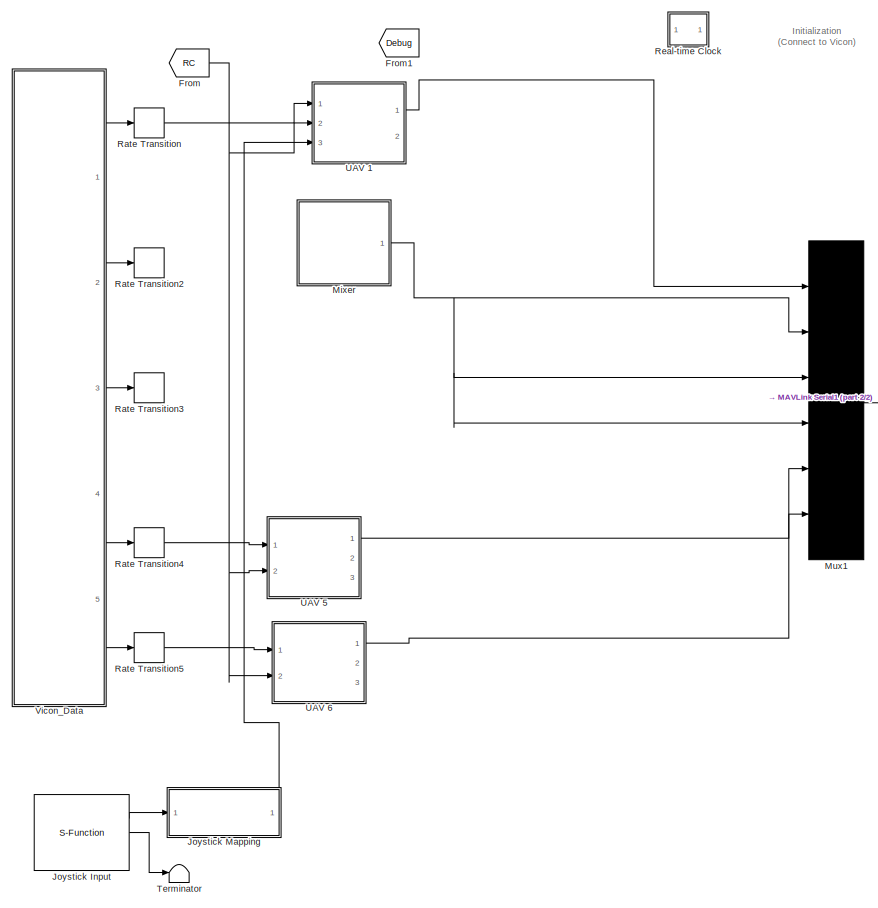
[diagram: root canvas - part 1/2, left side, full height]
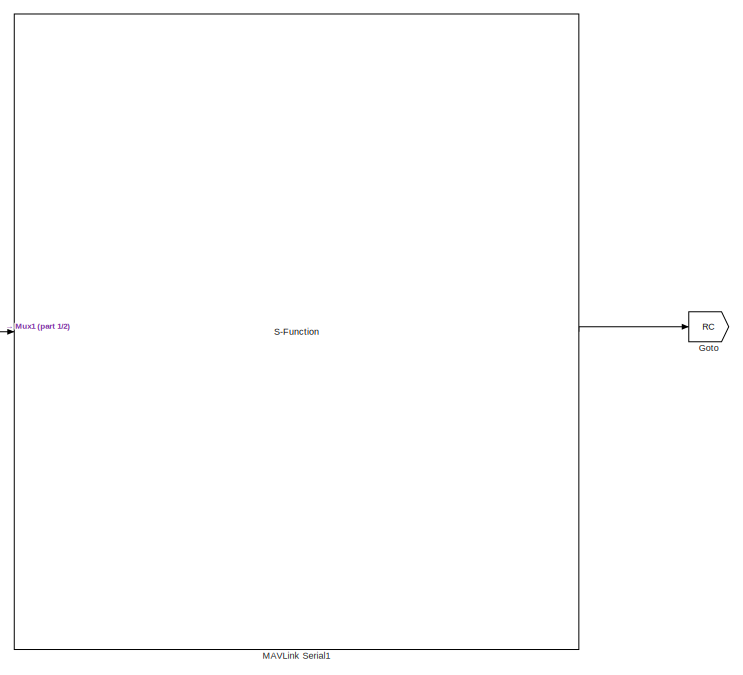
[diagram: root canvas - part 2/2, middle right region]
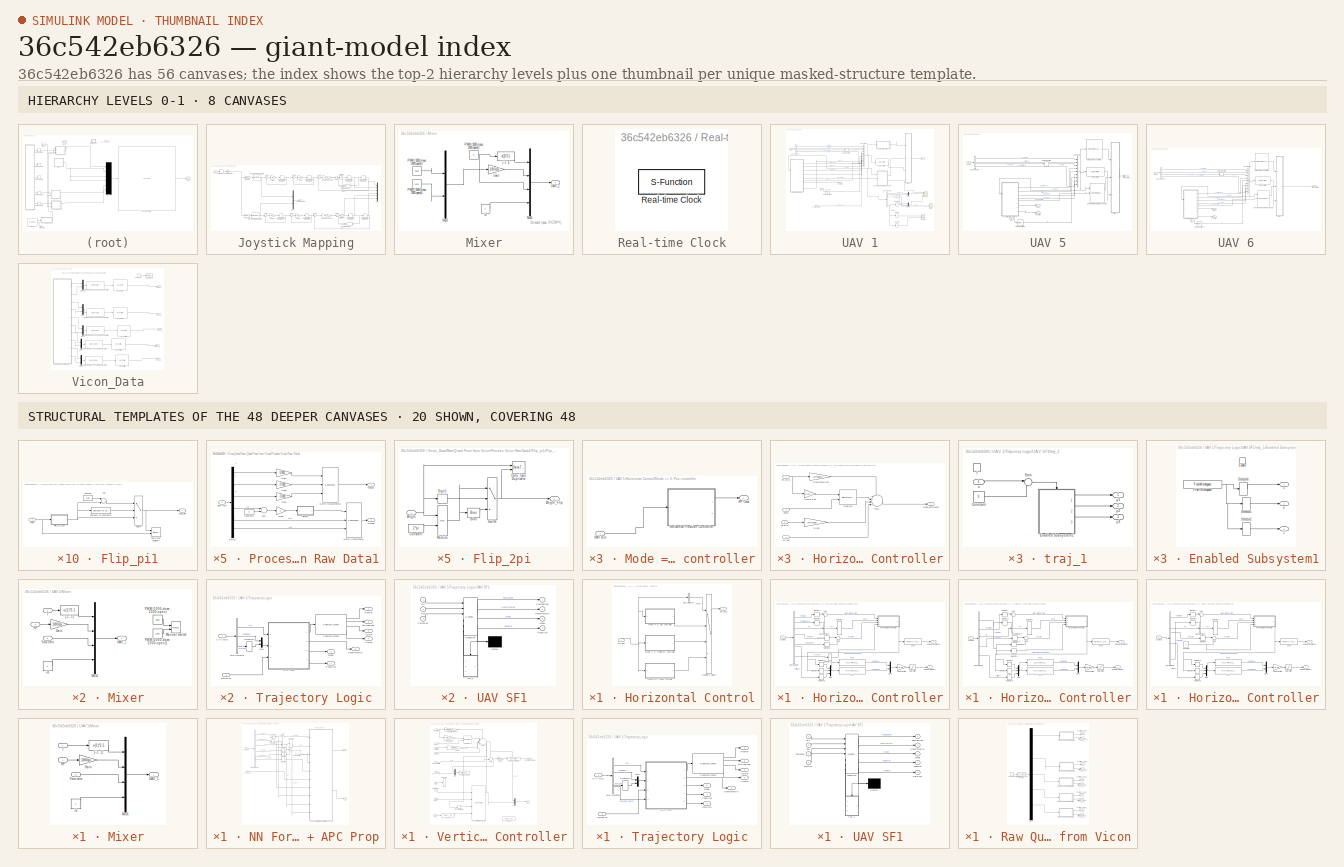
[diagram: thumbnail index - top-2 hierarchy levels (8 canvases) + 20 structural-template representatives of the remaining 48 canvases]
MODEL slx_36c542eb6326
KIND model
CONFIG InitFcn = sample_time=0.005;%0.004;%0.0025;%0.02;\nsample_time_Vicon = 0.005;\nDeltaT = 0.02;\ng = 9.81;\nH0 = g%0.3165;\nKl = 1;\n\nQ6_mass = 0.7;\n\nQ6_Omega_r = 1.6; %for horizon ref\nQ6_Zeta_r = 0.7; %for horizon ref\nQ6_Omega_r_h = 2.2;%for vertical ref\nQ6_Zeta_r_h = 0.5; %for vertical ref\n\n\nQ6_Omega = 1.8; %for horizon control\nQ6_Zeta = 0.5; %for horizon control\nQ6_Omega_h= 2.5; %for vertical control\nQ6_Zeta_h =...<+558ch>
BLOCK [From] From
  GotoTag = RC
  TagVisibility = global
BLOCK [From] From1
  GotoTag = Debug
BLOCK [Goto] Goto
  GotoTag = RC
  TagVisibility = global
BLOCK [S-Function] Joystick Input
  CopyFcn = if ~vrmfunc('islibrary',gcbh) set_param(gcbh,'adjustports','on'); end
  EnableBusSupport = off
  FunctionName = joyinput
  Parameters = joyid, adjustports, forcefeed
  Ports = [0, 3]
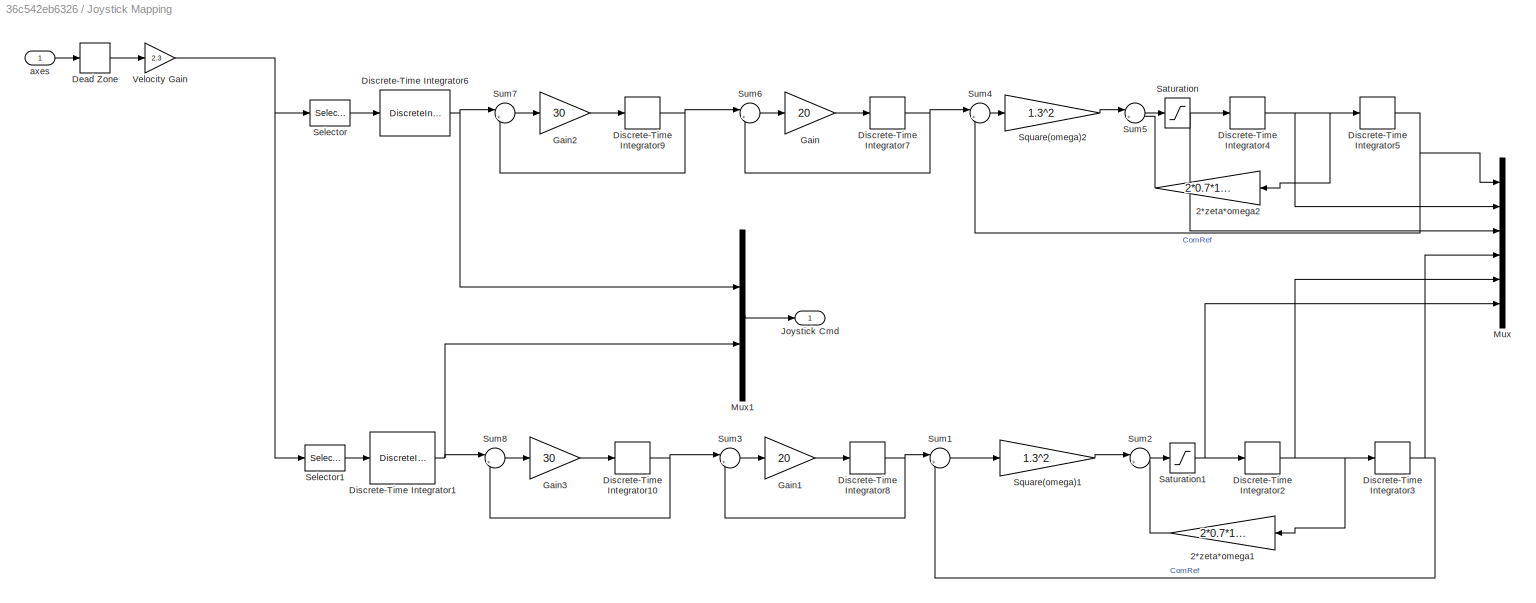
BLOCK [SubSystem] Joystick Mapping
  FunctionWithSeparateData = off
  MaskHideContents = off
  MinAlgLoopOccurrences = off
  Opaque = off
  Ports = [1, 1]
  PropExecContextOutsideSubsystem = off
  RTWSystemCode = Auto
  RequestExecContextInheritance = off
BLOCK [Gain] Joystick Mapping/2*zeta*omega1
  Gain = 2*0.7*1.3
  OutDataTypeStr = Inherit: Inherit via internal rule
  ParamDataTypeStr = Inherit: Inherit via internal rule
  SaturateOnIntegerOverflow = off
BLOCK [Gain] Joystick Mapping/2*zeta*omega2
  Gain = 2*0.7*1.3
  OutDataTypeStr = Inherit: Inherit via internal rule
  ParamDataTypeStr = Inherit: Inherit via internal rule
  SaturateOnIntegerOverflow = off
BLOCK [DeadZone] Joystick Mapping/Dead Zone
  LowerValue = -0.05
  UpperValue = 0.05
BLOCK [DiscreteIntegrator] Joystick Mapping/Discrete-Time Integrator1
  ICPrevOutput = DiscIntNeverNeededParam
  ICPrevScaledInput = DiscIntNeverNeededParam
  LimitOutput = on
  LowerSaturationLimit = -2.5
  Ports = [1, 1]
  SampleTime = 0.02
  UpperSaturationLimit = 2.5
  gainval = 1
BLOCK [DiscreteIntegrator] Joystick Mapping/Discrete-Time Integrator10
  ICPrevOutput = DiscIntNeverNeededParam
  ICPrevScaledInput = DiscIntNeverNeededParam
  Ports = [1, 1]
  SampleTime = 0.02
BLOCK [DiscreteIntegrator] Joystick Mapping/Discrete-Time Integrator2
  ICPrevOutput = DiscIntNeverNeededParam
  ICPrevScaledInput = DiscIntNeverNeededParam
  Ports = [1, 1]
  SampleTime = 0.02
BLOCK [DiscreteIntegrator] Joystick Mapping/Discrete-Time Integrator3
  ICPrevOutput = DiscIntNeverNeededParam
  ICPrevScaledInput = DiscIntNeverNeededParam
  LimitOutput = on
  LowerSaturationLimit = -3
  Ports = [1, 1]
  SampleTime = 0.02
  UpperSaturationLimit = 3
BLOCK [DiscreteIntegrator] Joystick Mapping/Discrete-Time Integrator4
  ICPrevOutput = DiscIntNeverNeededParam
  ICPrevScaledInput = DiscIntNeverNeededParam
  Ports = [1, 1]
  SampleTime = 0.02
BLOCK [DiscreteIntegrator] Joystick Mapping/Discrete-Time Integrator5
  ICPrevOutput = DiscIntNeverNeededParam
  ICPrevScaledInput = DiscIntNeverNeededParam
  LimitOutput = on
  LowerSaturationLimit = -2
  Ports = [1, 1]
  SampleTime = 0.02
  UpperSaturationLimit = 2
BLOCK [DiscreteIntegrator] Joystick Mapping/Discrete-Time Integrator6
  ICPrevOutput = DiscIntNeverNeededParam
  ICPrevScaledInput = DiscIntNeverNeededParam
  LimitOutput = on
  LowerSaturationLimit = -2
  Ports = [1, 1]
  SampleTime = 0.02
  UpperSaturationLimit = 2
  gainval = 1
BLOCK [DiscreteIntegrator] Joystick Mapping/Discrete-Time Integrator7
  ICPrevOutput = DiscIntNeverNeededParam
  ICPrevScaledInput = DiscIntNeverNeededParam
  Ports = [1, 1]
  SampleTime = 0.02
BLOCK [DiscreteIntegrator] Joystick Mapping/Discrete-Time Integrator8
  ICPrevOutput = DiscIntNeverNeededParam
  ICPrevScaledInput = DiscIntNeverNeededParam
  Ports = [1, 1]
  SampleTime = 0.02
BLOCK [DiscreteIntegrator] Joystick Mapping/Discrete-Time Integrator9
  ICPrevOutput = DiscIntNeverNeededParam
  ICPrevScaledInput = DiscIntNeverNeededParam
  Ports = [1, 1]
  SampleTime = 0.02
BLOCK [Gain] Joystick Mapping/Gain
  Gain = 20
  OutDataTypeStr = Inherit: Inherit via internal rule
  ParamDataTypeStr = Inherit: Inherit via internal rule
  SaturateOnIntegerOverflow = off
BLOCK [Gain] Joystick Mapping/Gain1
  Gain = 20
  OutDataTypeStr = Inherit: Inherit via internal rule
  ParamDataTypeStr = Inherit: Inherit via internal rule
  SaturateOnIntegerOverflow = off
BLOCK [Gain] Joystick Mapping/Gain2
  Gain = 30
  OutDataTypeStr = Inherit: Inherit via internal rule
  ParamDataTypeStr = Inherit: Inherit via internal rule
  SaturateOnIntegerOverflow = off
BLOCK [Gain] Joystick Mapping/Gain3
  Gain = 30
  OutDataTypeStr = Inherit: Inherit via internal rule
  ParamDataTypeStr = Inherit: Inherit via internal rule
  SaturateOnIntegerOverflow = off
BLOCK [Outport] Joystick Mapping/Joystick Cmd
  IconDisplay = Port number
BLOCK [Mux] Joystick Mapping/Mux
  DisplayOption = bar
  Inputs = 6
  Ports = [6, 1]
BLOCK [Mux] Joystick Mapping/Mux1
  DisplayOption = bar
  Inputs = 2
  Ports = [2, 1]
BLOCK [Saturate] Joystick Mapping/Saturation
  InputPortMap = u0
  LowerLimit = -2
  Ports = [1, 1]
  UpperLimit = 2
BLOCK [Saturate] Joystick Mapping/Saturation1
  InputPortMap = u0
  LowerLimit = -2
  Ports = [1, 1]
  UpperLimit = 2
BLOCK [Selector] Joystick Mapping/Selector
  IndexOptions = Index vector (dialog)
  Indices = [1]
  OutputSizes = 1
  Ports = [1, 1]
BLOCK [Selector] Joystick Mapping/Selector1
  IndexOptions = Index vector (dialog)
  Indices = [2]
  OutputSizes = 1
  Ports = [1, 1]
BLOCK [Gain] Joystick Mapping/Square(omega)1
  Gain = 1.3^2
  OutDataTypeStr = Inherit: Inherit via internal rule
  ParamDataTypeStr = Inherit: Inherit via internal rule
  SaturateOnIntegerOverflow = off
BLOCK [Gain] Joystick Mapping/Square(omega)2
  Gain = 1.3^2
  OutDataTypeStr = Inherit: Inherit via internal rule
  ParamDataTypeStr = Inherit: Inherit via internal rule
  SaturateOnIntegerOverflow = off
BLOCK [Sum] Joystick Mapping/Sum1
  IconShape = round
  InputSameDT = off
  Inputs = |+-
  OutDataTypeStr = Inherit: Inherit via internal rule
  Ports = [2, 1]
  SaturateOnIntegerOverflow = off
BLOCK [Sum] Joystick Mapping/Sum2
  IconShape = round
  InputSameDT = off
  Inputs = |+-
  OutDataTypeStr = Inherit: Inherit via internal rule
  Ports = [2, 1]
  SaturateOnIntegerOverflow = off
BLOCK [Sum] Joystick Mapping/Sum3
  IconShape = round
  InputSameDT = off
  Inputs = |+-
  OutDataTypeStr = Inherit: Inherit via internal rule
  Ports = [2, 1]
  SaturateOnIntegerOverflow = off
BLOCK [Sum] Joystick Mapping/Sum4
  IconShape = round
  InputSameDT = off
  Inputs = |+-
  OutDataTypeStr = Inherit: Inherit via internal rule
  Ports = [2, 1]
  SaturateOnIntegerOverflow = off
BLOCK [Sum] Joystick Mapping/Sum5
  IconShape = round
  InputSameDT = off
  Inputs = |+-
  OutDataTypeStr = Inherit: Inherit via internal rule
  Ports = [2, 1]
  SaturateOnIntegerOverflow = off
BLOCK [Sum] Joystick Mapping/Sum6
  IconShape = round
  InputSameDT = off
  Inputs = |+-
  OutDataTypeStr = Inherit: Inherit via internal rule
  Ports = [2, 1]
  SaturateOnIntegerOverflow = off
BLOCK [Sum] Joystick Mapping/Sum7
  IconShape = round
  InputSameDT = off
  Inputs = |+-
  OutDataTypeStr = Inherit: Inherit via internal rule
  Ports = [2, 1]
  SaturateOnIntegerOverflow = off
BLOCK [Sum] Joystick Mapping/Sum8
  IconShape = round
  InputSameDT = off
  Inputs = |+-
  OutDataTypeStr = Inherit: Inherit via internal rule
  Ports = [2, 1]
  SaturateOnIntegerOverflow = off
BLOCK [Gain] Joystick Mapping/Velocity Gain
  Gain = 2.3
  OutDataTypeStr = Inherit: Inherit via internal rule
  ParamDataTypeStr = Inherit: Inherit via internal rule
  SaturateOnIntegerOverflow = off
BLOCK [Inport] Joystick Mapping/axes
  IconDisplay = Port number
BLOCK [S-Function] MAVLink Serial1
  EnableBusSupport = off
  FunctionName = MAVLink_Interface_6Quads
  Parameters = COM_Port,Baud_Rate,MSG_INPUT,MSG_OUTPUT
  Ports = [1, 1]
BLOCK [SubSystem] Mixer
  FunctionWithSeparateData = off
  MaskHideContents = off
  MinAlgLoopOccurrences = off
  Opaque = off
  Ports = [0, 1]
  PropExecContextOutsideSubsystem = off
  RTWSystemCode = Auto
  RequestExecContextInheritance = off
BLOCK [Gain] Mixer/Gain
  Gain = 180/pi
  OutDataTypeStr = Inherit: Inherit via internal rule
  ParamDataTypeStr = Inherit: Inherit via internal rule
  SaturateOnIntegerOverflow = off
BLOCK [Mux] Mixer/Mux1
  DisplayOption = bar
  Ports = [4, 1]
BLOCK [Mux] Mixer/Mux2
  DisplayOption = bar
  Inputs = 2
  Ports = [2, 1]
BLOCK [Constant] Mixer/PWM (1000-close; 2000-open)2
  SampleTime = 0.02
  Value = 0
BLOCK [Constant] Mixer/PWM (1000-close; 2000-open)3
  SampleTime = 0.02
  Value = 1600
BLOCK [Constant] Mixer/PWM (1000-close; 2000-open)4
  SampleTime = 0.02
  Value = 1200
BLOCK [Outport] Mixer/UAV_2
  IconDisplay = Port number
BLOCK [Fcn] Mixer/[-1, 1]
  Expr = u(1)*2-1
BLOCK [Constant] Mixer/id
  SampleTime = 0.02
  Value = 2
BLOCK [Mux] Mux1
  DisplayOption = signals
  Inputs = 6
  Ports = [6, 1]
BLOCK [RateTransition] Rate Transition
  OutPortSampleTime = 0.02
BLOCK [RateTransition] Rate Transition2
  OutPortSampleTime = 0.02
BLOCK [RateTransition] Rate Transition3
  OutPortSampleTime = 0.02
BLOCK [RateTransition] Rate Transition4
  OutPortSampleTime = 0.02
BLOCK [RateTransition] Rate Transition5
  OutPortSampleTime = 0.02
BLOCK [SubSystem] Real-time Clock
  FunctionWithSeparateData = off
  MaskHideContents = off
  MinAlgLoopOccurrences = off
  Opaque = off
  Ports = []
  PropExecContextOutsideSubsystem = off
  RTWSystemCode = Auto
  RequestExecContextInheritance = off
  ShowPortLabels = none
BLOCK [S-Function] Real-time Clock/Real-time Clock
  EnableBusSupport = off
  FunctionName = rtclock
  Parameters = sample_time, tolerance
  Ports = []
BLOCK [Terminator] Terminator
BLOCK [SubSystem] UAV 1
  FunctionWithSeparateData = off
  MaskHideContents = off
  MinAlgLoopOccurrences = off
  Opaque = off
  Ports = [3, 2]
  PropExecContextOutsideSubsystem = off
  RTWSystemCode = Auto
  RequestExecContextInheritance = off
BLOCK [BusCreator] UAV 1/Bus Creator
  DisplayOption = bar
  Inputs = 12
  Ports = [12, 1]
BLOCK [BusSelector] UAV 1/Bus Selector
  OutputSignals = Position,Attitude,Velocity,Acceleration
  Ports = [1, 4]
BLOCK [BusSelector] UAV 1/Bus Selector2
  OutputSignals = Position,Attitude,velocity,position des,attitude des,velocity des,rc,Acc des,TrajCmd
  Ports = [1, 9]
BLOCK [SubSystem] UAV 1/Horizontal Control
  FunctionWithSeparateData = off
  MaskHideContents = off
  MinAlgLoopOccurrences = off
  Opaque = off
  Ports = [1, 1]
  PropExecContextOutsideSubsystem = off
  RTWSystemCode = Auto
  RequestExecContextInheritance = off
BLOCK [BusSelector] UAV 1/Horizontal Control/Bus Selector
  OutputSignals = Mode
  Ports = [1, 1]
BLOCK [SubSystem] UAV 1/Horizontal Control/Mode == 0; Pos controller
  FunctionWithSeparateData = off
  MaskHideContents = off
  MinAlgLoopOccurrences = off
  Opaque = off
  Ports = [1, 1]
  PropExecContextOutsideSubsystem = off
  RTWSystemCode = Auto
  RequestExecContextInheritance = off
BLOCK [SubSystem] UAV 1/Horizontal Control/Mode == 0; Pos controller/Horizontal Position Controller
  FunctionWithSeparateData = off
  MaskHideContents = off
  MinAlgLoopOccurrences = off
  Opaque = off
  Ports = [1, 2]
  PropExecContextOutsideSubsystem = off
  RTWSystemCode = Auto
  RequestExecContextInheritance = off
BLOCK [BusSelector] UAV 1/Horizontal Control/Mode == 0; Pos controller/Horizontal Position Controller/Bus Selector
  OutputSignals = Position,position des,rc,velocity,velocity des,Attitude,Acceleration,Acc des
  Ports = [1, 8]
BLOCK [BusSelector] UAV 1/Horizontal Control/Mode == 0; Pos controller/Horizontal Position Controller/Bus Selector3
  OutputSignals = rc
  Ports = [1, 1]
BLOCK [Outport] UAV 1/Horizontal Control/Mode == 0; Pos controller/Horizontal Position Controller/Des Horizontal Acc
  IconDisplay = Port number
  Port = 2
BLOCK [Fcn] UAV 1/Horizontal Control/Mode == 0; Pos controller/Horizontal Position Controller/Fcn
  Expr = -u(1)*cos(u(3)) - u(2)*sin(u(3))
BLOCK [Fcn] UAV 1/Horizontal Control/Mode == 0; Pos controller/Horizontal Position Controller/Fcn1
  Expr = -u(1)*sin(u(3)) + u(2)*cos(u(3))
BLOCK [Fcn] UAV 1/Horizontal Control/Mode == 0; Pos controller/Horizontal Position Controller/Fcn2
  Expr = sqrt(u(1)^2+u(1)^2)
BLOCK [SubSystem] UAV 1/Horizontal Control/Mode == 0; Pos controller/Horizontal Position Controller/Horizontal Pos Controller
  FunctionWithSeparateData = off
  MaskHideContents = off
  MinAlgLoopOccurrences = off
  Opaque = off
  Ports = [4, 1]
  PropExecContextOutsideSubsystem = off
  RTWSystemCode = Auto
  RequestExecContextInheritance = off
BLOCK [Inport] UAV 1/Horizontal Control/Mode == 0; Pos controller/Horizontal Position Controller/Horizontal Pos Controller/Acc des
  IconDisplay = Port number
  Port = 4
BLOCK [Gain] UAV 1/Horizontal Control/Mode == 0; Pos controller/Horizontal Position Controller/Horizontal Pos Controller/D Gain
  Gain = 2*Omega*Zeta
  OutDataTypeStr = double
  ParamDataTypeStr = Inherit: Inherit via internal rule
  SaturateOnIntegerOverflow = off
BLOCK [Outport] UAV 1/Horizontal Control/Mode == 0; Pos controller/Horizontal Position Controller/Horizontal Pos Controller/Global Commands
  IconDisplay = Port number
BLOCK [Gain] UAV 1/Horizontal Control/Mode == 0; Pos controller/Horizontal Position Controller/Horizontal Pos Controller/Integral Gain
  DisableCoverage = on
  Gain = PID_i
  OutDataTypeStr = double
  ParamDataTypeStr = double
  SaturateOnIntegerOverflow = off
BLOCK [DiscreteIntegrator] UAV 1/Horizontal Control/Mode == 0; Pos controller/Horizontal Position Controller/Horizontal Pos Controller/Integrator
  DisableCoverage = on
  ExternalReset = rising
  ICPrevOutput = DiscIntNeverNeededParam
  ICPrevScaledInput = DiscIntNeverNeededParam
  InitialConditionMode = State only (most efficient)
  IntegratorMethod = Integration: Trapezoidal
  LowerSaturationLimit = -10*pi/180
  OutDataTypeStr = double
  Ports = [2, 1]
  SampleTime = -1
  UpperSaturationLimit = 10*pi/180
BLOCK [Inport] UAV 1/Horizontal Control/Mode == 0; Pos controller/Horizontal Position Controller/Horizontal Pos Controller/Pos Error
  IconDisplay = Port number
BLOCK [Gain] UAV 1/Horizontal Control/Mode == 0; Pos controller/Horizontal Position Controller/Horizontal Pos Controller/Proportional Gain
  DisableCoverage = on
  Gain = Omega^2
  OutDataTypeStr = double
  ParamDataTypeStr = double
  SaturateOnIntegerOverflow = off
BLOCK [Inport] UAV 1/Horizontal Control/Mode == 0; Pos controller/Horizontal Position Controller/Horizontal Pos Controller/Reset
  IconDisplay = Port number
  Port = 2
BLOCK [Sum] UAV 1/Horizontal Control/Mode == 0; Pos controller/Horizontal Position Controller/Horizontal Pos Controller/Sum1
  AccumDataTypeStr = double
  DisableCoverage = on
  IconShape = round
  InputSameDT = off
  Inputs = ++++|
  OutDataTypeStr = double
  Ports = [4, 1]
  SampleTime = 0.02
  SaturateOnIntegerOverflow = off
BLOCK [Inport] UAV 1/Horizontal Control/Mode == 0; Pos controller/Horizontal Position Controller/Horizontal Pos Controller/Vel Error
  IconDisplay = Port number
  Port = 3
BLOCK [Gain] UAV 1/Horizontal Control/Mode == 0; Pos controller/Horizontal Position Controller/Linearization
  Gain = 1/9.81
  OutDataTypeStr = double
  ParamDataTypeStr = Inherit: Inherit via internal rule
  SaturateOnIntegerOverflow = off
BLOCK [Mux] UAV 1/Horizontal Control/Mode == 0; Pos controller/Horizontal Position Controller/Mux
  DisplayOption = bar
  Inputs = 3
  Ports = [3, 1]
BLOCK [Mux] UAV 1/Horizontal Control/Mode == 0; Pos controller/Horizontal Position Controller/Mux1
  DisplayOption = bar
  Inputs = 2
  Ports = [2, 1]
BLOCK [Outport] UAV 1/Horizontal Control/Mode == 0; Pos controller/Horizontal Position Controller/RP Cmd (Radian)
  IconDisplay = Port number
BLOCK [Saturate] UAV 1/Horizontal Control/Mode == 0; Pos controller/Horizontal Position Controller/Saturation
  InputPortMap = u0
  LowerLimit = -Max_RP
  Ports = [1, 1]
  UpperLimit = Max_RP
BLOCK [Selector] UAV 1/Horizontal Control/Mode == 0; Pos controller/Horizontal Position Controller/Selector1
  IndexOptions = Index vector (dialog)
  Indices = [1 2]
  InputPortWidth = 3
  OutputSizes = 1
  Ports = [1, 1]
BLOCK [Selector] UAV 1/Horizontal Control/Mode == 0; Pos controller/Horizontal Position Controller/Selector10
  IndexOptions = Index vector (dialog)
  Indices = [1 2]
  InputPortWidth = 4
  OutputSizes = 1
  Ports = [1, 1]
BLOCK [Selector] UAV 1/Horizontal Control/Mode == 0; Pos controller/Horizontal Position Controller/Selector2
  IndexOptions = Index vector (dialog)
  Indices = [1 2]
  InputPortWidth = 3
  OutputSizes = 1
  Ports = [1, 1]
BLOCK [Selector] UAV 1/Horizontal Control/Mode == 0; Pos controller/Horizontal Position Controller/Selector3
  IndexOptions = Index vector (dialog)
  Indices = [1]
  InputPortWidth = 2
  OutputSizes = 1
  Ports = [1, 1]
BLOCK [Selector] UAV 1/Horizontal Control/Mode == 0; Pos controller/Horizontal Position Controller/Selector4
  IndexOptions = Index vector (dialog)
  Indices = [2]
  InputPortWidth = 2
  OutputSizes = 1
  Ports = [1, 1]
BLOCK [Selector] UAV 1/Horizontal Control/Mode == 0; Pos controller/Horizontal Position Controller/Selector5
  IndexOptions = Index vector (dialog)
  Indices = [3]
  InputPortWidth = 3
  OutputSizes = 1
  Ports = [1, 1]
BLOCK [Selector] UAV 1/Horizontal Control/Mode == 0; Pos controller/Horizontal Position Controller/Selector6
  IndexOptions = Index vector (dialog)
  Indices = [1 2]
  InputPortWidth = 3
  OutputSizes = 1
  Ports = [1, 1]
BLOCK [Selector] UAV 1/Horizontal Control/Mode == 0; Pos controller/Horizontal Position Controller/Selector7
  IndexOptions = Index vector (dialog)
  Indices = [5]
  InputPortWidth = 8
  OutputSizes = 1
  Ports = [1, 1]
BLOCK [Selector] UAV 1/Horizontal Control/Mode == 0; Pos controller/Horizontal Position Controller/Selector8
  IndexOptions = Index vector (dialog)
  Indices = [1 2]
  InputPortWidth = 3
  OutputSizes = 1
  Ports = [1, 1]
BLOCK [Sum] UAV 1/Horizontal Control/Mode == 0; Pos controller/Horizontal Position Controller/Sum
  IconShape = round
  InputSameDT = off
  Inputs = |-+
  OutDataTypeStr = Inherit: Inherit via internal rule
  Ports = [2, 1]
  SaturateOnIntegerOverflow = off
BLOCK [Sum] UAV 1/Horizontal Control/Mode == 0; Pos controller/Horizontal Position Controller/Sum1
  IconShape = round
  InputSameDT = off
  Inputs = |-+
  OutDataTypeStr = Inherit: Inherit via internal rule
  Ports = [2, 1]
  SaturateOnIntegerOverflow = off
BLOCK [Inport] UAV 1/Horizontal Control/Mode == 0; Pos controller/Horizontal Position Controller/UAV Bus
  IconDisplay = Port number
BLOCK [Outport] UAV 1/Horizontal Control/Mode == 0; Pos controller/RP Cmd
  IconDisplay = Port number
BLOCK [Inport] UAV 1/Horizontal Control/Mode == 0; Pos controller/UAV Bus
  IconDisplay = Port number
BLOCK [SubSystem] UAV 1/Horizontal Control/Mode == 1; Trajectory Controller
  FunctionWithSeparateData = off
  MaskHideContents = off
  MinAlgLoopOccurrences = off
  Opaque = off
  Ports = [1, 1]
  PropExecContextOutsideSubsystem = off
  RTWSystemCode = Auto
  RequestExecContextInheritance = off
BLOCK [SubSystem] UAV 1/Horizontal Control/Mode == 1; Trajectory Controller/Horizontal Position Controller
  FunctionWithSeparateData = off
  MaskHideContents = off
  MinAlgLoopOccurrences = off
  Opaque = off
  Ports = [1, 2]
  PropExecContextOutsideSubsystem = off
  RTWSystemCode = Auto
  RequestExecContextInheritance = off
BLOCK [BusSelector] UAV 1/Horizontal Control/Mode == 1; Trajectory Controller/Horizontal Position Controller/Bus Selector
  OutputSignals = TrajCmd,Position,rc,velocity,Attitude
  Ports = [1, 5]
BLOCK [BusSelector] UAV 1/Horizontal Control/Mode == 1; Trajectory Controller/Horizontal Position Controller/Bus Selector3
  OutputSignals = rc
  Ports = [1, 1]
BLOCK [Outport] UAV 1/Horizontal Control/Mode == 1; Trajectory Controller/Horizontal Position Controller/Des Horizontal Acc
  IconDisplay = Port number
  Port = 2
BLOCK [Fcn] UAV 1/Horizontal Control/Mode == 1; Trajectory Controller/Horizontal Position Controller/Fcn
  Expr = -u(1)*cos(u(3)) - u(2)*sin(u(3))
BLOCK [Fcn] UAV 1/Horizontal Control/Mode == 1; Trajectory Controller/Horizontal Position Controller/Fcn1
  Expr = -u(1)*sin(u(3)) + u(2)*cos(u(3))
BLOCK [Fcn] UAV 1/Horizontal Control/Mode == 1; Trajectory Controller/Horizontal Position Controller/Fcn2
  Expr = sqrt(u(1)^2+u(1)^2)
BLOCK [SubSystem] UAV 1/Horizontal Control/Mode == 1; Trajectory Controller/Horizontal Position Controller/Horizontal Pos Controller
  FunctionWithSeparateData = off
  MaskHideContents = off
  MinAlgLoopOccurrences = off
  Opaque = off
  Ports = [4, 1]
  PropExecContextOutsideSubsystem = off
  RTWSystemCode = Auto
  RequestExecContextInheritance = off
BLOCK [Inport] UAV 1/Horizontal Control/Mode == 1; Trajectory Controller/Horizontal Position Controller/Horizontal Pos Controller/Acc des
  IconDisplay = Port number
  Port = 4
BLOCK [Gain] UAV 1/Horizontal Control/Mode == 1; Trajectory Controller/Horizontal Position Controller/Horizontal Pos Controller/D Gain
  Gain = 2*Omega*Zeta
  OutDataTypeStr = double
  ParamDataTypeStr = Inherit: Inherit via internal rule
  SaturateOnIntegerOverflow = off
BLOCK [Outport] UAV 1/Horizontal Control/Mode == 1; Trajectory Controller/Horizontal Position Controller/Horizontal Pos Controller/Global Commands
  IconDisplay = Port number
BLOCK [Gain] UAV 1/Horizontal Control/Mode == 1; Trajectory Controller/Horizontal Position Controller/Horizontal Pos Controller/Integral Gain
  DisableCoverage = on
  Gain = PID_i
  OutDataTypeStr = double
  ParamDataTypeStr = double
  SaturateOnIntegerOverflow = off
BLOCK [DiscreteIntegrator] UAV 1/Horizontal Control/Mode == 1; Trajectory Controller/Horizontal Position Controller/Horizontal Pos Controller/Integrator
  DisableCoverage = on
  ExternalReset = rising
  ICPrevOutput = DiscIntNeverNeededParam
  ICPrevScaledInput = DiscIntNeverNeededParam
  InitialConditionMode = State only (most efficient)
  IntegratorMethod = Integration: Trapezoidal
  LowerSaturationLimit = -10*pi/180
  OutDataTypeStr = double
  Ports = [2, 1]
  SampleTime = -1
  UpperSaturationLimit = 10*pi/180
BLOCK [Inport] UAV 1/Horizontal Control/Mode == 1; Trajectory Controller/Horizontal Position Controller/Horizontal Pos Controller/Pos Error
  IconDisplay = Port number
BLOCK [Gain] UAV 1/Horizontal Control/Mode == 1; Trajectory Controller/Horizontal Position Controller/Horizontal Pos Controller/Proportional Gain
  DisableCoverage = on
  Gain = Omega^2
  OutDataTypeStr = double
  ParamDataTypeStr = double
  SaturateOnIntegerOverflow = off
BLOCK [Inport] UAV 1/Horizontal Control/Mode == 1; Trajectory Controller/Horizontal Position Controller/Horizontal Pos Controller/Reset
  IconDisplay = Port number
  Port = 2
BLOCK [Sum] UAV 1/Horizontal Control/Mode == 1; Trajectory Controller/Horizontal Position Controller/Horizontal Pos Controller/Sum1
  AccumDataTypeStr = double
  DisableCoverage = on
  IconShape = round
  InputSameDT = off
  Inputs = ++++|
  OutDataTypeStr = double
  Ports = [4, 1]
  SampleTime = 0.02
  SaturateOnIntegerOverflow = off
BLOCK [Inport] UAV 1/Horizontal Control/Mode == 1; Trajectory Controller/Horizontal Position Controller/Horizontal Pos Controller/Vel Error
  IconDisplay = Port number
  Port = 3
BLOCK [Gain] UAV 1/Horizontal Control/Mode == 1; Trajectory Controller/Horizontal Position Controller/Linearization
  Gain = 1/9.81
  OutDataTypeStr = double
  ParamDataTypeStr = Inherit: Inherit via internal rule
  SaturateOnIntegerOverflow = off
BLOCK [Mux] UAV 1/Horizontal Control/Mode == 1; Trajectory Controller/Horizontal Position Controller/Mux
  DisplayOption = bar
  Inputs = 3
  Ports = [3, 1]
BLOCK [Mux] UAV 1/Horizontal Control/Mode == 1; Trajectory Controller/Horizontal Position Controller/Mux1
  DisplayOption = bar
  Inputs = 2
  Ports = [2, 1]
BLOCK [Outport] UAV 1/Horizontal Control/Mode == 1; Trajectory Controller/Horizontal Position Controller/RP Cmd (Radian)
  IconDisplay = Port number
BLOCK [Saturate] UAV 1/Horizontal Control/Mode == 1; Trajectory Controller/Horizontal Position Controller/Saturation
  InputPortMap = u0
  LowerLimit = -Max_RP
  Ports = [1, 1]
  UpperLimit = Max_RP
BLOCK [Selector] UAV 1/Horizontal Control/Mode == 1; Trajectory Controller/Horizontal Position Controller/Selector1
  IndexOptions = Index vector (dialog)
  Indices = [1 2]
  InputPortWidth = 3
  OutputSizes = 1
  Ports = [1, 1]
BLOCK [Selector] UAV 1/Horizontal Control/Mode == 1; Trajectory Controller/Horizontal Position Controller/Selector2
  IndexOptions = Index vector (dialog)
  Indices = [1 4]
  InputPortWidth = 10
  OutputSizes = 1
  Ports = [1, 1]
BLOCK [Selector] UAV 1/Horizontal Control/Mode == 1; Trajectory Controller/Horizontal Position Controller/Selector3
  IndexOptions = Index vector (dialog)
  Indices = [1]
  InputPortWidth = 2
  OutputSizes = 1
  Ports = [1, 1]
BLOCK [Selector] UAV 1/Horizontal Control/Mode == 1; Trajectory Controller/Horizontal Position Controller/Selector4
  IndexOptions = Index vector (dialog)
  Indices = [2]
  InputPortWidth = 2
  OutputSizes = 1
  Ports = [1, 1]
BLOCK [Selector] UAV 1/Horizontal Control/Mode == 1; Trajectory Controller/Horizontal Position Controller/Selector5
  IndexOptions = Index vector (dialog)
  Indices = [3]
  InputPortWidth = 3
  OutputSizes = 1
  Ports = [1, 1]
BLOCK [Selector] UAV 1/Horizontal Control/Mode == 1; Trajectory Controller/Horizontal Position Controller/Selector6
  IndexOptions = Index vector (dialog)
  Indices = [1 2]
  InputPortWidth = 3
  OutputSizes = 1
  Ports = [1, 1]
BLOCK [Selector] UAV 1/Horizontal Control/Mode == 1; Trajectory Controller/Horizontal Position Controller/Selector7
  IndexOptions = Index vector (dialog)
  Indices = [5]
  InputPortWidth = 8
  OutputSizes = 1
  Ports = [1, 1]
BLOCK [Selector] UAV 1/Horizontal Control/Mode == 1; Trajectory Controller/Horizontal Position Controller/Selector8
  IndexOptions = Index vector (dialog)
  Indices = [2 5]
  InputPortWidth = 10
  OutputSizes = 1
  Ports = [1, 1]
BLOCK [Selector] UAV 1/Horizontal Control/Mode == 1; Trajectory Controller/Horizontal Position Controller/Selector9
  IndexOptions = Index vector (dialog)
  Indices = [3 6]
  InputPortWidth = 10
  OutputSizes = 1
  Ports = [1, 1]
BLOCK [Sum] UAV 1/Horizontal Control/Mode == 1; Trajectory Controller/Horizontal Position Controller/Sum
  IconShape = round
  InputSameDT = off
  Inputs = |-+
  OutDataTypeStr = Inherit: Inherit via internal rule
  Ports = [2, 1]
  SaturateOnIntegerOverflow = off
BLOCK [Sum] UAV 1/Horizontal Control/Mode == 1; Trajectory Controller/Horizontal Position Controller/Sum1
  IconShape = round
  InputSameDT = off
  Inputs = |-+
  OutDataTypeStr = Inherit: Inherit via internal rule
  Ports = [2, 1]
  SaturateOnIntegerOverflow = off
BLOCK [Inport] UAV 1/Horizontal Control/Mode == 1; Trajectory Controller/Horizontal Position Controller/UAV Bus
  IconDisplay = Port number
BLOCK [Outport] UAV 1/Horizontal Control/Mode == 1; Trajectory Controller/RP Cmd
  IconDisplay = Port number
BLOCK [Inport] UAV 1/Horizontal Control/Mode == 1; Trajectory Controller/UAV Bus
  IconDisplay = Port number
BLOCK [SubSystem] UAV 1/Horizontal Control/Mode == 2; Hover Conroller
  FunctionWithSeparateData = off
  MaskHideContents = off
  MinAlgLoopOccurrences = off
  Opaque = off
  Ports = [1, 1]
  PropExecContextOutsideSubsystem = off
  RTWSystemCode = Auto
  RequestExecContextInheritance = off
BLOCK [SubSystem] UAV 1/Horizontal Control/Mode == 2; Hover Conroller/Horizontal Position Controller
  FunctionWithSeparateData = off
  MaskHideContents = off
  MinAlgLoopOccurrences = off
  Opaque = off
  Ports = [1, 2]
  PropExecContextOutsideSubsystem = off
  RTWSystemCode = Auto
  RequestExecContextInheritance = off
BLOCK [BusSelector] UAV 1/Horizontal Control/Mode == 2; Hover Conroller/Horizontal Position Controller/Bus Selector
  OutputSignals = Position,position des,rc,velocity,velocity des,Attitude,Acceleration,Acc des,TrajCmd
  Ports = [1, 9]
BLOCK [BusSelector] UAV 1/Horizontal Control/Mode == 2; Hover Conroller/Horizontal Position Controller/Bus Selector3
  OutputSignals = rc
  Ports = [1, 1]
BLOCK [Constant] UAV 1/Horizontal Control/Mode == 2; Hover Conroller/Horizontal Position Controller/Constant
  Value = 0
BLOCK [Outport] UAV 1/Horizontal Control/Mode == 2; Hover Conroller/Horizontal Position Controller/Des Horizontal Acc
  IconDisplay = Port number
  Port = 2
BLOCK [Fcn] UAV 1/Horizontal Control/Mode == 2; Hover Conroller/Horizontal Position Controller/Fcn
  Expr = -u(1)*cos(u(3)) - u(2)*sin(u(3))
BLOCK [Fcn] UAV 1/Horizontal Control/Mode == 2; Hover Conroller/Horizontal Position Controller/Fcn1
  Expr = -u(1)*sin(u(3)) + u(2)*cos(u(3))
BLOCK [Fcn] UAV 1/Horizontal Control/Mode == 2; Hover Conroller/Horizontal Position Controller/Fcn2
  Expr = sqrt(u(1)^2+u(1)^2)
BLOCK [SubSystem] UAV 1/Horizontal Control/Mode == 2; Hover Conroller/Horizontal Position Controller/Horizontal Pos Controller
  FunctionWithSeparateData = off
  MaskHideContents = off
  MinAlgLoopOccurrences = off
  Opaque = off
  Ports = [4, 1]
  PropExecContextOutsideSubsystem = off
  RTWSystemCode = Auto
  RequestExecContextInheritance = off
BLOCK [Inport] UAV 1/Horizontal Control/Mode == 2; Hover Conroller/Horizontal Position Controller/Horizontal Pos Controller/Acc des
  IconDisplay = Port number
  Port = 4
BLOCK [Gain] UAV 1/Horizontal Control/Mode == 2; Hover Conroller/Horizontal Position Controller/Horizontal Pos Controller/D Gain
  Gain = 2*Omega*Zeta
  OutDataTypeStr = double
  ParamDataTypeStr = Inherit: Inherit via internal rule
  SaturateOnIntegerOverflow = off
BLOCK [Outport] UAV 1/Horizontal Control/Mode == 2; Hover Conroller/Horizontal Position Controller/Horizontal Pos Controller/Global Commands
  IconDisplay = Port number
BLOCK [Gain] UAV 1/Horizontal Control/Mode == 2; Hover Conroller/Horizontal Position Controller/Horizontal Pos Controller/Integral Gain
  DisableCoverage = on
  Gain = PID_i
  OutDataTypeStr = double
  ParamDataTypeStr = double
  SaturateOnIntegerOverflow = off
BLOCK [DiscreteIntegrator] UAV 1/Horizontal Control/Mode == 2; Hover Conroller/Horizontal Position Controller/Horizontal Pos Controller/Integrator
  DisableCoverage = on
  ExternalReset = rising
  ICPrevOutput = DiscIntNeverNeededParam
  ICPrevScaledInput = DiscIntNeverNeededParam
  InitialConditionMode = State only (most efficient)
  IntegratorMethod = Integration: Trapezoidal
  LowerSaturationLimit = -10*pi/180
  OutDataTypeStr = double
  Ports = [2, 1]
  SampleTime = -1
  UpperSaturationLimit = 10*pi/180
BLOCK [Inport] UAV 1/Horizontal Control/Mode == 2; Hover Conroller/Horizontal Position Controller/Horizontal Pos Controller/Pos Error
  IconDisplay = Port number
BLOCK [Gain] UAV 1/Horizontal Control/Mode == 2; Hover Conroller/Horizontal Position Controller/Horizontal Pos Controller/Proportional Gain
  DisableCoverage = on
  Gain = Omega^2
  OutDataTypeStr = double
  ParamDataTypeStr = double
  SaturateOnIntegerOverflow = off
BLOCK [Inport] UAV 1/Horizontal Control/Mode == 2; Hover Conroller/Horizontal Position Controller/Horizontal Pos Controller/Reset
  IconDisplay = Port number
  Port = 2
BLOCK [Sum] UAV 1/Horizontal Control/Mode == 2; Hover Conroller/Horizontal Position Controller/Horizontal Pos Controller/Sum1
  AccumDataTypeStr = double
  DisableCoverage = on
  IconShape = round
  InputSameDT = off
  Inputs = ++++|
  OutDataTypeStr = double
  Ports = [4, 1]
  SampleTime = 0.02
  SaturateOnIntegerOverflow = off
BLOCK [Inport] UAV 1/Horizontal Control/Mode == 2; Hover Conroller/Horizontal Position Controller/Horizontal Pos Controller/Vel Error
  IconDisplay = Port number
  Port = 3
BLOCK [Gain] UAV 1/Horizontal Control/Mode == 2; Hover Conroller/Horizontal Position Controller/Linearization
  Gain = 1/9.81
  OutDataTypeStr = double
  ParamDataTypeStr = Inherit: Inherit via internal rule
  SaturateOnIntegerOverflow = off
BLOCK [Mux] UAV 1/Horizontal Control/Mode == 2; Hover Conroller/Horizontal Position Controller/Mux
  DisplayOption = bar
  Inputs = 3
  Ports = [3, 1]
BLOCK [Mux] UAV 1/Horizontal Control/Mode == 2; Hover Conroller/Horizontal Position Controller/Mux1
  DisplayOption = bar
  Inputs = 2
  Ports = [2, 1]
BLOCK [Outport] UAV 1/Horizontal Control/Mode == 2; Hover Conroller/Horizontal Position Controller/RP Cmd (Radian)
  IconDisplay = Port number
BLOCK [Saturate] UAV 1/Horizontal Control/Mode == 2; Hover Conroller/Horizontal Position Controller/Saturation
  InputPortMap = u0
  LowerLimit = -Max_RP
  Ports = [1, 1]
  UpperLimit = Max_RP
BLOCK [Selector] UAV 1/Horizontal Control/Mode == 2; Hover Conroller/Horizontal Position Controller/Selector1
  IndexOptions = Index vector (dialog)
  Indices = [1 2]
  InputPortWidth = 3
  OutputSizes = 1
  Ports = [1, 1]
BLOCK [Selector] UAV 1/Horizontal Control/Mode == 2; Hover Conroller/Horizontal Position Controller/Selector2
  IndexOptions = Index vector (dialog)
  Indices = [1 4]
  InputPortWidth = 10
  OutputSizes = 1
  Ports = [1, 1]
BLOCK [Selector] UAV 1/Horizontal Control/Mode == 2; Hover Conroller/Horizontal Position Controller/Selector3
  IndexOptions = Index vector (dialog)
  Indices = [1]
  InputPortWidth = 2
  OutputSizes = 1
  Ports = [1, 1]
BLOCK [Selector] UAV 1/Horizontal Control/Mode == 2; Hover Conroller/Horizontal Position Controller/Selector4
  IndexOptions = Index vector (dialog)
  Indices = [2]
  InputPortWidth = 2
  OutputSizes = 1
  Ports = [1, 1]
BLOCK [Selector] UAV 1/Horizontal Control/Mode == 2; Hover Conroller/Horizontal Position Controller/Selector5
  IndexOptions = Index vector (dialog)
  Indices = [3]
  InputPortWidth = 3
  OutputSizes = 1
  Ports = [1, 1]
BLOCK [Selector] UAV 1/Horizontal Control/Mode == 2; Hover Conroller/Horizontal Position Controller/Selector6
  IndexOptions = Index vector (dialog)
  Indices = [1 2]
  InputPortWidth = 3
  OutputSizes = 1
  Ports = [1, 1]
BLOCK [Selector] UAV 1/Horizontal Control/Mode == 2; Hover Conroller/Horizontal Position Controller/Selector7
  IndexOptions = Index vector (dialog)
  Indices = [5]
  InputPortWidth = 8
  OutputSizes = 1
  Ports = [1, 1]
BLOCK [Sum] UAV 1/Horizontal Control/Mode == 2; Hover Conroller/Horizontal Position Controller/Sum
  IconShape = round
  InputSameDT = off
  Inputs = |-+
  OutDataTypeStr = Inherit: Inherit via internal rule
  Ports = [2, 1]
  SaturateOnIntegerOverflow = off
BLOCK [Sum] UAV 1/Horizontal Control/Mode == 2; Hover Conroller/Horizontal Position Controller/Sum1
  IconShape = round
  InputSameDT = off
  Inputs = |-+
  OutDataTypeStr = Inherit: Inherit via internal rule
  Ports = [2, 1]
  SaturateOnIntegerOverflow = off
BLOCK [Inport] UAV 1/Horizontal Control/Mode == 2; Hover Conroller/Horizontal Position Controller/UAV Bus
  IconDisplay = Port number
BLOCK [Outport] UAV 1/Horizontal Control/Mode == 2; Hover Conroller/RP Cmd
  IconDisplay = Port number
BLOCK [Inport] UAV 1/Horizontal Control/Mode == 2; Hover Conroller/UAV Bus
  IconDisplay = Port number
BLOCK [MultiPortSwitch] UAV 1/Horizontal Control/Multiport Switch
  DataPortOrder = Zero-based contiguous
  InputSameDT = off
  Ports = [4, 1]
  SaturateOnIntegerOverflow = off
  zeroidx = on
BLOCK [Outport] UAV 1/Horizontal Control/RP Cmd
  IconDisplay = Port number
BLOCK [Inport] UAV 1/Horizontal Control/UAV Bus
  IconDisplay = Port number
BLOCK [Inport] UAV 1/Joystick CMD
  IconDisplay = Port number
  Port = 3
BLOCK [SubSystem] UAV 1/Mixer
  FunctionWithSeparateData = off
  MaskHideContents = off
  MinAlgLoopOccurrences = off
  Opaque = off
  Ports = [3, 1]
  PropExecContextOutsideSubsystem = off
  RTWSystemCode = Auto
  RequestExecContextInheritance = off
BLOCK [Gain] UAV 1/Mixer/Gain
  Gain = 180/pi
  OutDataTypeStr = Inherit: Inherit via internal rule
  ParamDataTypeStr = Inherit: Inherit via internal rule
  SaturateOnIntegerOverflow = off
BLOCK [Mux] UAV 1/Mixer/Mux1
  DisplayOption = bar
  Ports = [4, 1]
BLOCK [Inport] UAV 1/Mixer/RP
  IconDisplay = Port number
BLOCK [Inport] UAV 1/Mixer/T
  IconDisplay = Port number
  Port = 2
BLOCK [Outport] UAV 1/Mixer/UAV_1
  IconDisplay = Port number
BLOCK [Inport] UAV 1/Mixer/Yaw rate
  IconDisplay = Port number
  Port = 3
BLOCK [Fcn] UAV 1/Mixer/[-1, 1]
  Expr = u(1)*2-1
BLOCK [Constant] UAV 1/Mixer/id
  SampleTime = 0.02
BLOCK [Mux] UAV 1/Mux1
  DisplayOption = bar
  Inputs = 2
  Ports = [2, 1]
BLOCK [Mux] UAV 1/Mux3
  DisplayOption = bar
  Inputs = 2
  Ports = [2, 1]
BLOCK [SubSystem] UAV 1/NN For Height AxiMotor + APC Prop
  AncestorBlock = X330_Control/NN For Height\nAxiMotor + APC Prop
  FunctionWithSeparateData = off
  MaskHideContents = off
  MinAlgLoopOccurrences = off
  Opaque = off
  Ports = [3, 2]
  PropExecContextOutsideSubsystem = off
  RTWSystemCode = Auto
  RequestExecContextInheritance = off
BLOCK [BusSelector] UAV 1/NN For Height AxiMotor + APC Prop/Bus Selector
  OutputSignals = Position,position des,rc,velocity,velocity des,Acc des
  Ports = [1, 6]
BLOCK [BusSelector] UAV 1/NN For Height AxiMotor + APC Prop/Bus Selector3
  OutputSignals = rc
  Ports = [1, 1]
BLOCK [Inport] UAV 1/NN For Height AxiMotor + APC Prop/Hover Throttle
  IconDisplay = Port number
  Port = 2
BLOCK [Outport] UAV 1/NN For Height AxiMotor + APC Prop/NN
  IconDisplay = Port number
  Port = 2
BLOCK [Selector] UAV 1/NN For Height AxiMotor + APC Prop/Selector1
  IndexOptions = Index vector (dialog)
  Indices = [3]
  InputPortWidth = 3
  OutputSizes = 1
  Ports = [1, 1]
BLOCK [Selector] UAV 1/NN For Height AxiMotor + APC Prop/Selector3
  IndexOptions = Index vector (dialog)
  Indices = [3]
  InputPortWidth = 3
  OutputSizes = 1
  Ports = [1, 1]
BLOCK [Selector] UAV 1/NN For Height AxiMotor + APC Prop/Selector4
  IndexOptions = Index vector (dialog)
  Indices = [3]
  InputPortWidth = 3
  OutputSizes = 1
  Ports = [1, 1]
BLOCK [Selector] UAV 1/NN For Height AxiMotor + APC Prop/Selector5
  IndexOptions = Index vector (dialog)
  Indices = [3]
  InputPortWidth = 3
  OutputSizes = 1
  Ports = [1, 1]
BLOCK [Selector] UAV 1/NN For Height AxiMotor + APC Prop/Selector6
  IndexOptions = Index vector (dialog)
  Indices = [3]
  InputPortWidth = 4
  OutputSizes = 1
  Ports = [1, 1]
BLOCK [Selector] UAV 1/NN For Height AxiMotor + APC Prop/Selector7
  IndexOptions = Index vector (dialog)
  Indices = [5]
  InputPortWidth = 8
  OutputSizes = 1
  Ports = [1, 1]
BLOCK [Sum] UAV 1/NN For Height AxiMotor + APC Prop/Sum
  IconShape = round
  InputSameDT = off
  Inputs = |-+
  OutDataTypeStr = Inherit: Inherit via internal rule
  Ports = [2, 1]
  SaturateOnIntegerOverflow = off
BLOCK [Sum] UAV 1/NN For Height AxiMotor + APC Prop/Sum1
  IconShape = round
  InputSameDT = off
  Inputs = |-+
  OutDataTypeStr = Inherit: Inherit via internal rule
  Ports = [2, 1]
  SaturateOnIntegerOverflow = off
BLOCK [Outport] UAV 1/NN For Height AxiMotor + APC Prop/T
  IconDisplay = Port number
BLOCK [Inport] UAV 1/NN For Height AxiMotor + APC Prop/UAV bus
  IconDisplay = Port number
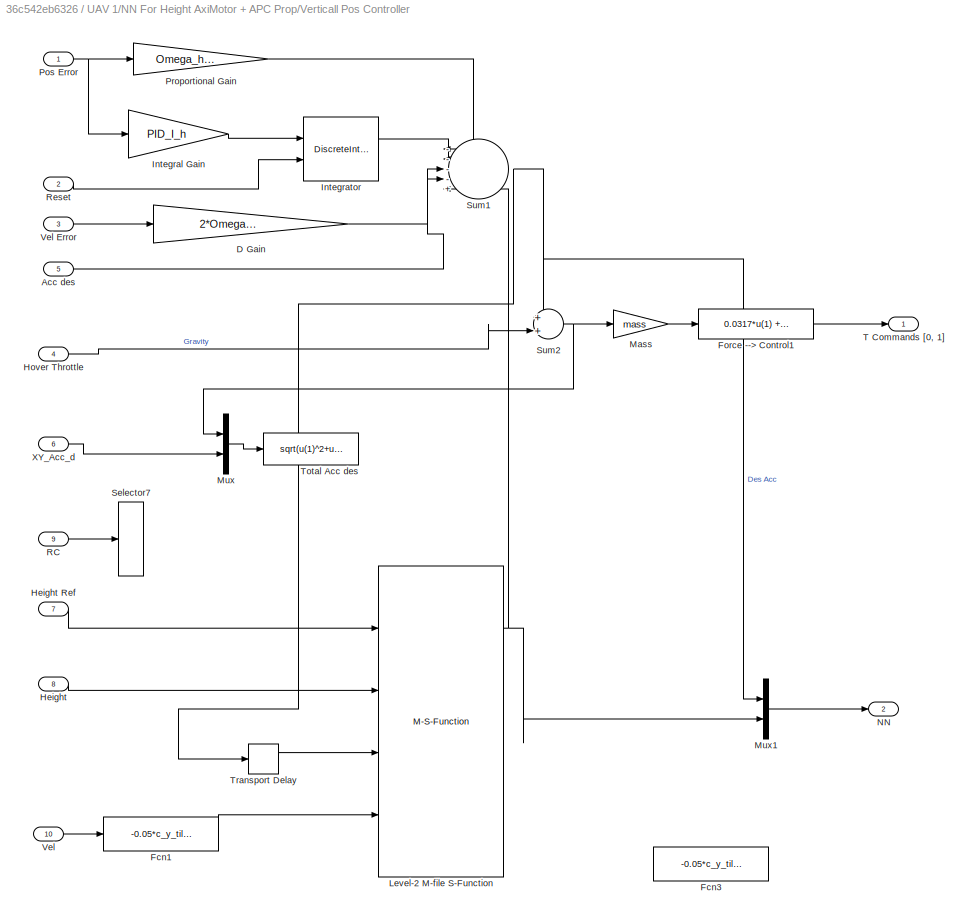
BLOCK [SubSystem] UAV 1/NN For Height AxiMotor + APC Prop/Verticall Pos Controller
  FunctionWithSeparateData = off
  MaskHideContents = off
  MinAlgLoopOccurrences = off
  Opaque = off
  Ports = [10, 2]
  PropExecContextOutsideSubsystem = off
  RTWSystemCode = Auto
  RequestExecContextInheritance = off
BLOCK [Inport] UAV 1/NN For Height AxiMotor + APC Prop/Verticall Pos Controller/Acc des
  IconDisplay = Port number
  Port = 5
BLOCK [Gain] UAV 1/NN For Height AxiMotor + APC Prop/Verticall Pos Controller/D Gain
  Gain = 2*Omega_h*Zeta_h
  OutDataTypeStr = double
  ParamDataTypeStr = Inherit: Inherit via internal rule
  SaturateOnIntegerOverflow = off
BLOCK [Fcn] UAV 1/NN For Height AxiMotor + APC Prop/Verticall Pos Controller/Fcn1
  Expr = -0.05*c_y_tilt*u(1)
BLOCK [Fcn] UAV 1/NN For Height AxiMotor + APC Prop/Verticall Pos Controller/Fcn3
  Expr = -0.05*c_y_tilt*u(1)
BLOCK [Fcn] UAV 1/NN For Height AxiMotor + APC Prop/Verticall Pos Controller/Force --> Control1
  Expr = 0.0317*u(1) +0.1208
BLOCK [Inport] UAV 1/NN For Height AxiMotor + APC Prop/Verticall Pos Controller/Height
  IconDisplay = Port number
  Port = 8
BLOCK [Inport] UAV 1/NN For Height AxiMotor + APC Prop/Verticall Pos Controller/Height Ref
  IconDisplay = Port number
  Port = 7
BLOCK [Inport] UAV 1/NN For Height AxiMotor + APC Prop/Verticall Pos Controller/Hover Throttle
  IconDisplay = Port number
  Port = 4
BLOCK [Gain] UAV 1/NN For Height AxiMotor + APC Prop/Verticall Pos Controller/Integral Gain
  DisableCoverage = on
  Gain = PID_I_h
  OutDataTypeStr = double
  ParamDataTypeStr = double
  SaturateOnIntegerOverflow = off
BLOCK [DiscreteIntegrator] UAV 1/NN For Height AxiMotor + APC Prop/Verticall Pos Controller/Integrator
  DisableCoverage = on
  ExternalReset = rising
  ICPrevOutput = DiscIntNeverNeededParam
  ICPrevScaledInput = DiscIntNeverNeededParam
  InitialConditionMode = State only (most efficient)
  IntegratorMethod = Integration: Trapezoidal
  LowerSaturationLimit = -0.3
  OutDataTypeStr = double
  Ports = [2, 1]
  SampleTime = -1
  UpperSaturationLimit = 0.3
BLOCK [M-S-Function] UAV 1/NN For Height AxiMotor + APC Prop/Verticall Pos Controller/Level-2 M-file S-Function
  FunctionName = msfcn_Adaptive_NN_HeightOnly
  Parameters = n,r,n2,NN_ST,GAMA_V,gama_V_e,GAMA_W,gama_W_e,alpha,c_f,c_y_tilt,NN_Deadzone_Z,NN_Z_y_min,NN_Z_y_max,NN_Z_v_min,NN_Z_v_max
  Ports = [4, 4]
BLOCK [Gain] UAV 1/NN For Height AxiMotor + APC Prop/Verticall Pos Controller/Mass
  DisableCoverage = on
  Gain = mass
  OutDataTypeStr = double
  ParamDataTypeStr = double
  SaturateOnIntegerOverflow = off
BLOCK [Mux] UAV 1/NN For Height AxiMotor + APC Prop/Verticall Pos Controller/Mux
  DisplayOption = bar
  Inputs = 2
  Ports = [2, 1]
BLOCK [Mux] UAV 1/NN For Height AxiMotor + APC Prop/Verticall Pos Controller/Mux1
  DisplayOption = bar
  Inputs = 2
  Ports = [2, 1]
BLOCK [Outport] UAV 1/NN For Height AxiMotor + APC Prop/Verticall Pos Controller/NN
  IconDisplay = Port number
  Port = 2
BLOCK [Inport] UAV 1/NN For Height AxiMotor + APC Prop/Verticall Pos Controller/Pos Error
  IconDisplay = Port number
BLOCK [Gain] UAV 1/NN For Height AxiMotor + APC Prop/Verticall Pos Controller/Proportional Gain
  DisableCoverage = on
  Gain = Omega_h^2
  OutDataTypeStr = double
  ParamDataTypeStr = double
  SaturateOnIntegerOverflow = off
BLOCK [Inport] UAV 1/NN For Height AxiMotor + APC Prop/Verticall Pos Controller/RC
  IconDisplay = Port number
  Port = 9
BLOCK [Inport] UAV 1/NN For Height AxiMotor + APC Prop/Verticall Pos Controller/Reset
  IconDisplay = Port number
  Port = 2
BLOCK [Selector] UAV 1/NN For Height AxiMotor + APC Prop/Verticall Pos Controller/Selector7
  IndexOptions = Index vector (dialog)
  Indices = [6]
  InputPortWidth = 8
  OutputSizes = 1
  Ports = [1, 1]
BLOCK [Sum] UAV 1/NN For Height AxiMotor + APC Prop/Verticall Pos Controller/Sum1
  AccumDataTypeStr = double
  DisableCoverage = on
  IconShape = round
  InputSameDT = off
  Inputs = ----+|
  OutDataTypeStr = double
  Ports = [5, 1]
  SampleTime = 0.02
  SaturateOnIntegerOverflow = off
BLOCK [Sum] UAV 1/NN For Height AxiMotor + APC Prop/Verticall Pos Controller/Sum2
  AccumDataTypeStr = double
  DisableCoverage = on
  IconShape = round
  InputSameDT = off
  Inputs = ++|
  OutDataTypeStr = double
  Ports = [2, 1]
  SampleTime = 0.02
  SaturateOnIntegerOverflow = off
BLOCK [Outport] UAV 1/NN For Height AxiMotor + APC Prop/Verticall Pos Controller/T  Commands [0, 1]
  IconDisplay = Port number
BLOCK [Fcn] UAV 1/NN For Height AxiMotor + APC Prop/Verticall Pos Controller/Total Acc des
  Expr = sqrt(u(1)^2+u(2)^2)
BLOCK [TransportDelay] UAV 1/NN For Height AxiMotor + APC Prop/Verticall Pos Controller/Transport Delay
  DelayTime = 0.02
  Ports = [1, 1]
BLOCK [Inport] UAV 1/NN For Height AxiMotor + APC Prop/Verticall Pos Controller/Vel
  IconDisplay = Port number
  Port = 10
BLOCK [Inport] UAV 1/NN For Height AxiMotor + APC Prop/Verticall Pos Controller/Vel Error
  IconDisplay = Port number
  Port = 3
BLOCK [Inport] UAV 1/NN For Height AxiMotor + APC Prop/Verticall Pos Controller/XY_Acc_d
  IconDisplay = Port number
  Port = 6
BLOCK [Inport] UAV 1/NN For Height AxiMotor + APC Prop/XY_Acc_d
  IconDisplay = Port number
  Port = 3
BLOCK [Scope] UAV 1/Pd VS P
  DataFormat = StructureWithTime
  Floating = off
  LimitDataPoints = off
  NumInputPorts = 3
  Ports = [3]
  SampleTime = 0
  ShowLegends = off
  TimeRange = 10
  YMax = 20~5~0.1
  YMin = -20~-5~-1.3
BLOCK [Scope] UAV 1/Pd VS P1
  DataFormat = StructureWithTime
  Floating = off
  LimitDataPoints = off
  NumInputPorts = 2
  Ports = [2]
  SampleTime = 0
  SaveName = ScopeData1
  ShowLegends = off
  TimeRange = 10
  YMax = 10~5
  YMin = -10~-5
BLOCK [Outport] UAV 1/PosError
  IconDisplay = Port number
  Port = 2
BLOCK [Inport] UAV 1/RC
  IconDisplay = Port number
  Port = 2
BLOCK [RateTransition] UAV 1/Rate Transition
  OutPortSampleTime = 0.02
BLOCK [RateTransition] UAV 1/Rate Transition1
  OutPortSampleTime = 0.02
BLOCK [Selector] UAV 1/Selector1
  IndexOptions = Index vector (dialog)
  Indices = [1 2 3]
  InputPortWidth = 10
  OutputSizes = 1
  Ports = [1, 1]
BLOCK [Selector] UAV 1/Selector2
  IndexOptions = Index vector (dialog)
  Indices = [1 4]
  InputPortWidth = 10
  OutputSizes = 1
  Ports = [1, 1]
BLOCK [Selector] UAV 1/Selector3
  IndexOptions = Index vector (dialog)
  Indices = [4 5 6]
  InputPortWidth = 10
  OutputSizes = 1
  Ports = [1, 1]
BLOCK [SubSystem] UAV 1/Trajectory Logic
  FunctionWithSeparateData = off
  MaskHideContents = off
  MinAlgLoopOccurrences = off
  Opaque = off
  Ports = [2, 8]
  PropExecContextOutsideSubsystem = off
  RTWSystemCode = Auto
  RequestExecContextInheritance = off
BLOCK [Outport] UAV 1/Trajectory Logic/AccRef
  IconDisplay = Port number
  Port = 4
BLOCK [BusSelector] UAV 1/Trajectory Logic/Bus Selector
  OutputSignals = rc,Position,Attitude,Joystick Cmd
  Ports = [1, 4]
BLOCK [Outport] UAV 1/Trajectory Logic/HoverThrottle
  IconDisplay = Port number
  Port = 5
BLOCK [Outport] UAV 1/Trajectory Logic/Mode
  IconDisplay = Port number
  Port = 6
BLOCK [Mux] UAV 1/Trajectory Logic/Mux
  DisplayOption = bar
  Inputs = 2
  Ports = [2, 1]
BLOCK [Inport] UAV 1/Trajectory Logic/PerchPos
  IconDisplay = Port number
  Port = 2
BLOCK [Outport] UAV 1/Trajectory Logic/PosError
  IconDisplay = Port number
  Port = 7
BLOCK [Outport] UAV 1/Trajectory Logic/PosRef
  IconDisplay = Port number
BLOCK [Reference] UAV 1/Trajectory Logic/PosRefSystem  REF=X330_Control/PosRefSystem
  Acc_Max = Q6_acc_max
  Acc_h_Max = Q6_acc_max_h
  Omega_h_r = Q6_Omega_r_h
  Omega_r = Q6_Omega_r
  Ports = [1, 4]
  SourceBlock = X330_Control/PosRefSystem
  Zeta_h_r = Q6_Zeta_r_h
  Zeta_r = Q6_Zeta_r
BLOCK [Selector] UAV 1/Trajectory Logic/Selector1
  IndexOptions = Index vector (dialog)
  Indices = [3]
  InputPortWidth = 3
  OutputSizes = 1
  Ports = [1, 1]
BLOCK [Outport] UAV 1/Trajectory Logic/TrajCmd
  IconDisplay = Port number
  Port = 8
BLOCK [Inport] UAV 1/Trajectory Logic/UAV Bus
  IconDisplay = Port number
BLOCK [SubSystem] UAV 1/Trajectory Logic/UAV SF1
  ErrorFcn = Stateflow.Translate.translate
  FunctionWithSeparateData = off
  MaskHideContents = off
  MinAlgLoopOccurrences = off
  Opaque = off
  PermitHierarchicalResolution = ExplicitOnly
  Ports = [4, 5]
  PropExecContextOutsideSubsystem = off
  RTWSystemCode = Auto
  RequestExecContextInheritance = off
  SFBlockType = Chart
  TreatAsAtomicUnit = on
BLOCK [Demux] UAV 1/Trajectory Logic/UAV SF1/ Demux 
  Outputs = 1
  Ports = [1, 1]
BLOCK [S-Function] UAV 1/Trajectory Logic/UAV SF1/ SFunction 
  EnableBusSupport = off
  FunctionName = sf_sfun
  Parameters = Circle_R,DeltaT,H0,Kl,MAX_Height,PI,omega_circle,omega_h
  PortCounts = [7 7]
  Ports = [7, 7]
  Tag = Stateflow S-Function Joystick 7
BLOCK [Outport] UAV 1/Trajectory Logic/UAV SF1/HoverThrottle
  IconDisplay = Port number
  Port = 2
BLOCK [Inport] UAV 1/Trajectory Logic/UAV SF1/Joystick
  IconDisplay = Port number
  Port = 4
BLOCK [Outport] UAV 1/Trajectory Logic/UAV SF1/Mode
  IconDisplay = Port number
  Port = 3
BLOCK [Inport] UAV 1/Trajectory Logic/UAV SF1/PerchPos
  IconDisplay = Port number
  Port = 3
BLOCK [Inport] UAV 1/Trajectory Logic/UAV SF1/Pos
  IconDisplay = Port number
  Port = 2
BLOCK [Outport] UAV 1/Trajectory Logic/UAV SF1/PosDesired
  IconDisplay = Port number
BLOCK [Outport] UAV 1/Trajectory Logic/UAV SF1/PosError
  IconDisplay = Port number
  Port = 4
BLOCK [Inport] UAV 1/Trajectory Logic/UAV SF1/RC
  IconDisplay = Port number
BLOCK [Outport] UAV 1/Trajectory Logic/UAV SF1/TrajCmd
  IconDisplay = Port number
  Port = 5
BLOCK [SubSystem] UAV 1/Trajectory Logic/UAV SF1/traj_1
  FunctionWithSeparateData = off
  MaskHideContents = off
  MinAlgLoopOccurrences = off
  Opaque = off
  Ports = [1, 3, 0, 1]
  PreDeleteFcn = Stateflow.SLINSF.SimulinkMan.removePreDeleteFcn
  PropExecContextOutsideSubsystem = off
  RTWSystemCode = Auto
  RequestExecContextInheritance = off
  UndoDeleteFcn = Stateflow.SLINSF.SimulinkMan.restorePreDeleteFcn
BLOCK [Constant] UAV 1/Trajectory Logic/UAV SF1/traj_1/Constant
  Value = 0
BLOCK [SubSystem] UAV 1/Trajectory Logic/UAV SF1/traj_1/Enabled Subsystem1
  FunctionWithSeparateData = off
  MaskHideContents = off
  MinAlgLoopOccurrences = off
  Opaque = off
  Ports = [0, 3, 1]
  PropExecContextOutsideSubsystem = off
  RTWSystemCode = Auto
  RequestExecContextInheritance = off
  TreatAsAtomicUnit = on
BLOCK [EnablePort] UAV 1/Trajectory Logic/UAV SF1/traj_1/Enabled Subsystem1/Enable
  Ports = []
BLOCK [FromWorkspace] UAV 1/Trajectory Logic/UAV SF1/traj_1/Enabled Subsystem1/From Workspace
  Interpolate = off
  OutputAfterFinalValue = Holding final value
  VariableName = UAV_1_Interp
  ZeroCross = on
BLOCK [Selector] UAV 1/Trajectory Logic/UAV SF1/traj_1/Enabled Subsystem1/Selector1
  IndexOptions = Index vector (dialog)
  Indices = [2]
  InputPortWidth = 3
  OutputSizes = 1
  Ports = [1, 1]
BLOCK [Selector] UAV 1/Trajectory Logic/UAV SF1/traj_1/Enabled Subsystem1/Selector2
  IndexOptions = Index vector (dialog)
  Indices = [3]
  InputPortWidth = 3
  OutputSizes = 1
  Ports = [1, 1]
BLOCK [Selector] UAV 1/Trajectory Logic/UAV SF1/traj_1/Enabled Subsystem1/Selector6
  IndexOptions = Index vector (dialog)
  Indices = [1]
  InputPortWidth = 3
  OutputSizes = 1
  Ports = [1, 1]
BLOCK [Outport] UAV 1/Trajectory Logic/UAV SF1/traj_1/Enabled Subsystem1/x
  IconDisplay = Port number
BLOCK [Outport] UAV 1/Trajectory Logic/UAV SF1/traj_1/Enabled Subsystem1/y
  IconDisplay = Port number
  Port = 2
BLOCK [Outport] UAV 1/Trajectory Logic/UAV SF1/traj_1/Enabled Subsystem1/z
  IconDisplay = Port number
  Port = 3
BLOCK [Sum] UAV 1/Trajectory Logic/UAV SF1/traj_1/Sum
  IconShape = round
  InputSameDT = off
  Inputs = |++
  OutDataTypeStr = Inherit: Inherit via internal rule
  Ports = [2, 1]
  SaturateOnIntegerOverflow = off
BLOCK [TriggerPort] UAV 1/Trajectory Logic/UAV SF1/traj_1/f
  CopyFcn = Stateflow.SLINSF.SimulinkMan.removeBlockPreDeleteFcn
  Ports = []
  PreDeleteFcn = Stateflow.SLINSF.SimulinkMan.unsafePredeleteFcn
  StatesWhenEnabling = held
  TriggerType = function-call
BLOCK [Inport] UAV 1/Trajectory Logic/UAV SF1/traj_1/u
  IconDisplay = Port number
BLOCK [Outport] UAV 1/Trajectory Logic/UAV SF1/traj_1/y1
  IconDisplay = Port number
BLOCK [Outport] UAV 1/Trajectory Logic/UAV SF1/traj_1/y2
  IconDisplay = Port number
  Port = 2
BLOCK [Outport] UAV 1/Trajectory Logic/UAV SF1/traj_1/y3
  IconDisplay = Port number
  Port = 3
BLOCK [Outport] UAV 1/Trajectory Logic/VelRef
  IconDisplay = Port number
  Port = 3
BLOCK [Outport] UAV 1/Trajectory Logic/attitude des
  IconDisplay = Port number
  Port = 2
BLOCK [Outport] UAV 1/UAV_1
  IconDisplay = Port number
BLOCK [Inport] UAV 1/Vicon
  IconDisplay = Port number
BLOCK [Reference] UAV 1/Yaw Controller  REF=X330_Control/Yaw Controller
  Ports = [1, 1]
  SourceBlock = X330_Control/Yaw Controller
  SourceType = SubSystem
BLOCK [Scope] UAV 1/v
  DataFormat = StructureWithTime
  Floating = off
  LimitDataPoints = off
  NumInputPorts = 1
  Ports = [1]
  SampleTime = 0
  SaveName = ScopeData2
  ShowLegends = off
  TimeRange = 10
  YMax = 20
  YMin = -20
BLOCK [SubSystem] UAV 5
  FunctionWithSeparateData = off
  MaskHideContents = off
  MinAlgLoopOccurrences = off
  Opaque = off
  Ports = [2, 3]
  PropExecContextOutsideSubsystem = off
  RTWSystemCode = Auto
  RequestExecContextInheritance = off
BLOCK [BusCreator] UAV 5/Bus Creator
  DisplayOption = bar
  Inputs = 9
  Ports = [9, 1]
BLOCK [BusSelector] UAV 5/Bus Selector
  OutputSignals = Position,Attitude,Velocity,Acceleration
  Ports = [1, 4]
BLOCK [Reference] UAV 5/Horizontal Pos controller  REF=X330_Control/Horizontal Pos controller
  FunctionWithSeparateData = off
  GeneratePreprocessorConditionals = off
  Max_RP = 60
  Omega = Q6_Omega
  PID_i = Q6_Omega
  Ports = [1, 1]
  RTWMemSecDataConstants = Inherit from model
  RTWMemSecDataInternal = Inherit from model
  RTWMemSecDataParameters = Inherit from model
  RTWMemSecFuncExecute = Inherit from model
  RTWMemSecFuncInitTerm = Inherit from model
  ShowPortLabels = FromPortIcon
  SourceBlock = X330_Control/Horizontal Pos controller
  SourceType = Unknown
  SystemSampleTime = -1
  Zeta = Q6_Zeta
BLOCK [SubSystem] UAV 5/Mixer
  FunctionWithSeparateData = off
  MaskHideContents = off
  MinAlgLoopOccurrences = off
  Opaque = off
  Ports = [3, 1]
  PropExecContextOutsideSubsystem = off
  RTWSystemCode = Auto
  RequestExecContextInheritance = off
BLOCK [Gain] UAV 5/Mixer/Gain
  Gain = 180/pi
  OutDataTypeStr = Inherit: Inherit via internal rule
  ParamDataTypeStr = Inherit: Inherit via internal rule
  SaturateOnIntegerOverflow = off
BLOCK [Reference] UAV 5/Mixer/Manual Switch  REF=simulink/Signal
Routing/Manual Switch
  FunctionWithSeparateData = off
  GeneratePreprocessorConditionals = off
  Ports = [2, 1]
  RTWMemSecDataConstants = Inherit from model
  RTWMemSecDataInternal = Inherit from model
  RTWMemSecDataParameters = Inherit from model
  RTWMemSecFuncExecute = Inherit from model
  RTWMemSecFuncInitTerm = Inherit from model
  ShowPortLabels = FromPortIcon
  SourceBlock = simulink/Signal\nRouting/Manual Switch
  SourceType = Manual Switch
  SystemSampleTime = -1
  action = 0
  sw = 1
  varsize = off
BLOCK [Mux] UAV 5/Mixer/Mux1
  DisplayOption = bar
  Ports = [4, 1]
BLOCK [Constant] UAV 5/Mixer/PWM (1000-close; 2000-open)
  SampleTime = 0.02
  Value = 1600
BLOCK [Constant] UAV 5/Mixer/PWM (1000-close; 2000-open)1
  SampleTime = 0.02
  Value = 1200
BLOCK [Inport] UAV 5/Mixer/RP
  IconDisplay = Port number
BLOCK [Inport] UAV 5/Mixer/T
  IconDisplay = Port number
  Port = 2
BLOCK [Outport] UAV 5/Mixer/UAV_1
  IconDisplay = Port number
BLOCK [Inport] UAV 5/Mixer/Yaw rate
  IconDisplay = Port number
  Port = 3
BLOCK [Fcn] UAV 5/Mixer/[-1, 1]
  Expr = u(1)*2-1
BLOCK [Constant] UAV 5/Mixer/id
  SampleTime = 0.02
  Value = 5
BLOCK [Outport] UAV 5/Mode
  IconDisplay = Port number
  Port = 2
BLOCK [Reference] UAV 5/NN For Height AxiMotor + APC Prop  REF=X330_Control/NN For Height
AxiMotor + APC Prop
  FunctionWithSeparateData = off
  GeneratePreprocessorConditionals = off
  Omega_h = 2.3
  PID_I_h = 0
  Ports = [3, 2]
  RTWMemSecDataConstants = Inherit from model
  RTWMemSecDataInternal = Inherit from model
  RTWMemSecDataParameters = Inherit from model
  RTWMemSecFuncExecute = Inherit from model
  RTWMemSecFuncInitTerm = Inherit from model
  ShowPortLabels = FromPortIcon
  SourceBlock = X330_Control/NN For Height\nAxiMotor + APC Prop
  SourceType = Unknown
  SystemSampleTime = -1
  Zeta_h = 0.7
  mass = Q6_mass
BLOCK [Outport] UAV 5/PosError
  IconDisplay = Port number
  Port = 3
BLOCK [Inport] UAV 5/RC
  IconDisplay = Port number
  Port = 2
BLOCK [RateTransition] UAV 5/Rate Transition
  OutPortSampleTime = 0.02
BLOCK [RateTransition] UAV 5/Rate Transition1
  OutPortSampleTime = 0.02
BLOCK [Outport] UAV 5/TRPY Cmd
  IconDisplay = Port number
BLOCK [SubSystem] UAV 5/Trajectory Logic
  FunctionWithSeparateData = off
  MaskHideContents = off
  MinAlgLoopOccurrences = off
  Opaque = off
  Ports = [2, 7]
  PropExecContextOutsideSubsystem = off
  RTWSystemCode = Auto
  RequestExecContextInheritance = off
BLOCK [Outport] UAV 5/Trajectory Logic/AccRef
  IconDisplay = Port number
  Port = 4
BLOCK [BusSelector] UAV 5/Trajectory Logic/Bus Selector
  OutputSignals = rc,Position,Attitude
  Ports = [1, 3]
BLOCK [Outport] UAV 5/Trajectory Logic/HoverThrottle
  IconDisplay = Port number
  Port = 5
BLOCK [Outport] UAV 5/Trajectory Logic/Mode
  IconDisplay = Port number
  Port = 6
BLOCK [Mux] UAV 5/Trajectory Logic/Mux
  DisplayOption = bar
  Inputs = 2
  Ports = [2, 1]
BLOCK [Inport] UAV 5/Trajectory Logic/PerchPos
  IconDisplay = Port number
  Port = 2
BLOCK [Outport] UAV 5/Trajectory Logic/PosError
  IconDisplay = Port number
  Port = 7
BLOCK [Outport] UAV 5/Trajectory Logic/PosRef
  IconDisplay = Port number
BLOCK [Reference] UAV 5/Trajectory Logic/PosRefSystem  REF=X330_Control/PosRefSystem
  Acc_Max = Q6_acc_max
  Acc_h_Max = Q6_acc_max_h
  FunctionWithSeparateData = off
  GeneratePreprocessorConditionals = off
  Omega_h_r = Q6_Omega_r_h
  Omega_r = Q6_Omega_r
  Ports = [1, 4]
  RTWMemSecDataConstants = Inherit from model
  RTWMemSecDataInternal = Inherit from model
  RTWMemSecDataParameters = Inherit from model
  RTWMemSecFuncExecute = Inherit from model
  RTWMemSecFuncInitTerm = Inherit from model
  ShowPortLabels = FromPortIcon
  SourceBlock = X330_Control/PosRefSystem
  SourceType = Unknown
  SystemSampleTime = -1
  Zeta_h_r = Q6_Zeta_r_h
  Zeta_r = Q6_Zeta_r
BLOCK [Selector] UAV 5/Trajectory Logic/Selector1
  IndexOptions = Index vector (dialog)
  Indices = [3]
  InputPortWidth = 3
  OutputSizes = 1
  Ports = [1, 1]
BLOCK [Inport] UAV 5/Trajectory Logic/UAV Bus
  IconDisplay = Port number
BLOCK [SubSystem] UAV 5/Trajectory Logic/UAV SF1
  ErrorFcn = Stateflow.Translate.translate
  FunctionWithSeparateData = off
  MaskHideContents = off
  MinAlgLoopOccurrences = off
  Opaque = off
  PermitHierarchicalResolution = ExplicitOnly
  Ports = [3, 4]
  PropExecContextOutsideSubsystem = off
  RTWSystemCode = Auto
  RequestExecContextInheritance = off
  SFBlockType = Chart
  TreatAsAtomicUnit = on
BLOCK [Demux] UAV 5/Trajectory Logic/UAV SF1/ Demux 
  Outputs = 1
  Ports = [1, 1]
BLOCK [S-Function] UAV 5/Trajectory Logic/UAV SF1/ SFunction 
  EnableBusSupport = off
  FunctionName = sf_sfun
  Parameters = Circle_R,DeltaT,H0,Kl,MAX_Height,PI,omega_circle,omega_h
  PortCounts = [6 6]
  Ports = [6, 6]
  Tag = Stateflow S-Function Joystick 4
BLOCK [Outport] UAV 5/Trajectory Logic/UAV SF1/HoverThrottle
  IconDisplay = Port number
  Port = 2
BLOCK [Outport] UAV 5/Trajectory Logic/UAV SF1/Mode
  IconDisplay = Port number
  Port = 3
BLOCK [Inport] UAV 5/Trajectory Logic/UAV SF1/PerchPos
  IconDisplay = Port number
  Port = 3
BLOCK [Inport] UAV 5/Trajectory Logic/UAV SF1/Pos
  IconDisplay = Port number
  Port = 2
BLOCK [Outport] UAV 5/Trajectory Logic/UAV SF1/PosDesired
  IconDisplay = Port number
BLOCK [Outport] UAV 5/Trajectory Logic/UAV SF1/PosError
  IconDisplay = Port number
  Port = 4
BLOCK [Inport] UAV 5/Trajectory Logic/UAV SF1/RC
  IconDisplay = Port number
BLOCK [SubSystem] UAV 5/Trajectory Logic/UAV SF1/traj_1
  FunctionWithSeparateData = off
  MaskHideContents = off
  MinAlgLoopOccurrences = off
  Opaque = off
  Ports = [1, 3, 0, 1]
  PreDeleteFcn = Stateflow.SLINSF.SimulinkMan.removePreDeleteFcn
  PropExecContextOutsideSubsystem = off
  RTWSystemCode = Auto
  RequestExecContextInheritance = off
  UndoDeleteFcn = Stateflow.SLINSF.SimulinkMan.restorePreDeleteFcn
BLOCK [Constant] UAV 5/Trajectory Logic/UAV SF1/traj_1/Constant
  Value = 0
BLOCK [SubSystem] UAV 5/Trajectory Logic/UAV SF1/traj_1/Enabled Subsystem1
  FunctionWithSeparateData = off
  MaskHideContents = off
  MinAlgLoopOccurrences = off
  Opaque = off
  Ports = [0, 3, 1]
  PropExecContextOutsideSubsystem = off
  RTWSystemCode = Auto
  RequestExecContextInheritance = off
  TreatAsAtomicUnit = on
BLOCK [EnablePort] UAV 5/Trajectory Logic/UAV SF1/traj_1/Enabled Subsystem1/Enable
  Ports = []
BLOCK [FromWorkspace] UAV 5/Trajectory Logic/UAV SF1/traj_1/Enabled Subsystem1/From Workspace
  Interpolate = off
  OutputAfterFinalValue = Holding final value
  VariableName = UAV_4_Interp
  ZeroCross = on
BLOCK [Selector] UAV 5/Trajectory Logic/UAV SF1/traj_1/Enabled Subsystem1/Selector1
  IndexOptions = Index vector (dialog)
  Indices = [2]
  InputPortWidth = 3
  OutputSizes = 1
  Ports = [1, 1]
BLOCK [Selector] UAV 5/Trajectory Logic/UAV SF1/traj_1/Enabled Subsystem1/Selector2
  IndexOptions = Index vector (dialog)
  Indices = [3]
  InputPortWidth = 3
  OutputSizes = 1
  Ports = [1, 1]
BLOCK [Selector] UAV 5/Trajectory Logic/UAV SF1/traj_1/Enabled Subsystem1/Selector6
  IndexOptions = Index vector (dialog)
  Indices = [1]
  InputPortWidth = 3
  OutputSizes = 1
  Ports = [1, 1]
BLOCK [Outport] UAV 5/Trajectory Logic/UAV SF1/traj_1/Enabled Subsystem1/x
  IconDisplay = Port number
BLOCK [Outport] UAV 5/Trajectory Logic/UAV SF1/traj_1/Enabled Subsystem1/y
  IconDisplay = Port number
  Port = 2
BLOCK [Outport] UAV 5/Trajectory Logic/UAV SF1/traj_1/Enabled Subsystem1/z
  IconDisplay = Port number
  Port = 3
BLOCK [Sum] UAV 5/Trajectory Logic/UAV SF1/traj_1/Sum
  IconShape = round
  InputSameDT = off
  Inputs = |++
  OutDataTypeStr = Inherit: Inherit via internal rule
  Ports = [2, 1]
  SaturateOnIntegerOverflow = off
BLOCK [TriggerPort] UAV 5/Trajectory Logic/UAV SF1/traj_1/f
  CopyFcn = Stateflow.SLINSF.SimulinkMan.removeBlockPreDeleteFcn
  Ports = []
  PreDeleteFcn = Stateflow.SLINSF.SimulinkMan.unsafePredeleteFcn
  StatesWhenEnabling = held
  TriggerType = function-call
BLOCK [Inport] UAV 5/Trajectory Logic/UAV SF1/traj_1/u
  IconDisplay = Port number
BLOCK [Outport] UAV 5/Trajectory Logic/UAV SF1/traj_1/y1
  IconDisplay = Port number
BLOCK [Outport] UAV 5/Trajectory Logic/UAV SF1/traj_1/y2
  IconDisplay = Port number
  Port = 2
BLOCK [Outport] UAV 5/Trajectory Logic/UAV SF1/traj_1/y3
  IconDisplay = Port number
  Port = 3
BLOCK [Outport] UAV 5/Trajectory Logic/VelRef
  IconDisplay = Port number
  Port = 3
BLOCK [Outport] UAV 5/Trajectory Logic/attitude des
  IconDisplay = Port number
  Port = 2
BLOCK [Inport] UAV 5/Vicon
  IconDisplay = Port number
BLOCK [Reference] UAV 5/Yaw Controller  REF=X330_Control/Yaw Controller
  FunctionWithSeparateData = off
  GeneratePreprocessorConditionals = off
  Ports = [1, 1]
  RTWMemSecDataConstants = Inherit from model
  RTWMemSecDataInternal = Inherit from model
  RTWMemSecDataParameters = Inherit from model
  RTWMemSecFuncExecute = Inherit from model
  RTWMemSecFuncInitTerm = Inherit from model
  ShowPortLabels = FromPortIcon
  SourceBlock = X330_Control/Yaw Controller
  SourceType = SubSystem
  SystemSampleTime = -1
BLOCK [SubSystem] UAV 6
  FunctionWithSeparateData = off
  MaskHideContents = off
  MinAlgLoopOccurrences = off
  Opaque = off
  Ports = [2, 3]
  PropExecContextOutsideSubsystem = off
  RTWSystemCode = Auto
  RequestExecContextInheritance = off
BLOCK [BusCreator] UAV 6/Bus Creator
  DisplayOption = bar
  Inputs = 9
  Ports = [9, 1]
BLOCK [BusSelector] UAV 6/Bus Selector
  OutputSignals = Position,Attitude,Velocity,Acceleration
  Ports = [1, 4]
BLOCK [Reference] UAV 6/Horizontal Pos controller  REF=X330_Control/Horizontal Pos controller
  FunctionWithSeparateData = off
  GeneratePreprocessorConditionals = off
  Max_RP = 60
  Omega = Q6_Omega
  PID_i = Q6_Omega
  Ports = [1, 1]
  RTWMemSecDataConstants = Inherit from model
  RTWMemSecDataInternal = Inherit from model
  RTWMemSecDataParameters = Inherit from model
  RTWMemSecFuncExecute = Inherit from model
  RTWMemSecFuncInitTerm = Inherit from model
  ShowPortLabels = FromPortIcon
  SourceBlock = X330_Control/Horizontal Pos controller
  SourceType = Unknown
  SystemSampleTime = -1
  Zeta = Q6_Zeta
BLOCK [SubSystem] UAV 6/Mixer
  FunctionWithSeparateData = off
  MaskHideContents = off
  MinAlgLoopOccurrences = off
  Opaque = off
  Ports = [3, 1]
  PropExecContextOutsideSubsystem = off
  RTWSystemCode = Auto
  RequestExecContextInheritance = off
BLOCK [Gain] UAV 6/Mixer/Gain
  Gain = 180/pi
  OutDataTypeStr = Inherit: Inherit via internal rule
  ParamDataTypeStr = Inherit: Inherit via internal rule
  SaturateOnIntegerOverflow = off
BLOCK [Reference] UAV 6/Mixer/Manual Switch  REF=simulink/Signal
Routing/Manual Switch
  FunctionWithSeparateData = off
  GeneratePreprocessorConditionals = off
  Ports = [2, 1]
  RTWMemSecDataConstants = Inherit from model
  RTWMemSecDataInternal = Inherit from model
  RTWMemSecDataParameters = Inherit from model
  RTWMemSecFuncExecute = Inherit from model
  RTWMemSecFuncInitTerm = Inherit from model
  ShowPortLabels = FromPortIcon
  SourceBlock = simulink/Signal\nRouting/Manual Switch
  SourceType = Manual Switch
  SystemSampleTime = -1
  action = 0
  sw = 1
  varsize = off
BLOCK [Mux] UAV 6/Mixer/Mux1
  DisplayOption = bar
  Ports = [4, 1]
BLOCK [Constant] UAV 6/Mixer/PWM (1000-close; 2000-open)
  SampleTime = 0.02
  Value = 1600
BLOCK [Constant] UAV 6/Mixer/PWM (1000-close; 2000-open)1
  SampleTime = 0.02
  Value = 1200
BLOCK [Inport] UAV 6/Mixer/RP
  IconDisplay = Port number
BLOCK [Inport] UAV 6/Mixer/T
  IconDisplay = Port number
  Port = 2
BLOCK [Outport] UAV 6/Mixer/UAV_1
  IconDisplay = Port number
BLOCK [Inport] UAV 6/Mixer/Yaw rate
  IconDisplay = Port number
  Port = 3
BLOCK [Fcn] UAV 6/Mixer/[-1, 1]
  Expr = u(1)*2-1
BLOCK [Constant] UAV 6/Mixer/id
  SampleTime = 0.02
  Value = 6
BLOCK [Outport] UAV 6/Mode
  IconDisplay = Port number
  Port = 2
BLOCK [Reference] UAV 6/NN For Height AxiMotor + APC Prop  REF=X330_Control/NN For Height
AxiMotor + APC Prop
  FunctionWithSeparateData = off
  GeneratePreprocessorConditionals = off
  Omega_h = 2.3
  PID_I_h = 0
  Ports = [3, 2]
  RTWMemSecDataConstants = Inherit from model
  RTWMemSecDataInternal = Inherit from model
  RTWMemSecDataParameters = Inherit from model
  RTWMemSecFuncExecute = Inherit from model
  RTWMemSecFuncInitTerm = Inherit from model
  ShowPortLabels = FromPortIcon
  SourceBlock = X330_Control/NN For Height\nAxiMotor + APC Prop
  SourceType = Unknown
  SystemSampleTime = -1
  Zeta_h = 0.7
  mass = Q6_mass
BLOCK [Outport] UAV 6/PosError
  IconDisplay = Port number
  Port = 3
BLOCK [Inport] UAV 6/RC
  IconDisplay = Port number
  Port = 2
BLOCK [RateTransition] UAV 6/Rate Transition
  OutPortSampleTime = 0.02
BLOCK [RateTransition] UAV 6/Rate Transition1
  OutPortSampleTime = 0.02
BLOCK [Outport] UAV 6/TRPY Cmd
  IconDisplay = Port number
BLOCK [SubSystem] UAV 6/Trajectory Logic
  FunctionWithSeparateData = off
  MaskHideContents = off
  MinAlgLoopOccurrences = off
  Opaque = off
  Ports = [2, 7]
  PropExecContextOutsideSubsystem = off
  RTWSystemCode = Auto
  RequestExecContextInheritance = off
BLOCK [Outport] UAV 6/Trajectory Logic/AccRef
  IconDisplay = Port number
  Port = 4
BLOCK [BusSelector] UAV 6/Trajectory Logic/Bus Selector
  OutputSignals = rc,Position,Attitude
  Ports = [1, 3]
BLOCK [Outport] UAV 6/Trajectory Logic/HoverThrottle
  IconDisplay = Port number
  Port = 5
BLOCK [Outport] UAV 6/Trajectory Logic/Mode
  IconDisplay = Port number
  Port = 6
BLOCK [Mux] UAV 6/Trajectory Logic/Mux
  DisplayOption = bar
  Inputs = 2
  Ports = [2, 1]
BLOCK [Inport] UAV 6/Trajectory Logic/PerchPos
  IconDisplay = Port number
  Port = 2
BLOCK [Outport] UAV 6/Trajectory Logic/PosError
  IconDisplay = Port number
  Port = 7
BLOCK [Outport] UAV 6/Trajectory Logic/PosRef
  IconDisplay = Port number
BLOCK [Reference] UAV 6/Trajectory Logic/PosRefSystem  REF=X330_Control/PosRefSystem
  Acc_Max = Q6_acc_max
  Acc_h_Max = Q6_acc_max_h
  FunctionWithSeparateData = off
  GeneratePreprocessorConditionals = off
  Omega_h_r = Q6_Omega_r_h
  Omega_r = Q6_Omega_r
  Ports = [1, 4]
  RTWMemSecDataConstants = Inherit from model
  RTWMemSecDataInternal = Inherit from model
  RTWMemSecDataParameters = Inherit from model
  RTWMemSecFuncExecute = Inherit from model
  RTWMemSecFuncInitTerm = Inherit from model
  ShowPortLabels = FromPortIcon
  SourceBlock = X330_Control/PosRefSystem
  SourceType = Unknown
  SystemSampleTime = -1
  Zeta_h_r = Q6_Zeta_r_h
  Zeta_r = Q6_Zeta_r
BLOCK [Selector] UAV 6/Trajectory Logic/Selector1
  IndexOptions = Index vector (dialog)
  Indices = [3]
  InputPortWidth = 3
  OutputSizes = 1
  Ports = [1, 1]
BLOCK [Inport] UAV 6/Trajectory Logic/UAV Bus
  IconDisplay = Port number
BLOCK [SubSystem] UAV 6/Trajectory Logic/UAV SF
  ErrorFcn = Stateflow.Translate.translate
  FunctionWithSeparateData = off
  MaskHideContents = off
  MinAlgLoopOccurrences = off
  Opaque = off
  PermitHierarchicalResolution = ExplicitOnly
  Ports = [3, 4]
  PropExecContextOutsideSubsystem = off
  RTWSystemCode = Auto
  RequestExecContextInheritance = off
  SFBlockType = Chart
  TreatAsAtomicUnit = on
BLOCK [Demux] UAV 6/Trajectory Logic/UAV SF/ Demux 
  Outputs = 1
  Ports = [1, 1]
BLOCK [S-Function] UAV 6/Trajectory Logic/UAV SF/ SFunction 
  EnableBusSupport = off
  FunctionName = sf_sfun
  Parameters = Circle_R,DeltaT,H0,Kl,MAX_Height,PI,omega_circle,omega_h
  PortCounts = [6 6]
  Ports = [6, 6]
  Tag = Stateflow S-Function Joystick 11
BLOCK [Outport] UAV 6/Trajectory Logic/UAV SF/HoverThrottle
  IconDisplay = Port number
  Port = 2
BLOCK [Outport] UAV 6/Trajectory Logic/UAV SF/Mode
  IconDisplay = Port number
  Port = 3
BLOCK [Inport] UAV 6/Trajectory Logic/UAV SF/PerchPos
  IconDisplay = Port number
  Port = 3
BLOCK [Inport] UAV 6/Trajectory Logic/UAV SF/Pos
  IconDisplay = Port number
  Port = 2
BLOCK [Outport] UAV 6/Trajectory Logic/UAV SF/PosDesired
  IconDisplay = Port number
BLOCK [Outport] UAV 6/Trajectory Logic/UAV SF/PosError
  IconDisplay = Port number
  Port = 4
BLOCK [Inport] UAV 6/Trajectory Logic/UAV SF/RC
  IconDisplay = Port number
BLOCK [SubSystem] UAV 6/Trajectory Logic/UAV SF/traj_1
  FunctionWithSeparateData = off
  MaskHideContents = off
  MinAlgLoopOccurrences = off
  Opaque = off
  Ports = [1, 3, 0, 1]
  PreDeleteFcn = Stateflow.SLINSF.SimulinkMan.removePreDeleteFcn
  PropExecContextOutsideSubsystem = off
  RTWSystemCode = Auto
  RequestExecContextInheritance = off
  UndoDeleteFcn = Stateflow.SLINSF.SimulinkMan.restorePreDeleteFcn
BLOCK [Constant] UAV 6/Trajectory Logic/UAV SF/traj_1/Constant
  Value = 0
BLOCK [SubSystem] UAV 6/Trajectory Logic/UAV SF/traj_1/Enabled Subsystem1
  FunctionWithSeparateData = off
  MaskHideContents = off
  MinAlgLoopOccurrences = off
  Opaque = off
  Ports = [0, 3, 1]
  PropExecContextOutsideSubsystem = off
  RTWSystemCode = Auto
  RequestExecContextInheritance = off
  TreatAsAtomicUnit = on
BLOCK [EnablePort] UAV 6/Trajectory Logic/UAV SF/traj_1/Enabled Subsystem1/Enable
  Ports = []
BLOCK [FromWorkspace] UAV 6/Trajectory Logic/UAV SF/traj_1/Enabled Subsystem1/From Workspace
  Interpolate = off
  OutputAfterFinalValue = Holding final value
  VariableName = UAV_5_Interp
  ZeroCross = on
BLOCK [Selector] UAV 6/Trajectory Logic/UAV SF/traj_1/Enabled Subsystem1/Selector1
  IndexOptions = Index vector (dialog)
  Indices = [2]
  InputPortWidth = 3
  OutputSizes = 1
  Ports = [1, 1]
BLOCK [Selector] UAV 6/Trajectory Logic/UAV SF/traj_1/Enabled Subsystem1/Selector2
  IndexOptions = Index vector (dialog)
  Indices = [3]
  InputPortWidth = 3
  OutputSizes = 1
  Ports = [1, 1]
BLOCK [Selector] UAV 6/Trajectory Logic/UAV SF/traj_1/Enabled Subsystem1/Selector6
  IndexOptions = Index vector (dialog)
  Indices = [1]
  InputPortWidth = 3
  OutputSizes = 1
  Ports = [1, 1]
BLOCK [Outport] UAV 6/Trajectory Logic/UAV SF/traj_1/Enabled Subsystem1/x
  IconDisplay = Port number
BLOCK [Outport] UAV 6/Trajectory Logic/UAV SF/traj_1/Enabled Subsystem1/y
  IconDisplay = Port number
  Port = 2
BLOCK [Outport] UAV 6/Trajectory Logic/UAV SF/traj_1/Enabled Subsystem1/z
  IconDisplay = Port number
  Port = 3
BLOCK [Sum] UAV 6/Trajectory Logic/UAV SF/traj_1/Sum
  IconShape = round
  InputSameDT = off
  Inputs = |++
  OutDataTypeStr = Inherit: Inherit via internal rule
  Ports = [2, 1]
  SaturateOnIntegerOverflow = off
BLOCK [TriggerPort] UAV 6/Trajectory Logic/UAV SF/traj_1/f
  CopyFcn = Stateflow.SLINSF.SimulinkMan.removeBlockPreDeleteFcn
  Ports = []
  PreDeleteFcn = Stateflow.SLINSF.SimulinkMan.unsafePredeleteFcn
  StatesWhenEnabling = held
  TriggerType = function-call
BLOCK [Inport] UAV 6/Trajectory Logic/UAV SF/traj_1/u
  IconDisplay = Port number
BLOCK [Outport] UAV 6/Trajectory Logic/UAV SF/traj_1/y1
  IconDisplay = Port number
BLOCK [Outport] UAV 6/Trajectory Logic/UAV SF/traj_1/y2
  IconDisplay = Port number
  Port = 2
BLOCK [Outport] UAV 6/Trajectory Logic/UAV SF/traj_1/y3
  IconDisplay = Port number
  Port = 3
BLOCK [Outport] UAV 6/Trajectory Logic/VelRef
  IconDisplay = Port number
  Port = 3
BLOCK [Outport] UAV 6/Trajectory Logic/attitude des
  IconDisplay = Port number
  Port = 2
BLOCK [Inport] UAV 6/Vicon
  IconDisplay = Port number
BLOCK [Reference] UAV 6/Yaw Controller  REF=X330_Control/Yaw Controller
  FunctionWithSeparateData = off
  GeneratePreprocessorConditionals = off
  Ports = [1, 1]
  RTWMemSecDataConstants = Inherit from model
  RTWMemSecDataInternal = Inherit from model
  RTWMemSecDataParameters = Inherit from model
  RTWMemSecFuncExecute = Inherit from model
  RTWMemSecFuncInitTerm = Inherit from model
  ShowPortLabels = FromPortIcon
  SourceBlock = X330_Control/Yaw Controller
  SourceType = SubSystem
  SystemSampleTime = -1
BLOCK [SubSystem] Vicon_Data
  FunctionWithSeparateData = off
  MaskHideContents = off
  MinAlgLoopOccurrences = off
  Opaque = off
  Ports = [0, 5]
  PropExecContextOutsideSubsystem = off
  RTWSystemCode = Auto
  RequestExecContextInheritance = off
BLOCK [Constant] Vicon_Data/Constant
  SampleTime = 5
BLOCK [M-S-Function] Vicon_Data/Logic to fix signal loss and object local axis flip1
  FunctionName = Vicon_Filter
  Ports = [1, 1]
BLOCK [M-S-Function] Vicon_Data/Logic to fix signal loss and object local axis flip2
  FunctionName = Vicon_Filter
  Ports = [1, 1]
BLOCK [M-S-Function] Vicon_Data/Logic to fix signal loss and object local axis flip3
  FunctionName = Vicon_Filter
  Ports = [1, 1]
BLOCK [M-S-Function] Vicon_Data/Logic to fix signal loss and object local axis flip4
  FunctionName = Vicon_Filter
  Ports = [1, 1]
BLOCK [M-S-Function] Vicon_Data/Logic to fix signal loss and object local axis flip7
  FunctionName = Vicon_Filter
  Ports = [1, 1]
BLOCK [Mux] Vicon_Data/Mux1
  DisplayOption = bar
  Inputs = 2
  Ports = [2, 1]
BLOCK [Mux] Vicon_Data/Mux19
  DisplayOption = bar
  Inputs = 2
  Ports = [2, 1]
BLOCK [Mux] Vicon_Data/Mux2
  DisplayOption = bar
  Inputs = 2
  Ports = [2, 1]
BLOCK [Mux] Vicon_Data/Mux3
  DisplayOption = bar
  Inputs = 2
  Ports = [2, 1]
BLOCK [Mux] Vicon_Data/Mux4
  DisplayOption = bar
  Inputs = 2
  Ports = [2, 1]
BLOCK [SubSystem] Vicon_Data/Raw Quad Pose from Vicon
  FunctionWithSeparateData = off
  MaskHideContents = off
  MinAlgLoopOccurrences = off
  Opaque = off
  Ports = [0, 10]
  PropExecContextOutsideSubsystem = off
  RTWSystemCode = Auto
  RequestExecContextInheritance = off
BLOCK [Outport] Vicon_Data/Raw Quad Pose from Vicon/Attitude_Vicon_X330_1
  IconDisplay = Port number
  Port = 2
BLOCK [Outport] Vicon_Data/Raw Quad Pose from Vicon/Attitude_Vicon_X330_3
  IconDisplay = Port number
  Port = 4
BLOCK [Outport] Vicon_Data/Raw Quad Pose from Vicon/Attitude_Vicon_X330_4
  IconDisplay = Port number
  Port = 6
BLOCK [Outport] Vicon_Data/Raw Quad Pose from Vicon/Attitude_Vicon_X330_5
  IconDisplay = Port number
  Port = 8
BLOCK [Outport] Vicon_Data/Raw Quad Pose from Vicon/Attitude_Vicon_X330_6
  IconDisplay = Port number
  Port = 10
BLOCK [Constant] Vicon_Data/Raw Quad Pose from Vicon/Constant
  SampleTime = sample_time
BLOCK [Demux] Vicon_Data/Raw Quad Pose from Vicon/Demux
  DisplayOption = bar
  Outputs = 5
  Ports = [1, 5]
BLOCK [MATLABFcn] Vicon_Data/Raw Quad Pose from Vicon/Interpreted MATLAB Function
  MATLABFcn = GetViconPose_330_5Quad
  Ports = [1, 1]
BLOCK [Outport] Vicon_Data/Raw Quad Pose from Vicon/Position_Vicon_X330_1
  IconDisplay = Port number
BLOCK [Outport] Vicon_Data/Raw Quad Pose from Vicon/Position_Vicon_X330_3
  IconDisplay = Port number
  Port = 3
BLOCK [Outport] Vicon_Data/Raw Quad Pose from Vicon/Position_Vicon_X330_4
  IconDisplay = Port number
  Port = 5
BLOCK [Outport] Vicon_Data/Raw Quad Pose from Vicon/Position_Vicon_X330_5
  IconDisplay = Port number
  Port = 7
BLOCK [Outport] Vicon_Data/Raw Quad Pose from Vicon/Position_Vicon_X330_6
  IconDisplay = Port number
  Port = 9
BLOCK [SubSystem] Vicon_Data/Raw Quad Pose from Vicon/Process Vicon Raw Data1
  FunctionWithSeparateData = off
  MaskHideContents = off
  MinAlgLoopOccurrences = off
  Opaque = off
  Ports = [1, 2]
  PropExecContextOutsideSubsystem = off
  RTWSystemCode = Auto
  RequestExecContextInheritance = off
BLOCK [Sum] Vicon_Data/Raw Quad Pose from Vicon/Process Vicon Raw Data1/Add1
  InputSameDT = off
  Inputs = -+
  OutDataTypeStr = Inherit: Inherit via internal rule
  Ports = [2, 1]
  SaturateOnIntegerOverflow = off
BLOCK [Outport] Vicon_Data/Raw Quad Pose from Vicon/Process Vicon Raw Data1/Attitude
  IconDisplay = Port number
  Port = 2
BLOCK [Constant] Vicon_Data/Raw Quad Pose from Vicon/Process Vicon Raw Data1/Constant1
  OutDataTypeStr = double
  Value = pi
BLOCK [Demux] Vicon_Data/Raw Quad Pose from Vicon/Process Vicon Raw Data1/Demux
  DisplayOption = bar
  Outputs = 6
  Ports = [1, 6]
BLOCK [SubSystem] Vicon_Data/Raw Quad Pose from Vicon/Process Vicon Raw Data1/Flip_pi1
  FunctionWithSeparateData = off
  MaskHideContents = off
  MinAlgLoopOccurrences = off
  Opaque = off
  Ports = [1, 1]
  PropExecContextOutsideSubsystem = off
  RTWSystemCode = Auto
  RequestExecContextInheritance = off
BLOCK [Sum] Vicon_Data/Raw Quad Pose from Vicon/Process Vicon Raw Data1/Flip_pi1/Add
  InputSameDT = off
  Inputs = -+
  OutDataTypeStr = Inherit: Inherit via internal rule
  Ports = [2, 1]
  SaturateOnIntegerOverflow = off
BLOCK [Inport] Vicon_Data/Raw Quad Pose from Vicon/Process Vicon Raw Data1/Flip_pi1/Angle
  IconDisplay = Port number
BLOCK [Outport] Vicon_Data/Raw Quad Pose from Vicon/Process Vicon Raw Data1/Flip_pi1/Angle_Flip
  IconDisplay = Port number
BLOCK [Reference] Vicon_Data/Raw Quad Pose from Vicon/Process Vicon Raw Data1/Flip_pi1/Compare To Constant1  REF=simulink/Logic and Bit
Operations/Compare
To Constant
  FunctionWithSeparateData = off
  GeneratePreprocessorConditionals = off
  LogicOutDataTypeMode = uint8
  Ports = [1, 1]
  RTWMemSecDataConstants = Inherit from model
  RTWMemSecDataInternal = Inherit from model
  RTWMemSecDataParameters = Inherit from model
  RTWMemSecFuncExecute = Inherit from model
  RTWMemSecFuncInitTerm = Inherit from model
  ShowPortLabels = FromPortIcon
  SourceBlock = simulink/Logic and Bit\nOperations/Compare\nTo Constant
  SourceType = Compare To Constant
  SystemSampleTime = -1
  ZeroCross = off
  const = pi
  relop = >
BLOCK [Constant] Vicon_Data/Raw Quad Pose from Vicon/Process Vicon Raw Data1/Flip_pi1/Constant
  Value = 2*pi
BLOCK [DataTypeDuplicate] Vicon_Data/Raw Quad Pose from Vicon/Process Vicon Raw Data1/Flip_pi1/Data Type Duplicate
  Ports = [2]
BLOCK [SubSystem] Vicon_Data/Raw Quad Pose from Vicon/Process Vicon Raw Data1/Flip_pi1/Flip_0_to_2pi
  FunctionWithSeparateData = off
  MaskHideContents = off
  MinAlgLoopOccurrences = off
  Opaque = off
  Ports = [1, 1]
  PropExecContextOutsideSubsystem = off
  RTWSystemCode = Auto
  RequestExecContextInheritance = off
BLOCK [Sum] Vicon_Data/Raw Quad Pose from Vicon/Process Vicon Raw Data1/Flip_pi1/Flip_0_to_2pi/Add
  InputSameDT = off
  OutDataTypeStr = Inherit: Inherit via internal rule
  Ports = [2, 1]
  SaturateOnIntegerOverflow = off
BLOCK [Inport] Vicon_Data/Raw Quad Pose from Vicon/Process Vicon Raw Data1/Flip_pi1/Flip_0_to_2pi/Angle
  IconDisplay = Port number
BLOCK [Outport] Vicon_Data/Raw Quad Pose from Vicon/Process Vicon Raw Data1/Flip_pi1/Flip_0_to_2pi/Angle_Flip
  IconDisplay = Port number
BLOCK [Reference] Vicon_Data/Raw Quad Pose from Vicon/Process Vicon Raw Data1/Flip_pi1/Flip_0_to_2pi/Compare To Constant1  REF=simulink/Logic and Bit
Operations/Compare
To Constant
  FunctionWithSeparateData = off
  GeneratePreprocessorConditionals = off
  LogicOutDataTypeMode = uint8
  Ports = [1, 1]
  RTWMemSecDataConstants = Inherit from model
  RTWMemSecDataInternal = Inherit from model
  RTWMemSecDataParameters = Inherit from model
  RTWMemSecFuncExecute = Inherit from model
  RTWMemSecFuncInitTerm = Inherit from model
  ShowPortLabels = FromPortIcon
  SourceBlock = simulink/Logic and Bit\nOperations/Compare\nTo Constant
  SourceType = Compare To Constant
  SystemSampleTime = -1
  ZeroCross = off
  const = 0
  relop = <
BLOCK [Constant] Vicon_Data/Raw Quad Pose from Vicon/Process Vicon Raw Data1/Flip_pi1/Flip_0_to_2pi/Constant
  Value = 2*pi
BLOCK [DataTypeDuplicate] Vicon_Data/Raw Quad Pose from Vicon/Process Vicon Raw Data1/Flip_pi1/Flip_0_to_2pi/Data Type Duplicate
  Ports = [2]
BLOCK [SubSystem] Vicon_Data/Raw Quad Pose from Vicon/Process Vicon Raw Data1/Flip_pi1/Flip_0_to_2pi/Flip_2pi
  FunctionWithSeparateData = off
  MaskHideContents = off
  MinAlgLoopOccurrences = off
  Opaque = off
  Ports = [1, 1]
  PropExecContextOutsideSubsystem = off
  RTWSystemCode = Auto
  RequestExecContextInheritance = off
BLOCK [Inport] Vicon_Data/Raw Quad Pose from Vicon/Process Vicon Raw Data1/Flip_pi1/Flip_0_to_2pi/Flip_2pi/Angle
  IconDisplay = Port number
BLOCK [Outport] Vicon_Data/Raw Quad Pose from Vicon/Process Vicon Raw Data1/Flip_pi1/Flip_0_to_2pi/Flip_2pi/Angle_Flip
  IconDisplay = Port number
BLOCK [Bias] Vicon_Data/Raw Quad Pose from Vicon/Process Vicon Raw Data1/Flip_pi1/Flip_0_to_2pi/Flip_2pi/Bias
  Bias = -2*pi
  SaturateOnIntegerOverflow = off
BLOCK [Constant] Vicon_Data/Raw Quad Pose from Vicon/Process Vicon Raw Data1/Flip_pi1/Flip_0_to_2pi/Flip_2pi/Constant
  Value = 2*pi
BLOCK [DataTypeDuplicate] Vicon_Data/Raw Quad Pose from Vicon/Process Vicon Raw Data1/Flip_pi1/Flip_0_to_2pi/Flip_2pi/Data Type Duplicate
  Ports = [2]
BLOCK [Math] Vicon_Data/Raw Quad Pose from Vicon/Process Vicon Raw Data1/Flip_pi1/Flip_0_to_2pi/Flip_2pi/Modulo
  Operator = mod
  Ports = [2, 1]
BLOCK [Signum] Vicon_Data/Raw Quad Pose from Vicon/Process Vicon Raw Data1/Flip_pi1/Flip_0_to_2pi/Flip_2pi/Sign1
BLOCK [Switch] Vicon_Data/Raw Quad Pose from Vicon/Process Vicon Raw Data1/Flip_pi1/Flip_0_to_2pi/Flip_2pi/Switch
  InputSameDT = off
  SaturateOnIntegerOverflow = off
BLOCK [Switch] Vicon_Data/Raw Quad Pose from Vicon/Process Vicon Raw Data1/Flip_pi1/Flip_0_to_2pi/Switch
  Criteria = u2 ~= 0
  InputSameDT = off
  SaturateOnIntegerOverflow = off
BLOCK [Switch] Vicon_Data/Raw Quad Pose from Vicon/Process Vicon Raw Data1/Flip_pi1/Switch
  Criteria = u2 ~= 0
  InputSameDT = off
  SaturateOnIntegerOverflow = off
BLOCK [Gain] Vicon_Data/Raw Quad Pose from Vicon/Process Vicon Raw Data1/Gain1
  Gain = 0.001
  OutDataTypeStr = Inherit: Inherit via internal rule
  ParamDataTypeStr = Inherit: Inherit via internal rule
  SaturateOnIntegerOverflow = off
BLOCK [Gain] Vicon_Data/Raw Quad Pose from Vicon/Process Vicon Raw Data1/Gain3
  Gain = -1
  OutDataTypeStr = Inherit: Inherit via internal rule
  ParamDataTypeStr = Inherit: Inherit via internal rule
  SaturateOnIntegerOverflow = off
BLOCK [Gain] Vicon_Data/Raw Quad Pose from Vicon/Process Vicon Raw Data1/Gain6
  Gain = -0.001
  OutDataTypeStr = Inherit: Inherit via internal rule
  ParamDataTypeStr = Inherit: Inherit via internal rule
  SaturateOnIntegerOverflow = off
BLOCK [Gain] Vicon_Data/Raw Quad Pose from Vicon/Process Vicon Raw Data1/Gain7
  Gain = -0.001
  OutDataTypeStr = Inherit: Inherit via internal rule
  ParamDataTypeStr = Inherit: Inherit via internal rule
  SaturateOnIntegerOverflow = off
BLOCK [Concatenate] Vicon_Data/Raw Quad Pose from Vicon/Process Vicon Raw Data1/Matrix Concatenate1
  Mode = Multidimensional array
  NumInputs = 3
  Ports = [3, 1]
BLOCK [Concatenate] Vicon_Data/Raw Quad Pose from Vicon/Process Vicon Raw Data1/Matrix Concatenate13
  Mode = Multidimensional array
  NumInputs = 3
  Ports = [3, 1]
BLOCK [Outport] Vicon_Data/Raw Quad Pose from Vicon/Process Vicon Raw Data1/Position
  IconDisplay = Port number
BLOCK [Inport] Vicon_Data/Raw Quad Pose from Vicon/Process Vicon Raw Data1/Vicon Raw
  IconDisplay = Port number
BLOCK [SubSystem] Vicon_Data/Raw Quad Pose from Vicon/Process Vicon Raw Data2
  FunctionWithSeparateData = off
  MaskHideContents = off
  MinAlgLoopOccurrences = off
  Opaque = off
  Ports = [1, 2]
  PropExecContextOutsideSubsystem = off
  RTWSystemCode = Auto
  RequestExecContextInheritance = off
BLOCK [Sum] Vicon_Data/Raw Quad Pose from Vicon/Process Vicon Raw Data2/Add1
  InputSameDT = off
  Inputs = -+
  OutDataTypeStr = Inherit: Inherit via internal rule
  Ports = [2, 1]
  SaturateOnIntegerOverflow = off
BLOCK [Outport] Vicon_Data/Raw Quad Pose from Vicon/Process Vicon Raw Data2/Attitude
  IconDisplay = Port number
  Port = 2
BLOCK [Constant] Vicon_Data/Raw Quad Pose from Vicon/Process Vicon Raw Data2/Constant1
  OutDataTypeStr = double
  Value = pi
BLOCK [Demux] Vicon_Data/Raw Quad Pose from Vicon/Process Vicon Raw Data2/Demux
  DisplayOption = bar
  Outputs = 6
  Ports = [1, 6]
BLOCK [SubSystem] Vicon_Data/Raw Quad Pose from Vicon/Process Vicon Raw Data2/Flip_pi1
  FunctionWithSeparateData = off
  MaskHideContents = off
  MinAlgLoopOccurrences = off
  Opaque = off
  Ports = [1, 1]
  PropExecContextOutsideSubsystem = off
  RTWSystemCode = Auto
  RequestExecContextInheritance = off
BLOCK [Sum] Vicon_Data/Raw Quad Pose from Vicon/Process Vicon Raw Data2/Flip_pi1/Add
  InputSameDT = off
  Inputs = -+
  OutDataTypeStr = Inherit: Inherit via internal rule
  Ports = [2, 1]
  SaturateOnIntegerOverflow = off
BLOCK [Inport] Vicon_Data/Raw Quad Pose from Vicon/Process Vicon Raw Data2/Flip_pi1/Angle
  IconDisplay = Port number
BLOCK [Outport] Vicon_Data/Raw Quad Pose from Vicon/Process Vicon Raw Data2/Flip_pi1/Angle_Flip
  IconDisplay = Port number
BLOCK [Reference] Vicon_Data/Raw Quad Pose from Vicon/Process Vicon Raw Data2/Flip_pi1/Compare To Constant1  REF=simulink/Logic and Bit
Operations/Compare
To Constant
  FunctionWithSeparateData = off
  GeneratePreprocessorConditionals = off
  LogicOutDataTypeMode = uint8
  Ports = [1, 1]
  RTWMemSecDataConstants = Inherit from model
  RTWMemSecDataInternal = Inherit from model
  RTWMemSecDataParameters = Inherit from model
  RTWMemSecFuncExecute = Inherit from model
  RTWMemSecFuncInitTerm = Inherit from model
  ShowPortLabels = FromPortIcon
  SourceBlock = simulink/Logic and Bit\nOperations/Compare\nTo Constant
  SourceType = Compare To Constant
  SystemSampleTime = -1
  ZeroCross = off
  const = pi
  relop = >
BLOCK [Constant] Vicon_Data/Raw Quad Pose from Vicon/Process Vicon Raw Data2/Flip_pi1/Constant
  Value = 2*pi
BLOCK [DataTypeDuplicate] Vicon_Data/Raw Quad Pose from Vicon/Process Vicon Raw Data2/Flip_pi1/Data Type Duplicate
  Ports = [2]
BLOCK [SubSystem] Vicon_Data/Raw Quad Pose from Vicon/Process Vicon Raw Data2/Flip_pi1/Flip_0_to_2pi
  FunctionWithSeparateData = off
  MaskHideContents = off
  MinAlgLoopOccurrences = off
  Opaque = off
  Ports = [1, 1]
  PropExecContextOutsideSubsystem = off
  RTWSystemCode = Auto
  RequestExecContextInheritance = off
BLOCK [Sum] Vicon_Data/Raw Quad Pose from Vicon/Process Vicon Raw Data2/Flip_pi1/Flip_0_to_2pi/Add
  InputSameDT = off
  OutDataTypeStr = Inherit: Inherit via internal rule
  Ports = [2, 1]
  SaturateOnIntegerOverflow = off
BLOCK [Inport] Vicon_Data/Raw Quad Pose from Vicon/Process Vicon Raw Data2/Flip_pi1/Flip_0_to_2pi/Angle
  IconDisplay = Port number
BLOCK [Outport] Vicon_Data/Raw Quad Pose from Vicon/Process Vicon Raw Data2/Flip_pi1/Flip_0_to_2pi/Angle_Flip
  IconDisplay = Port number
BLOCK [Reference] Vicon_Data/Raw Quad Pose from Vicon/Process Vicon Raw Data2/Flip_pi1/Flip_0_to_2pi/Compare To Constant1  REF=simulink/Logic and Bit
Operations/Compare
To Constant
  FunctionWithSeparateData = off
  GeneratePreprocessorConditionals = off
  LogicOutDataTypeMode = uint8
  Ports = [1, 1]
  RTWMemSecDataConstants = Inherit from model
  RTWMemSecDataInternal = Inherit from model
  RTWMemSecDataParameters = Inherit from model
  RTWMemSecFuncExecute = Inherit from model
  RTWMemSecFuncInitTerm = Inherit from model
  ShowPortLabels = FromPortIcon
  SourceBlock = simulink/Logic and Bit\nOperations/Compare\nTo Constant
  SourceType = Compare To Constant
  SystemSampleTime = -1
  ZeroCross = off
  const = 0
  relop = <
BLOCK [Constant] Vicon_Data/Raw Quad Pose from Vicon/Process Vicon Raw Data2/Flip_pi1/Flip_0_to_2pi/Constant
  Value = 2*pi
BLOCK [DataTypeDuplicate] Vicon_Data/Raw Quad Pose from Vicon/Process Vicon Raw Data2/Flip_pi1/Flip_0_to_2pi/Data Type Duplicate
  Ports = [2]
BLOCK [SubSystem] Vicon_Data/Raw Quad Pose from Vicon/Process Vicon Raw Data2/Flip_pi1/Flip_0_to_2pi/Flip_2pi
  FunctionWithSeparateData = off
  MaskHideContents = off
  MinAlgLoopOccurrences = off
  Opaque = off
  Ports = [1, 1]
  PropExecContextOutsideSubsystem = off
  RTWSystemCode = Auto
  RequestExecContextInheritance = off
BLOCK [Inport] Vicon_Data/Raw Quad Pose from Vicon/Process Vicon Raw Data2/Flip_pi1/Flip_0_to_2pi/Flip_2pi/Angle
  IconDisplay = Port number
BLOCK [Outport] Vicon_Data/Raw Quad Pose from Vicon/Process Vicon Raw Data2/Flip_pi1/Flip_0_to_2pi/Flip_2pi/Angle_Flip
  IconDisplay = Port number
BLOCK [Bias] Vicon_Data/Raw Quad Pose from Vicon/Process Vicon Raw Data2/Flip_pi1/Flip_0_to_2pi/Flip_2pi/Bias
  Bias = -2*pi
  SaturateOnIntegerOverflow = off
BLOCK [Constant] Vicon_Data/Raw Quad Pose from Vicon/Process Vicon Raw Data2/Flip_pi1/Flip_0_to_2pi/Flip_2pi/Constant
  Value = 2*pi
BLOCK [DataTypeDuplicate] Vicon_Data/Raw Quad Pose from Vicon/Process Vicon Raw Data2/Flip_pi1/Flip_0_to_2pi/Flip_2pi/Data Type Duplicate
  Ports = [2]
BLOCK [Math] Vicon_Data/Raw Quad Pose from Vicon/Process Vicon Raw Data2/Flip_pi1/Flip_0_to_2pi/Flip_2pi/Modulo
  Operator = mod
  Ports = [2, 1]
BLOCK [Signum] Vicon_Data/Raw Quad Pose from Vicon/Process Vicon Raw Data2/Flip_pi1/Flip_0_to_2pi/Flip_2pi/Sign1
BLOCK [Switch] Vicon_Data/Raw Quad Pose from Vicon/Process Vicon Raw Data2/Flip_pi1/Flip_0_to_2pi/Flip_2pi/Switch
  InputSameDT = off
  SaturateOnIntegerOverflow = off
BLOCK [Switch] Vicon_Data/Raw Quad Pose from Vicon/Process Vicon Raw Data2/Flip_pi1/Flip_0_to_2pi/Switch
  Criteria = u2 ~= 0
  InputSameDT = off
  SaturateOnIntegerOverflow = off
BLOCK [Switch] Vicon_Data/Raw Quad Pose from Vicon/Process Vicon Raw Data2/Flip_pi1/Switch
  Criteria = u2 ~= 0
  InputSameDT = off
  SaturateOnIntegerOverflow = off
BLOCK [Gain] Vicon_Data/Raw Quad Pose from Vicon/Process Vicon Raw Data2/Gain1
  Gain = 0.001
  OutDataTypeStr = Inherit: Inherit via internal rule
  ParamDataTypeStr = Inherit: Inherit via internal rule
  SaturateOnIntegerOverflow = off
BLOCK [Gain] Vicon_Data/Raw Quad Pose from Vicon/Process Vicon Raw Data2/Gain3
  Gain = -1
  OutDataTypeStr = Inherit: Inherit via internal rule
  ParamDataTypeStr = Inherit: Inherit via internal rule
  SaturateOnIntegerOverflow = off
BLOCK [Gain] Vicon_Data/Raw Quad Pose from Vicon/Process Vicon Raw Data2/Gain6
  Gain = -0.001
  OutDataTypeStr = Inherit: Inherit via internal rule
  ParamDataTypeStr = Inherit: Inherit via internal rule
  SaturateOnIntegerOverflow = off
BLOCK [Gain] Vicon_Data/Raw Quad Pose from Vicon/Process Vicon Raw Data2/Gain7
  Gain = -0.001
  OutDataTypeStr = Inherit: Inherit via internal rule
  ParamDataTypeStr = Inherit: Inherit via internal rule
  SaturateOnIntegerOverflow = off
BLOCK [Concatenate] Vicon_Data/Raw Quad Pose from Vicon/Process Vicon Raw Data2/Matrix Concatenate1
  Mode = Multidimensional array
  NumInputs = 3
  Ports = [3, 1]
BLOCK [Concatenate] Vicon_Data/Raw Quad Pose from Vicon/Process Vicon Raw Data2/Matrix Concatenate13
  Mode = Multidimensional array
  NumInputs = 3
  Ports = [3, 1]
BLOCK [Outport] Vicon_Data/Raw Quad Pose from Vicon/Process Vicon Raw Data2/Position
  IconDisplay = Port number
BLOCK [Inport] Vicon_Data/Raw Quad Pose from Vicon/Process Vicon Raw Data2/Vicon Raw
  IconDisplay = Port number
BLOCK [SubSystem] Vicon_Data/Raw Quad Pose from Vicon/Process Vicon Raw Data3
  FunctionWithSeparateData = off
  MaskHideContents = off
  MinAlgLoopOccurrences = off
  Opaque = off
  Ports = [1, 2]
  PropExecContextOutsideSubsystem = off
  RTWSystemCode = Auto
  RequestExecContextInheritance = off
BLOCK [Sum] Vicon_Data/Raw Quad Pose from Vicon/Process Vicon Raw Data3/Add1
  InputSameDT = off
  Inputs = -+
  OutDataTypeStr = Inherit: Inherit via internal rule
  Ports = [2, 1]
  SaturateOnIntegerOverflow = off
BLOCK [Outport] Vicon_Data/Raw Quad Pose from Vicon/Process Vicon Raw Data3/Attitude
  IconDisplay = Port number
  Port = 2
BLOCK [Constant] Vicon_Data/Raw Quad Pose from Vicon/Process Vicon Raw Data3/Constant1
  OutDataTypeStr = double
  Value = pi
BLOCK [Demux] Vicon_Data/Raw Quad Pose from Vicon/Process Vicon Raw Data3/Demux
  DisplayOption = bar
  Outputs = 6
  Ports = [1, 6]
BLOCK [SubSystem] Vicon_Data/Raw Quad Pose from Vicon/Process Vicon Raw Data3/Flip_pi1
  FunctionWithSeparateData = off
  MaskHideContents = off
  MinAlgLoopOccurrences = off
  Opaque = off
  Ports = [1, 1]
  PropExecContextOutsideSubsystem = off
  RTWSystemCode = Auto
  RequestExecContextInheritance = off
BLOCK [Sum] Vicon_Data/Raw Quad Pose from Vicon/Process Vicon Raw Data3/Flip_pi1/Add
  InputSameDT = off
  Inputs = -+
  OutDataTypeStr = Inherit: Inherit via internal rule
  Ports = [2, 1]
  SaturateOnIntegerOverflow = off
BLOCK [Inport] Vicon_Data/Raw Quad Pose from Vicon/Process Vicon Raw Data3/Flip_pi1/Angle
  IconDisplay = Port number
BLOCK [Outport] Vicon_Data/Raw Quad Pose from Vicon/Process Vicon Raw Data3/Flip_pi1/Angle_Flip
  IconDisplay = Port number
BLOCK [Reference] Vicon_Data/Raw Quad Pose from Vicon/Process Vicon Raw Data3/Flip_pi1/Compare To Constant1  REF=simulink/Logic and Bit
Operations/Compare
To Constant
  FunctionWithSeparateData = off
  GeneratePreprocessorConditionals = off
  LogicOutDataTypeMode = uint8
  Ports = [1, 1]
  RTWMemSecDataConstants = Inherit from model
  RTWMemSecDataInternal = Inherit from model
  RTWMemSecDataParameters = Inherit from model
  RTWMemSecFuncExecute = Inherit from model
  RTWMemSecFuncInitTerm = Inherit from model
  ShowPortLabels = FromPortIcon
  SourceBlock = simulink/Logic and Bit\nOperations/Compare\nTo Constant
  SourceType = Compare To Constant
  SystemSampleTime = -1
  ZeroCross = off
  const = pi
  relop = >
BLOCK [Constant] Vicon_Data/Raw Quad Pose from Vicon/Process Vicon Raw Data3/Flip_pi1/Constant
  Value = 2*pi
BLOCK [DataTypeDuplicate] Vicon_Data/Raw Quad Pose from Vicon/Process Vicon Raw Data3/Flip_pi1/Data Type Duplicate
  Ports = [2]
BLOCK [SubSystem] Vicon_Data/Raw Quad Pose from Vicon/Process Vicon Raw Data3/Flip_pi1/Flip_0_to_2pi
  FunctionWithSeparateData = off
  MaskHideContents = off
  MinAlgLoopOccurrences = off
  Opaque = off
  Ports = [1, 1]
  PropExecContextOutsideSubsystem = off
  RTWSystemCode = Auto
  RequestExecContextInheritance = off
BLOCK [Sum] Vicon_Data/Raw Quad Pose from Vicon/Process Vicon Raw Data3/Flip_pi1/Flip_0_to_2pi/Add
  InputSameDT = off
  OutDataTypeStr = Inherit: Inherit via internal rule
  Ports = [2, 1]
  SaturateOnIntegerOverflow = off
BLOCK [Inport] Vicon_Data/Raw Quad Pose from Vicon/Process Vicon Raw Data3/Flip_pi1/Flip_0_to_2pi/Angle
  IconDisplay = Port number
BLOCK [Outport] Vicon_Data/Raw Quad Pose from Vicon/Process Vicon Raw Data3/Flip_pi1/Flip_0_to_2pi/Angle_Flip
  IconDisplay = Port number
BLOCK [Reference] Vicon_Data/Raw Quad Pose from Vicon/Process Vicon Raw Data3/Flip_pi1/Flip_0_to_2pi/Compare To Constant1  REF=simulink/Logic and Bit
Operations/Compare
To Constant
  FunctionWithSeparateData = off
  GeneratePreprocessorConditionals = off
  LogicOutDataTypeMode = uint8
  Ports = [1, 1]
  RTWMemSecDataConstants = Inherit from model
  RTWMemSecDataInternal = Inherit from model
  RTWMemSecDataParameters = Inherit from model
  RTWMemSecFuncExecute = Inherit from model
  RTWMemSecFuncInitTerm = Inherit from model
  ShowPortLabels = FromPortIcon
  SourceBlock = simulink/Logic and Bit\nOperations/Compare\nTo Constant
  SourceType = Compare To Constant
  SystemSampleTime = -1
  ZeroCross = off
  const = 0
  relop = <
BLOCK [Constant] Vicon_Data/Raw Quad Pose from Vicon/Process Vicon Raw Data3/Flip_pi1/Flip_0_to_2pi/Constant
  Value = 2*pi
BLOCK [DataTypeDuplicate] Vicon_Data/Raw Quad Pose from Vicon/Process Vicon Raw Data3/Flip_pi1/Flip_0_to_2pi/Data Type Duplicate
  Ports = [2]
BLOCK [SubSystem] Vicon_Data/Raw Quad Pose from Vicon/Process Vicon Raw Data3/Flip_pi1/Flip_0_to_2pi/Flip_2pi
  FunctionWithSeparateData = off
  MaskHideContents = off
  MinAlgLoopOccurrences = off
  Opaque = off
  Ports = [1, 1]
  PropExecContextOutsideSubsystem = off
  RTWSystemCode = Auto
  RequestExecContextInheritance = off
BLOCK [Inport] Vicon_Data/Raw Quad Pose from Vicon/Process Vicon Raw Data3/Flip_pi1/Flip_0_to_2pi/Flip_2pi/Angle
  IconDisplay = Port number
BLOCK [Outport] Vicon_Data/Raw Quad Pose from Vicon/Process Vicon Raw Data3/Flip_pi1/Flip_0_to_2pi/Flip_2pi/Angle_Flip
  IconDisplay = Port number
BLOCK [Bias] Vicon_Data/Raw Quad Pose from Vicon/Process Vicon Raw Data3/Flip_pi1/Flip_0_to_2pi/Flip_2pi/Bias
  Bias = -2*pi
  SaturateOnIntegerOverflow = off
BLOCK [Constant] Vicon_Data/Raw Quad Pose from Vicon/Process Vicon Raw Data3/Flip_pi1/Flip_0_to_2pi/Flip_2pi/Constant
  Value = 2*pi
BLOCK [DataTypeDuplicate] Vicon_Data/Raw Quad Pose from Vicon/Process Vicon Raw Data3/Flip_pi1/Flip_0_to_2pi/Flip_2pi/Data Type Duplicate
  Ports = [2]
BLOCK [Math] Vicon_Data/Raw Quad Pose from Vicon/Process Vicon Raw Data3/Flip_pi1/Flip_0_to_2pi/Flip_2pi/Modulo
  Operator = mod
  Ports = [2, 1]
BLOCK [Signum] Vicon_Data/Raw Quad Pose from Vicon/Process Vicon Raw Data3/Flip_pi1/Flip_0_to_2pi/Flip_2pi/Sign1
BLOCK [Switch] Vicon_Data/Raw Quad Pose from Vicon/Process Vicon Raw Data3/Flip_pi1/Flip_0_to_2pi/Flip_2pi/Switch
  InputSameDT = off
  SaturateOnIntegerOverflow = off
BLOCK [Switch] Vicon_Data/Raw Quad Pose from Vicon/Process Vicon Raw Data3/Flip_pi1/Flip_0_to_2pi/Switch
  Criteria = u2 ~= 0
  InputSameDT = off
  SaturateOnIntegerOverflow = off
BLOCK [Switch] Vicon_Data/Raw Quad Pose from Vicon/Process Vicon Raw Data3/Flip_pi1/Switch
  Criteria = u2 ~= 0
  InputSameDT = off
  SaturateOnIntegerOverflow = off
BLOCK [Gain] Vicon_Data/Raw Quad Pose from Vicon/Process Vicon Raw Data3/Gain1
  Gain = 0.001
  OutDataTypeStr = Inherit: Inherit via internal rule
  ParamDataTypeStr = Inherit: Inherit via internal rule
  SaturateOnIntegerOverflow = off
BLOCK [Gain] Vicon_Data/Raw Quad Pose from Vicon/Process Vicon Raw Data3/Gain3
  Gain = -1
  OutDataTypeStr = Inherit: Inherit via internal rule
  ParamDataTypeStr = Inherit: Inherit via internal rule
  SaturateOnIntegerOverflow = off
BLOCK [Gain] Vicon_Data/Raw Quad Pose from Vicon/Process Vicon Raw Data3/Gain6
  Gain = -0.001
  OutDataTypeStr = Inherit: Inherit via internal rule
  ParamDataTypeStr = Inherit: Inherit via internal rule
  SaturateOnIntegerOverflow = off
BLOCK [Gain] Vicon_Data/Raw Quad Pose from Vicon/Process Vicon Raw Data3/Gain7
  Gain = -0.001
  OutDataTypeStr = Inherit: Inherit via internal rule
  ParamDataTypeStr = Inherit: Inherit via internal rule
  SaturateOnIntegerOverflow = off
BLOCK [Concatenate] Vicon_Data/Raw Quad Pose from Vicon/Process Vicon Raw Data3/Matrix Concatenate1
  Mode = Multidimensional array
  NumInputs = 3
  Ports = [3, 1]
BLOCK [Concatenate] Vicon_Data/Raw Quad Pose from Vicon/Process Vicon Raw Data3/Matrix Concatenate13
  Mode = Multidimensional array
  NumInputs = 3
  Ports = [3, 1]
BLOCK [Outport] Vicon_Data/Raw Quad Pose from Vicon/Process Vicon Raw Data3/Position
  IconDisplay = Port number
BLOCK [Inport] Vicon_Data/Raw Quad Pose from Vicon/Process Vicon Raw Data3/Vicon Raw
  IconDisplay = Port number
BLOCK [SubSystem] Vicon_Data/Raw Quad Pose from Vicon/Process Vicon Raw Data4
  FunctionWithSeparateData = off
  MaskHideContents = off
  MinAlgLoopOccurrences = off
  Opaque = off
  Ports = [1, 2]
  PropExecContextOutsideSubsystem = off
  RTWSystemCode = Auto
  RequestExecContextInheritance = off
BLOCK [Sum] Vicon_Data/Raw Quad Pose from Vicon/Process Vicon Raw Data4/Add1
  InputSameDT = off
  Inputs = -+
  OutDataTypeStr = Inherit: Inherit via internal rule
  Ports = [2, 1]
  SaturateOnIntegerOverflow = off
BLOCK [Outport] Vicon_Data/Raw Quad Pose from Vicon/Process Vicon Raw Data4/Attitude
  IconDisplay = Port number
  Port = 2
BLOCK [Constant] Vicon_Data/Raw Quad Pose from Vicon/Process Vicon Raw Data4/Constant1
  OutDataTypeStr = double
  Value = pi
BLOCK [Demux] Vicon_Data/Raw Quad Pose from Vicon/Process Vicon Raw Data4/Demux
  DisplayOption = bar
  Outputs = 6
  Ports = [1, 6]
BLOCK [SubSystem] Vicon_Data/Raw Quad Pose from Vicon/Process Vicon Raw Data4/Flip_pi1
  FunctionWithSeparateData = off
  MaskHideContents = off
  MinAlgLoopOccurrences = off
  Opaque = off
  Ports = [1, 1]
  PropExecContextOutsideSubsystem = off
  RTWSystemCode = Auto
  RequestExecContextInheritance = off
BLOCK [Sum] Vicon_Data/Raw Quad Pose from Vicon/Process Vicon Raw Data4/Flip_pi1/Add
  InputSameDT = off
  Inputs = -+
  OutDataTypeStr = Inherit: Inherit via internal rule
  Ports = [2, 1]
  SaturateOnIntegerOverflow = off
BLOCK [Inport] Vicon_Data/Raw Quad Pose from Vicon/Process Vicon Raw Data4/Flip_pi1/Angle
  IconDisplay = Port number
BLOCK [Outport] Vicon_Data/Raw Quad Pose from Vicon/Process Vicon Raw Data4/Flip_pi1/Angle_Flip
  IconDisplay = Port number
BLOCK [Reference] Vicon_Data/Raw Quad Pose from Vicon/Process Vicon Raw Data4/Flip_pi1/Compare To Constant1  REF=simulink/Logic and Bit
Operations/Compare
To Constant
  FunctionWithSeparateData = off
  GeneratePreprocessorConditionals = off
  LogicOutDataTypeMode = uint8
  Ports = [1, 1]
  RTWMemSecDataConstants = Inherit from model
  RTWMemSecDataInternal = Inherit from model
  RTWMemSecDataParameters = Inherit from model
  RTWMemSecFuncExecute = Inherit from model
  RTWMemSecFuncInitTerm = Inherit from model
  ShowPortLabels = FromPortIcon
  SourceBlock = simulink/Logic and Bit\nOperations/Compare\nTo Constant
  SourceType = Compare To Constant
  SystemSampleTime = -1
  ZeroCross = off
  const = pi
  relop = >
BLOCK [Constant] Vicon_Data/Raw Quad Pose from Vicon/Process Vicon Raw Data4/Flip_pi1/Constant
  Value = 2*pi
BLOCK [DataTypeDuplicate] Vicon_Data/Raw Quad Pose from Vicon/Process Vicon Raw Data4/Flip_pi1/Data Type Duplicate
  Ports = [2]
BLOCK [SubSystem] Vicon_Data/Raw Quad Pose from Vicon/Process Vicon Raw Data4/Flip_pi1/Flip_0_to_2pi
  FunctionWithSeparateData = off
  MaskHideContents = off
  MinAlgLoopOccurrences = off
  Opaque = off
  Ports = [1, 1]
  PropExecContextOutsideSubsystem = off
  RTWSystemCode = Auto
  RequestExecContextInheritance = off
BLOCK [Sum] Vicon_Data/Raw Quad Pose from Vicon/Process Vicon Raw Data4/Flip_pi1/Flip_0_to_2pi/Add
  InputSameDT = off
  OutDataTypeStr = Inherit: Inherit via internal rule
  Ports = [2, 1]
  SaturateOnIntegerOverflow = off
BLOCK [Inport] Vicon_Data/Raw Quad Pose from Vicon/Process Vicon Raw Data4/Flip_pi1/Flip_0_to_2pi/Angle
  IconDisplay = Port number
BLOCK [Outport] Vicon_Data/Raw Quad Pose from Vicon/Process Vicon Raw Data4/Flip_pi1/Flip_0_to_2pi/Angle_Flip
  IconDisplay = Port number
BLOCK [Reference] Vicon_Data/Raw Quad Pose from Vicon/Process Vicon Raw Data4/Flip_pi1/Flip_0_to_2pi/Compare To Constant1  REF=simulink/Logic and Bit
Operations/Compare
To Constant
  FunctionWithSeparateData = off
  GeneratePreprocessorConditionals = off
  LogicOutDataTypeMode = uint8
  Ports = [1, 1]
  RTWMemSecDataConstants = Inherit from model
  RTWMemSecDataInternal = Inherit from model
  RTWMemSecDataParameters = Inherit from model
  RTWMemSecFuncExecute = Inherit from model
  RTWMemSecFuncInitTerm = Inherit from model
  ShowPortLabels = FromPortIcon
  SourceBlock = simulink/Logic and Bit\nOperations/Compare\nTo Constant
  SourceType = Compare To Constant
  SystemSampleTime = -1
  ZeroCross = off
  const = 0
  relop = <
BLOCK [Constant] Vicon_Data/Raw Quad Pose from Vicon/Process Vicon Raw Data4/Flip_pi1/Flip_0_to_2pi/Constant
  Value = 2*pi
BLOCK [DataTypeDuplicate] Vicon_Data/Raw Quad Pose from Vicon/Process Vicon Raw Data4/Flip_pi1/Flip_0_to_2pi/Data Type Duplicate
  Ports = [2]
BLOCK [SubSystem] Vicon_Data/Raw Quad Pose from Vicon/Process Vicon Raw Data4/Flip_pi1/Flip_0_to_2pi/Flip_2pi
  FunctionWithSeparateData = off
  MaskHideContents = off
  MinAlgLoopOccurrences = off
  Opaque = off
  Ports = [1, 1]
  PropExecContextOutsideSubsystem = off
  RTWSystemCode = Auto
  RequestExecContextInheritance = off
BLOCK [Inport] Vicon_Data/Raw Quad Pose from Vicon/Process Vicon Raw Data4/Flip_pi1/Flip_0_to_2pi/Flip_2pi/Angle
  IconDisplay = Port number
BLOCK [Outport] Vicon_Data/Raw Quad Pose from Vicon/Process Vicon Raw Data4/Flip_pi1/Flip_0_to_2pi/Flip_2pi/Angle_Flip
  IconDisplay = Port number
BLOCK [Bias] Vicon_Data/Raw Quad Pose from Vicon/Process Vicon Raw Data4/Flip_pi1/Flip_0_to_2pi/Flip_2pi/Bias
  Bias = -2*pi
  SaturateOnIntegerOverflow = off
BLOCK [Constant] Vicon_Data/Raw Quad Pose from Vicon/Process Vicon Raw Data4/Flip_pi1/Flip_0_to_2pi/Flip_2pi/Constant
  Value = 2*pi
BLOCK [DataTypeDuplicate] Vicon_Data/Raw Quad Pose from Vicon/Process Vicon Raw Data4/Flip_pi1/Flip_0_to_2pi/Flip_2pi/Data Type Duplicate
  Ports = [2]
BLOCK [Math] Vicon_Data/Raw Quad Pose from Vicon/Process Vicon Raw Data4/Flip_pi1/Flip_0_to_2pi/Flip_2pi/Modulo
  Operator = mod
  Ports = [2, 1]
BLOCK [Signum] Vicon_Data/Raw Quad Pose from Vicon/Process Vicon Raw Data4/Flip_pi1/Flip_0_to_2pi/Flip_2pi/Sign1
BLOCK [Switch] Vicon_Data/Raw Quad Pose from Vicon/Process Vicon Raw Data4/Flip_pi1/Flip_0_to_2pi/Flip_2pi/Switch
  InputSameDT = off
  SaturateOnIntegerOverflow = off
BLOCK [Switch] Vicon_Data/Raw Quad Pose from Vicon/Process Vicon Raw Data4/Flip_pi1/Flip_0_to_2pi/Switch
  Criteria = u2 ~= 0
  InputSameDT = off
  SaturateOnIntegerOverflow = off
BLOCK [Switch] Vicon_Data/Raw Quad Pose from Vicon/Process Vicon Raw Data4/Flip_pi1/Switch
  Criteria = u2 ~= 0
  InputSameDT = off
  SaturateOnIntegerOverflow = off
BLOCK [Gain] Vicon_Data/Raw Quad Pose from Vicon/Process Vicon Raw Data4/Gain1
  Gain = 0.001
  OutDataTypeStr = Inherit: Inherit via internal rule
  ParamDataTypeStr = Inherit: Inherit via internal rule
  SaturateOnIntegerOverflow = off
BLOCK [Gain] Vicon_Data/Raw Quad Pose from Vicon/Process Vicon Raw Data4/Gain3
  Gain = -1
  OutDataTypeStr = Inherit: Inherit via internal rule
  ParamDataTypeStr = Inherit: Inherit via internal rule
  SaturateOnIntegerOverflow = off
BLOCK [Gain] Vicon_Data/Raw Quad Pose from Vicon/Process Vicon Raw Data4/Gain6
  Gain = -0.001
  OutDataTypeStr = Inherit: Inherit via internal rule
  ParamDataTypeStr = Inherit: Inherit via internal rule
  SaturateOnIntegerOverflow = off
BLOCK [Gain] Vicon_Data/Raw Quad Pose from Vicon/Process Vicon Raw Data4/Gain7
  Gain = -0.001
  OutDataTypeStr = Inherit: Inherit via internal rule
  ParamDataTypeStr = Inherit: Inherit via internal rule
  SaturateOnIntegerOverflow = off
BLOCK [Concatenate] Vicon_Data/Raw Quad Pose from Vicon/Process Vicon Raw Data4/Matrix Concatenate1
  Mode = Multidimensional array
  NumInputs = 3
  Ports = [3, 1]
BLOCK [Concatenate] Vicon_Data/Raw Quad Pose from Vicon/Process Vicon Raw Data4/Matrix Concatenate13
  Mode = Multidimensional array
  NumInputs = 3
  Ports = [3, 1]
BLOCK [Outport] Vicon_Data/Raw Quad Pose from Vicon/Process Vicon Raw Data4/Position
  IconDisplay = Port number
BLOCK [Inport] Vicon_Data/Raw Quad Pose from Vicon/Process Vicon Raw Data4/Vicon Raw
  IconDisplay = Port number
BLOCK [SubSystem] Vicon_Data/Raw Quad Pose from Vicon/Process Vicon Raw Data6
  FunctionWithSeparateData = off
  MaskHideContents = off
  MinAlgLoopOccurrences = off
  Opaque = off
  Ports = [1, 2]
  PropExecContextOutsideSubsystem = off
  RTWSystemCode = Auto
  RequestExecContextInheritance = off
BLOCK [Sum] Vicon_Data/Raw Quad Pose from Vicon/Process Vicon Raw Data6/Add1
  InputSameDT = off
  Inputs = -+
  OutDataTypeStr = Inherit: Inherit via internal rule
  Ports = [2, 1]
  SaturateOnIntegerOverflow = off
BLOCK [Outport] Vicon_Data/Raw Quad Pose from Vicon/Process Vicon Raw Data6/Attitude
  IconDisplay = Port number
  Port = 2
BLOCK [Constant] Vicon_Data/Raw Quad Pose from Vicon/Process Vicon Raw Data6/Constant1
  OutDataTypeStr = double
  Value = pi
BLOCK [Demux] Vicon_Data/Raw Quad Pose from Vicon/Process Vicon Raw Data6/Demux
  DisplayOption = bar
  Outputs = 6
  Ports = [1, 6]
BLOCK [SubSystem] Vicon_Data/Raw Quad Pose from Vicon/Process Vicon Raw Data6/Flip_pi1
  FunctionWithSeparateData = off
  MaskHideContents = off
  MinAlgLoopOccurrences = off
  Opaque = off
  Ports = [1, 1]
  PropExecContextOutsideSubsystem = off
  RTWSystemCode = Auto
  RequestExecContextInheritance = off
BLOCK [Sum] Vicon_Data/Raw Quad Pose from Vicon/Process Vicon Raw Data6/Flip_pi1/Add
  InputSameDT = off
  Inputs = -+
  OutDataTypeStr = Inherit: Inherit via internal rule
  Ports = [2, 1]
  SaturateOnIntegerOverflow = off
BLOCK [Inport] Vicon_Data/Raw Quad Pose from Vicon/Process Vicon Raw Data6/Flip_pi1/Angle
  IconDisplay = Port number
BLOCK [Outport] Vicon_Data/Raw Quad Pose from Vicon/Process Vicon Raw Data6/Flip_pi1/Angle_Flip
  IconDisplay = Port number
BLOCK [Reference] Vicon_Data/Raw Quad Pose from Vicon/Process Vicon Raw Data6/Flip_pi1/Compare To Constant1  REF=simulink/Logic and Bit
Operations/Compare
To Constant
  FunctionWithSeparateData = off
  GeneratePreprocessorConditionals = off
  LogicOutDataTypeMode = uint8
  Ports = [1, 1]
  RTWMemSecDataConstants = Inherit from model
  RTWMemSecDataInternal = Inherit from model
  RTWMemSecDataParameters = Inherit from model
  RTWMemSecFuncExecute = Inherit from model
  RTWMemSecFuncInitTerm = Inherit from model
  ShowPortLabels = FromPortIcon
  SourceBlock = simulink/Logic and Bit\nOperations/Compare\nTo Constant
  SourceType = Compare To Constant
  SystemSampleTime = -1
  ZeroCross = off
  const = pi
  relop = >
BLOCK [Constant] Vicon_Data/Raw Quad Pose from Vicon/Process Vicon Raw Data6/Flip_pi1/Constant
  Value = 2*pi
BLOCK [DataTypeDuplicate] Vicon_Data/Raw Quad Pose from Vicon/Process Vicon Raw Data6/Flip_pi1/Data Type Duplicate
  Ports = [2]
BLOCK [SubSystem] Vicon_Data/Raw Quad Pose from Vicon/Process Vicon Raw Data6/Flip_pi1/Flip_0_to_2pi
  FunctionWithSeparateData = off
  MaskHideContents = off
  MinAlgLoopOccurrences = off
  Opaque = off
  Ports = [1, 1]
  PropExecContextOutsideSubsystem = off
  RTWSystemCode = Auto
  RequestExecContextInheritance = off
BLOCK [Sum] Vicon_Data/Raw Quad Pose from Vicon/Process Vicon Raw Data6/Flip_pi1/Flip_0_to_2pi/Add
  InputSameDT = off
  OutDataTypeStr = Inherit: Inherit via internal rule
  Ports = [2, 1]
  SaturateOnIntegerOverflow = off
BLOCK [Inport] Vicon_Data/Raw Quad Pose from Vicon/Process Vicon Raw Data6/Flip_pi1/Flip_0_to_2pi/Angle
  IconDisplay = Port number
BLOCK [Outport] Vicon_Data/Raw Quad Pose from Vicon/Process Vicon Raw Data6/Flip_pi1/Flip_0_to_2pi/Angle_Flip
  IconDisplay = Port number
BLOCK [Reference] Vicon_Data/Raw Quad Pose from Vicon/Process Vicon Raw Data6/Flip_pi1/Flip_0_to_2pi/Compare To Constant1  REF=simulink/Logic and Bit
Operations/Compare
To Constant
  FunctionWithSeparateData = off
  GeneratePreprocessorConditionals = off
  LogicOutDataTypeMode = uint8
  Ports = [1, 1]
  RTWMemSecDataConstants = Inherit from model
  RTWMemSecDataInternal = Inherit from model
  RTWMemSecDataParameters = Inherit from model
  RTWMemSecFuncExecute = Inherit from model
  RTWMemSecFuncInitTerm = Inherit from model
  ShowPortLabels = FromPortIcon
  SourceBlock = simulink/Logic and Bit\nOperations/Compare\nTo Constant
  SourceType = Compare To Constant
  SystemSampleTime = -1
  ZeroCross = off
  const = 0
  relop = <
BLOCK [Constant] Vicon_Data/Raw Quad Pose from Vicon/Process Vicon Raw Data6/Flip_pi1/Flip_0_to_2pi/Constant
  Value = 2*pi
BLOCK [DataTypeDuplicate] Vicon_Data/Raw Quad Pose from Vicon/Process Vicon Raw Data6/Flip_pi1/Flip_0_to_2pi/Data Type Duplicate
  Ports = [2]
BLOCK [SubSystem] Vicon_Data/Raw Quad Pose from Vicon/Process Vicon Raw Data6/Flip_pi1/Flip_0_to_2pi/Flip_2pi
  FunctionWithSeparateData = off
  MaskHideContents = off
  MinAlgLoopOccurrences = off
  Opaque = off
  Ports = [1, 1]
  PropExecContextOutsideSubsystem = off
  RTWSystemCode = Auto
  RequestExecContextInheritance = off
BLOCK [Inport] Vicon_Data/Raw Quad Pose from Vicon/Process Vicon Raw Data6/Flip_pi1/Flip_0_to_2pi/Flip_2pi/Angle
  IconDisplay = Port number
BLOCK [Outport] Vicon_Data/Raw Quad Pose from Vicon/Process Vicon Raw Data6/Flip_pi1/Flip_0_to_2pi/Flip_2pi/Angle_Flip
  IconDisplay = Port number
BLOCK [Bias] Vicon_Data/Raw Quad Pose from Vicon/Process Vicon Raw Data6/Flip_pi1/Flip_0_to_2pi/Flip_2pi/Bias
  Bias = -2*pi
  SaturateOnIntegerOverflow = off
BLOCK [Constant] Vicon_Data/Raw Quad Pose from Vicon/Process Vicon Raw Data6/Flip_pi1/Flip_0_to_2pi/Flip_2pi/Constant
  Value = 2*pi
BLOCK [DataTypeDuplicate] Vicon_Data/Raw Quad Pose from Vicon/Process Vicon Raw Data6/Flip_pi1/Flip_0_to_2pi/Flip_2pi/Data Type Duplicate
  Ports = [2]
BLOCK [Math] Vicon_Data/Raw Quad Pose from Vicon/Process Vicon Raw Data6/Flip_pi1/Flip_0_to_2pi/Flip_2pi/Modulo
  Operator = mod
  Ports = [2, 1]
BLOCK [Signum] Vicon_Data/Raw Quad Pose from Vicon/Process Vicon Raw Data6/Flip_pi1/Flip_0_to_2pi/Flip_2pi/Sign1
BLOCK [Switch] Vicon_Data/Raw Quad Pose from Vicon/Process Vicon Raw Data6/Flip_pi1/Flip_0_to_2pi/Flip_2pi/Switch
  InputSameDT = off
  SaturateOnIntegerOverflow = off
BLOCK [Switch] Vicon_Data/Raw Quad Pose from Vicon/Process Vicon Raw Data6/Flip_pi1/Flip_0_to_2pi/Switch
  Criteria = u2 ~= 0
  InputSameDT = off
  SaturateOnIntegerOverflow = off
BLOCK [Switch] Vicon_Data/Raw Quad Pose from Vicon/Process Vicon Raw Data6/Flip_pi1/Switch
  Criteria = u2 ~= 0
  InputSameDT = off
  SaturateOnIntegerOverflow = off
BLOCK [Gain] Vicon_Data/Raw Quad Pose from Vicon/Process Vicon Raw Data6/Gain1
  Gain = 0.001
  OutDataTypeStr = Inherit: Inherit via internal rule
  ParamDataTypeStr = Inherit: Inherit via internal rule
  SaturateOnIntegerOverflow = off
BLOCK [Gain] Vicon_Data/Raw Quad Pose from Vicon/Process Vicon Raw Data6/Gain3
  Gain = -1
  OutDataTypeStr = Inherit: Inherit via internal rule
  ParamDataTypeStr = Inherit: Inherit via internal rule
  SaturateOnIntegerOverflow = off
BLOCK [Gain] Vicon_Data/Raw Quad Pose from Vicon/Process Vicon Raw Data6/Gain6
  Gain = -0.001
  OutDataTypeStr = Inherit: Inherit via internal rule
  ParamDataTypeStr = Inherit: Inherit via internal rule
  SaturateOnIntegerOverflow = off
BLOCK [Gain] Vicon_Data/Raw Quad Pose from Vicon/Process Vicon Raw Data6/Gain7
  Gain = -0.001
  OutDataTypeStr = Inherit: Inherit via internal rule
  ParamDataTypeStr = Inherit: Inherit via internal rule
  SaturateOnIntegerOverflow = off
BLOCK [Concatenate] Vicon_Data/Raw Quad Pose from Vicon/Process Vicon Raw Data6/Matrix Concatenate1
  Mode = Multidimensional array
  NumInputs = 3
  Ports = [3, 1]
BLOCK [Concatenate] Vicon_Data/Raw Quad Pose from Vicon/Process Vicon Raw Data6/Matrix Concatenate13
  Mode = Multidimensional array
  NumInputs = 3
  Ports = [3, 1]
BLOCK [Outport] Vicon_Data/Raw Quad Pose from Vicon/Process Vicon Raw Data6/Position
  IconDisplay = Port number
BLOCK [Inport] Vicon_Data/Raw Quad Pose from Vicon/Process Vicon Raw Data6/Vicon Raw
  IconDisplay = Port number
BLOCK [TransferFcn] Vicon_Data/Transfer Fcn
  Denominator = [1 1]
BLOCK [Reference] Vicon_Data/Vicon Filter  REF=X330_Control/Vicon Filter
  FunctionWithSeparateData = off
  GeneratePreprocessorConditionals = off
  Ports = [1, 1]
  RTWMemSecDataConstants = Inherit from model
  RTWMemSecDataInternal = Inherit from model
  RTWMemSecDataParameters = Inherit from model
  RTWMemSecFuncExecute = Inherit from model
  RTWMemSecFuncInitTerm = Inherit from model
  ShowPortLabels = FromPortIcon
  SourceBlock = X330_Control/Vicon Filter
  SourceType = SubSystem
  SystemSampleTime = -1
BLOCK [Reference] Vicon_Data/Vicon Filter2  REF=X330_Control/Vicon Filter
  FunctionWithSeparateData = off
  GeneratePreprocessorConditionals = off
  Ports = [1, 1]
  RTWMemSecDataConstants = Inherit from model
  RTWMemSecDataInternal = Inherit from model
  RTWMemSecDataParameters = Inherit from model
  RTWMemSecFuncExecute = Inherit from model
  RTWMemSecFuncInitTerm = Inherit from model
  ShowPortLabels = FromPortIcon
  SourceBlock = X330_Control/Vicon Filter
  SourceType = SubSystem
  SystemSampleTime = -1
BLOCK [Reference] Vicon_Data/Vicon Filter3  REF=X330_Control/Vicon Filter
  FunctionWithSeparateData = off
  GeneratePreprocessorConditionals = off
  Ports = [1, 1]
  RTWMemSecDataConstants = Inherit from model
  RTWMemSecDataInternal = Inherit from model
  RTWMemSecDataParameters = Inherit from model
  RTWMemSecFuncExecute = Inherit from model
  RTWMemSecFuncInitTerm = Inherit from model
  ShowPortLabels = FromPortIcon
  SourceBlock = X330_Control/Vicon Filter
  SourceType = SubSystem
  SystemSampleTime = -1
BLOCK [Reference] Vicon_Data/Vicon Filter4  REF=X330_Control/Vicon Filter
  FunctionWithSeparateData = off
  GeneratePreprocessorConditionals = off
  Ports = [1, 1]
  RTWMemSecDataConstants = Inherit from model
  RTWMemSecDataInternal = Inherit from model
  RTWMemSecDataParameters = Inherit from model
  RTWMemSecFuncExecute = Inherit from model
  RTWMemSecFuncInitTerm = Inherit from model
  ShowPortLabels = FromPortIcon
  SourceBlock = X330_Control/Vicon Filter
  SourceType = SubSystem
  SystemSampleTime = -1
BLOCK [Reference] Vicon_Data/Vicon Filter5  REF=X330_Control/Vicon Filter
  FunctionWithSeparateData = off
  GeneratePreprocessorConditionals = off
  Ports = [1, 1]
  RTWMemSecDataConstants = Inherit from model
  RTWMemSecDataInternal = Inherit from model
  RTWMemSecDataParameters = Inherit from model
  RTWMemSecFuncExecute = Inherit from model
  RTWMemSecFuncInitTerm = Inherit from model
  ShowPortLabels = FromPortIcon
  SourceBlock = X330_Control/Vicon Filter
  SourceType = SubSystem
  SystemSampleTime = -1
BLOCK [Outport] Vicon_Data/X330_1
  IconDisplay = Port number
BLOCK [Outport] Vicon_Data/X330_3
  IconDisplay = Port number
  Port = 2
BLOCK [Outport] Vicon_Data/X330_4
  IconDisplay = Port number
  Port = 3
BLOCK [Outport] Vicon_Data/X330_5
  IconDisplay = Port number
  Port = 4
BLOCK [Outport] Vicon_Data/X330_6
  IconDisplay = Port number
  Port = 5
ANNOTATION (root): Initialization (Connect to Vicon)
ANNOTATION Mixer: 7x1 vector (usec, XYZRPY)
ANNOTATION UAV 1/NN For Height AxiMotor + APC Prop: Manual Thrust
ANNOTATION Vicon_Data: Process Vicon Raw Data to take care of signal loss and object local axis flip
ANNOTATION Vicon_Data/Raw Quad Pose from Vicon/Process Vicon Raw Data1: X
ANNOTATION Vicon_Data/Raw Quad Pose from Vicon/Process Vicon Raw Data1: Y
ANNOTATION Vicon_Data/Raw Quad Pose from Vicon/Process Vicon Raw Data1: Z
ANNOTATION Vicon_Data/Raw Quad Pose from Vicon/Process Vicon Raw Data2: X
ANNOTATION Vicon_Data/Raw Quad Pose from Vicon/Process Vicon Raw Data2: Y
ANNOTATION Vicon_Data/Raw Quad Pose from Vicon/Process Vicon Raw Data2: Z
ANNOTATION Vicon_Data/Raw Quad Pose from Vicon/Process Vicon Raw Data3: X
ANNOTATION Vicon_Data/Raw Quad Pose from Vicon/Process Vicon Raw Data3: Y
ANNOTATION Vicon_Data/Raw Quad Pose from Vicon/Process Vicon Raw Data3: Z
ANNOTATION Vicon_Data/Raw Quad Pose from Vicon/Process Vicon Raw Data4: X
ANNOTATION Vicon_Data/Raw Quad Pose from Vicon/Process Vicon Raw Data4: Y
ANNOTATION Vicon_Data/Raw Quad Pose from Vicon/Process Vicon Raw Data4: Z
ANNOTATION Vicon_Data/Raw Quad Pose from Vicon/Process Vicon Raw Data6: X
ANNOTATION Vicon_Data/Raw Quad Pose from Vicon/Process Vicon Raw Data6: Y
ANNOTATION Vicon_Data/Raw Quad Pose from Vicon/Process Vicon Raw Data6: Z
NET From:1 -> UAV 1:2, UAV 5:2, UAV 6:2
LINE Joystick Input:1 -> Joystick Mapping:1
LINE Joystick Input:2 -> Terminator:1
LINE Joystick Mapping/2*zeta*omega1:1 -> Joystick Mapping/Sum2:2
LINE Joystick Mapping/2*zeta*omega2:1 -> Joystick Mapping/Sum5:2
LINE Joystick Mapping/Dead Zone:1 -> Joystick Mapping/Velocity Gain:1
NET Joystick Mapping/Discrete-Time Integrator10:1 -> Joystick Mapping/Sum3:1, Joystick Mapping/Sum8:2
NET Joystick Mapping/Discrete-Time Integrator1:1 -> Joystick Mapping/Mux1:2, Joystick Mapping/Sum8:1
NET Joystick Mapping/Discrete-Time Integrator2:1 -> Joystick Mapping/2*zeta*omega1:1, Joystick Mapping/Discrete-Time Integrator3:1, Joystick Mapping/Mux:5
NET Joystick Mapping/Discrete-Time Integrator3:1 -> Joystick Mapping/Mux:4, Joystick Mapping/Sum1:2
NET Joystick Mapping/Discrete-Time Integrator4:1 -> Joystick Mapping/2*zeta*omega2:1, Joystick Mapping/Discrete-Time Integrator5:1, Joystick Mapping/Mux:2
NET Joystick Mapping/Discrete-Time Integrator5:1 -> Joystick Mapping/Mux:1, Joystick Mapping/Sum4:2
NET Joystick Mapping/Discrete-Time Integrator6:1 -> Joystick Mapping/Mux1:1, Joystick Mapping/Sum7:1
NET Joystick Mapping/Discrete-Time Integrator7:1 -> Joystick Mapping/Sum4:1, Joystick Mapping/Sum6:2
NET Joystick Mapping/Discrete-Time Integrator8:1 -> Joystick Mapping/Sum1:1, Joystick Mapping/Sum3:2
NET Joystick Mapping/Discrete-Time Integrator9:1 -> Joystick Mapping/Sum6:1, Joystick Mapping/Sum7:2
LINE Joystick Mapping/Gain1:1 -> Joystick Mapping/Discrete-Time Integrator8:1
LINE Joystick Mapping/Gain2:1 -> Joystick Mapping/Discrete-Time Integrator9:1
LINE Joystick Mapping/Gain3:1 -> Joystick Mapping/Discrete-Time Integrator10:1
LINE Joystick Mapping/Gain:1 -> Joystick Mapping/Discrete-Time Integrator7:1
LINE Joystick Mapping/Mux1:1 -> Joystick Mapping/Joystick Cmd:1
NET Joystick Mapping/Saturation1:1 -> Joystick Mapping/Discrete-Time Integrator2:1, Joystick Mapping/Mux:6
NET Joystick Mapping/Saturation:1 -> Joystick Mapping/Discrete-Time Integrator4:1, Joystick Mapping/Mux:3
LINE Joystick Mapping/Selector1:1 -> Joystick Mapping/Discrete-Time Integrator1:1
LINE Joystick Mapping/Selector:1 -> Joystick Mapping/Discrete-Time Integrator6:1
LINE Joystick Mapping/Square(omega)1:1 -> Joystick Mapping/Sum2:1
LINE Joystick Mapping/Square(omega)2:1 -> Joystick Mapping/Sum5:1
LINE Joystick Mapping/Sum1:1 -> Joystick Mapping/Square(omega)1:1
LINE Joystick Mapping/Sum2:1 -> Joystick Mapping/Saturation1:1
LINE Joystick Mapping/Sum3:1 -> Joystick Mapping/Gain1:1
LINE Joystick Mapping/Sum4:1 -> Joystick Mapping/Square(omega)2:1
LINE Joystick Mapping/Sum5:1 -> Joystick Mapping/Saturation:1
LINE Joystick Mapping/Sum6:1 -> Joystick Mapping/Gain:1
LINE Joystick Mapping/Sum7:1 -> Joystick Mapping/Gain2:1
LINE Joystick Mapping/Sum8:1 -> Joystick Mapping/Gain3:1
NET Joystick Mapping/Velocity Gain:1 -> Joystick Mapping/Selector1:1, Joystick Mapping/Selector:1
LINE Joystick Mapping/axes:1 -> Joystick Mapping/Dead Zone:1
LINE Joystick Mapping:1 -> UAV 1:3
LINE MAVLink Serial1:1 -> Goto:1
LINE Mixer/Gain:1 -> Mixer/Mux1:2
LINE Mixer/Mux1:1 -> Mixer/UAV_2:1
LINE Mixer/Mux2:1 -> Mixer/Gain:1
NET Mixer/PWM (1000-close; 2000-open)2:1 -> Mixer/Mux1:3, Mixer/[-1, 1]:1
LINE Mixer/PWM (1000-close; 2000-open)3:1 -> Mixer/Mux2:1
LINE Mixer/PWM (1000-close; 2000-open)4:1 -> Mixer/Mux2:2
LINE Mixer/[-1, 1]:1 -> Mixer/Mux1:1
LINE Mixer/id:1 -> Mixer/Mux1:4
NET Mixer:1 -> Mux1:2, Mux1:3, Mux1:4
LINE Mux1:1 -> MAVLink Serial1:1
LINE Rate Transition4:1 -> UAV 5:1
LINE Rate Transition5:1 -> UAV 6:1
LINE Rate Transition:1 -> UAV 1:1
NET UAV 1/Bus Creator:1 -> UAV 1/Bus Selector2:1, UAV 1/Horizontal Control:1, UAV 1/NN For Height AxiMotor + APC Prop:1, UAV 1/Trajectory Logic:1, UAV 1/Yaw Controller:1
NET UAV 1/Bus Selector2:1 -> UAV 1/Mux1:1, UAV 1/Mux3:1
LINE UAV 1/Bus Selector2:3 -> UAV 1/v:1
LINE UAV 1/Bus Selector2:4 -> UAV 1/Mux3:2
NET UAV 1/Bus Selector2:9 -> UAV 1/Selector1:1, UAV 1/Selector2:1, UAV 1/Selector3:1
LINE UAV 1/Bus Selector:1 -> UAV 1/Bus Creator:1
LINE UAV 1/Bus Selector:2 -> UAV 1/Bus Creator:2
LINE UAV 1/Bus Selector:3 -> UAV 1/Rate Transition:1
LINE UAV 1/Bus Selector:4 -> UAV 1/Bus Creator:8
LINE UAV 1/Horizontal Control/Bus Selector:1 -> UAV 1/Horizontal Control/Multiport Switch:1
LINE UAV 1/Horizontal Control/Mode == 0; Pos controller/Horizontal Position Controller/Bus Selector3:1 -> UAV 1/Horizontal Control/Mode == 0; Pos controller/Horizontal Position Controller/Selector7:1
LINE UAV 1/Horizontal Control/Mode == 0; Pos controller/Horizontal Position Controller/Bus Selector:1 -> UAV 1/Horizontal Control/Mode == 0; Pos controller/Horizontal Position Controller/Selector1:1
LINE UAV 1/Horizontal Control/Mode == 0; Pos controller/Horizontal Position Controller/Bus Selector:2 -> UAV 1/Horizontal Control/Mode == 0; Pos controller/Horizontal Position Controller/Selector2:1
LINE UAV 1/Horizontal Control/Mode == 0; Pos controller/Horizontal Position Controller/Bus Selector:3 -> UAV 1/Horizontal Control/Mode == 0; Pos controller/Horizontal Position Controller/Bus Selector3:1
LINE UAV 1/Horizontal Control/Mode == 0; Pos controller/Horizontal Position Controller/Bus Selector:4 -> UAV 1/Horizontal Control/Mode == 0; Pos controller/Horizontal Position Controller/Selector6:1
LINE UAV 1/Horizontal Control/Mode == 0; Pos controller/Horizontal Position Controller/Bus Selector:5 -> UAV 1/Horizontal Control/Mode == 0; Pos controller/Horizontal Position Controller/Selector8:1
LINE UAV 1/Horizontal Control/Mode == 0; Pos controller/Horizontal Position Controller/Bus Selector:6 -> UAV 1/Horizontal Control/Mode == 0; Pos controller/Horizontal Position Controller/Selector5:1
LINE UAV 1/Horizontal Control/Mode == 0; Pos controller/Horizontal Position Controller/Bus Selector:8 -> UAV 1/Horizontal Control/Mode == 0; Pos controller/Horizontal Position Controller/Selector10:1
LINE UAV 1/Horizontal Control/Mode == 0; Pos controller/Horizontal Position Controller/Fcn1:1 -> UAV 1/Horizontal Control/Mode == 0; Pos controller/Horizontal Position Controller/Mux1:1
LINE UAV 1/Horizontal Control/Mode == 0; Pos controller/Horizontal Position Controller/Fcn2:1 -> UAV 1/Horizontal Control/Mode == 0; Pos controller/Horizontal Position Controller/Des Horizontal Acc:1
LINE UAV 1/Horizontal Control/Mode == 0; Pos controller/Horizontal Position Controller/Fcn:1 -> UAV 1/Horizontal Control/Mode == 0; Pos controller/Horizontal Position Controller/Mux1:2
LINE UAV 1/Horizontal Control/Mode == 0; Pos controller/Horizontal Position Controller/Horizontal Pos Controller/Acc des:1 -> UAV 1/Horizontal Control/Mode == 0; Pos controller/Horizontal Position Controller/Horizontal Pos Controller/Sum1:4
LINE UAV 1/Horizontal Control/Mode == 0; Pos controller/Horizontal Position Controller/Horizontal Pos Controller/D Gain:1 -> UAV 1/Horizontal Control/Mode == 0; Pos controller/Horizontal Position Controller/Horizontal Pos Controller/Sum1:3
LINE UAV 1/Horizontal Control/Mode == 0; Pos controller/Horizontal Position Controller/Horizontal Pos Controller/Integral Gain:1 -> UAV 1/Horizontal Control/Mode == 0; Pos controller/Horizontal Position Controller/Horizontal Pos Controller/Integrator:1
LINE UAV 1/Horizontal Control/Mode == 0; Pos controller/Horizontal Position Controller/Horizontal Pos Controller/Integrator:1 -> UAV 1/Horizontal Control/Mode == 0; Pos controller/Horizontal Position Controller/Horizontal Pos Controller/Sum1:2
NET UAV 1/Horizontal Control/Mode == 0; Pos controller/Horizontal Position Controller/Horizontal Pos Controller/Pos Error:1 -> UAV 1/Horizontal Control/Mode == 0; Pos controller/Horizontal Position Controller/Horizontal Pos Controller/Integral Gain:1, UAV 1/Horizontal Control/Mode == 0; Pos controller/Horizontal Position Controller/Horizontal Pos Controller/Proportional Gain:1
LINE UAV 1/Horizontal Control/Mode == 0; Pos controller/Horizontal Position Controller/Horizontal Pos Controller/Proportional Gain:1 -> UAV 1/Horizontal Control/Mode == 0; Pos controller/Horizontal Position Controller/Horizontal Pos Controller/Sum1:1
LINE UAV 1/Horizontal Control/Mode == 0; Pos controller/Horizontal Position Controller/Horizontal Pos Controller/Reset:1 -> UAV 1/Horizontal Control/Mode == 0; Pos controller/Horizontal Position Controller/Horizontal Pos Controller/Integrator:2
LINE UAV 1/Horizontal Control/Mode == 0; Pos controller/Horizontal Position Controller/Horizontal Pos Controller/Sum1:1 -> UAV 1/Horizontal Control/Mode == 0; Pos controller/Horizontal Position Controller/Horizontal Pos Controller/Global Commands:1
LINE UAV 1/Horizontal Control/Mode == 0; Pos controller/Horizontal Position Controller/Horizontal Pos Controller/Vel Error:1 -> UAV 1/Horizontal Control/Mode == 0; Pos controller/Horizontal Position Controller/Horizontal Pos Controller/D Gain:1
NET UAV 1/Horizontal Control/Mode == 0; Pos controller/Horizontal Position Controller/Horizontal Pos Controller:1 -> UAV 1/Horizontal Control/Mode == 0; Pos controller/Horizontal Position Controller/Fcn2:1, UAV 1/Horizontal Control/Mode == 0; Pos controller/Horizontal Position Controller/Selector3:1, UAV 1/Horizontal Control/Mode == 0; Pos controller/Horizontal Position Controller/Selector4:1
LINE UAV 1/Horizontal Control/Mode == 0; Pos controller/Horizontal Position Controller/Linearization:1 -> UAV 1/Horizontal Control/Mode == 0; Pos controller/Horizontal Position Controller/Saturation:1
LINE UAV 1/Horizontal Control/Mode == 0; Pos controller/Horizontal Position Controller/Mux1:1 -> UAV 1/Horizontal Control/Mode == 0; Pos controller/Horizontal Position Controller/Linearization:1
NET UAV 1/Horizontal Control/Mode == 0; Pos controller/Horizontal Position Controller/Mux:1 -> UAV 1/Horizontal Control/Mode == 0; Pos controller/Horizontal Position Controller/Fcn1:1, UAV 1/Horizontal Control/Mode == 0; Pos controller/Horizontal Position Controller/Fcn:1
LINE UAV 1/Horizontal Control/Mode == 0; Pos controller/Horizontal Position Controller/Saturation:1 -> UAV 1/Horizontal Control/Mode == 0; Pos controller/Horizontal Position Controller/RP Cmd (Radian):1
LINE UAV 1/Horizontal Control/Mode == 0; Pos controller/Horizontal Position Controller/Selector10:1 -> UAV 1/Horizontal Control/Mode == 0; Pos controller/Horizontal Position Controller/Horizontal Pos Controller:4
LINE UAV 1/Horizontal Control/Mode == 0; Pos controller/Horizontal Position Controller/Selector1:1 -> UAV 1/Horizontal Control/Mode == 0; Pos controller/Horizontal Position Controller/Sum:1
LINE UAV 1/Horizontal Control/Mode == 0; Pos controller/Horizontal Position Controller/Selector2:1 -> UAV 1/Horizontal Control/Mode == 0; Pos controller/Horizontal Position Controller/Sum:2
LINE UAV 1/Horizontal Control/Mode == 0; Pos controller/Horizontal Position Controller/Selector3:1 -> UAV 1/Horizontal Control/Mode == 0; Pos controller/Horizontal Position Controller/Mux:1
LINE UAV 1/Horizontal Control/Mode == 0; Pos controller/Horizontal Position Controller/Selector4:1 -> UAV 1/Horizontal Control/Mode == 0; Pos controller/Horizontal Position Controller/Mux:2
LINE UAV 1/Horizontal Control/Mode == 0; Pos controller/Horizontal Position Controller/Selector5:1 -> UAV 1/Horizontal Control/Mode == 0; Pos controller/Horizontal Position Controller/Mux:3
LINE UAV 1/Horizontal Control/Mode == 0; Pos controller/Horizontal Position Controller/Selector6:1 -> UAV 1/Horizontal Control/Mode == 0; Pos controller/Horizontal Position Controller/Sum1:1
LINE UAV 1/Horizontal Control/Mode == 0; Pos controller/Horizontal Position Controller/Selector7:1 -> UAV 1/Horizontal Control/Mode == 0; Pos controller/Horizontal Position Controller/Horizontal Pos Controller:2
LINE UAV 1/Horizontal Control/Mode == 0; Pos controller/Horizontal Position Controller/Selector8:1 -> UAV 1/Horizontal Control/Mode == 0; Pos controller/Horizontal Position Controller/Sum1:2
LINE UAV 1/Horizontal Control/Mode == 0; Pos controller/Horizontal Position Controller/Sum1:1 -> UAV 1/Horizontal Control/Mode == 0; Pos controller/Horizontal Position Controller/Horizontal Pos Controller:3
LINE UAV 1/Horizontal Control/Mode == 0; Pos controller/Horizontal Position Controller/Sum:1 -> UAV 1/Horizontal Control/Mode == 0; Pos controller/Horizontal Position Controller/Horizontal Pos Controller:1
LINE UAV 1/Horizontal Control/Mode == 0; Pos controller/Horizontal Position Controller/UAV Bus:1 -> UAV 1/Horizontal Control/Mode == 0; Pos controller/Horizontal Position Controller/Bus Selector:1
LINE UAV 1/Horizontal Control/Mode == 0; Pos controller/Horizontal Position Controller:1 -> UAV 1/Horizontal Control/Mode == 0; Pos controller/RP Cmd:1
LINE UAV 1/Horizontal Control/Mode == 0; Pos controller/UAV Bus:1 -> UAV 1/Horizontal Control/Mode == 0; Pos controller/Horizontal Position Controller:1
LINE UAV 1/Horizontal Control/Mode == 0; Pos controller:1 -> UAV 1/Horizontal Control/Multiport Switch:2
LINE UAV 1/Horizontal Control/Mode == 1; Trajectory Controller/Horizontal Position Controller/Bus Selector3:1 -> UAV 1/Horizontal Control/Mode == 1; Trajectory Controller/Horizontal Position Controller/Selector7:1
NET UAV 1/Horizontal Control/Mode == 1; Trajectory Controller/Horizontal Position Controller/Bus Selector:1 -> UAV 1/Horizontal Control/Mode == 1; Trajectory Controller/Horizontal Position Controller/Selector2:1, UAV 1/Horizontal Control/Mode == 1; Trajectory Controller/Horizontal Position Controller/Selector8:1, UAV 1/Horizontal Control/Mode == 1; Trajectory Controller/Horizontal Position Controller/Selector9:1
LINE UAV 1/Horizontal Control/Mode == 1; Trajectory Controller/Horizontal Position Controller/Bus Selector:2 -> UAV 1/Horizontal Control/Mode == 1; Trajectory Controller/Horizontal Position Controller/Selector1:1
LINE UAV 1/Horizontal Control/Mode == 1; Trajectory Controller/Horizontal Position Controller/Bus Selector:3 -> UAV 1/Horizontal Control/Mode == 1; Trajectory Controller/Horizontal Position Controller/Bus Selector3:1
LINE UAV 1/Horizontal Control/Mode == 1; Trajectory Controller/Horizontal Position Controller/Bus Selector:4 -> UAV 1/Horizontal Control/Mode == 1; Trajectory Controller/Horizontal Position Controller/Selector6:1
LINE UAV 1/Horizontal Control/Mode == 1; Trajectory Controller/Horizontal Position Controller/Bus Selector:5 -> UAV 1/Horizontal Control/Mode == 1; Trajectory Controller/Horizontal Position Controller/Selector5:1
LINE UAV 1/Horizontal Control/Mode == 1; Trajectory Controller/Horizontal Position Controller/Fcn1:1 -> UAV 1/Horizontal Control/Mode == 1; Trajectory Controller/Horizontal Position Controller/Mux1:1
LINE UAV 1/Horizontal Control/Mode == 1; Trajectory Controller/Horizontal Position Controller/Fcn2:1 -> UAV 1/Horizontal Control/Mode == 1; Trajectory Controller/Horizontal Position Controller/Des Horizontal Acc:1
LINE UAV 1/Horizontal Control/Mode == 1; Trajectory Controller/Horizontal Position Controller/Fcn:1 -> UAV 1/Horizontal Control/Mode == 1; Trajectory Controller/Horizontal Position Controller/Mux1:2
LINE UAV 1/Horizontal Control/Mode == 1; Trajectory Controller/Horizontal Position Controller/Horizontal Pos Controller/Acc des:1 -> UAV 1/Horizontal Control/Mode == 1; Trajectory Controller/Horizontal Position Controller/Horizontal Pos Controller/Sum1:4
LINE UAV 1/Horizontal Control/Mode == 1; Trajectory Controller/Horizontal Position Controller/Horizontal Pos Controller/D Gain:1 -> UAV 1/Horizontal Control/Mode == 1; Trajectory Controller/Horizontal Position Controller/Horizontal Pos Controller/Sum1:3
LINE UAV 1/Horizontal Control/Mode == 1; Trajectory Controller/Horizontal Position Controller/Horizontal Pos Controller/Integral Gain:1 -> UAV 1/Horizontal Control/Mode == 1; Trajectory Controller/Horizontal Position Controller/Horizontal Pos Controller/Integrator:1
LINE UAV 1/Horizontal Control/Mode == 1; Trajectory Controller/Horizontal Position Controller/Horizontal Pos Controller/Integrator:1 -> UAV 1/Horizontal Control/Mode == 1; Trajectory Controller/Horizontal Position Controller/Horizontal Pos Controller/Sum1:2
NET UAV 1/Horizontal Control/Mode == 1; Trajectory Controller/Horizontal Position Controller/Horizontal Pos Controller/Pos Error:1 -> UAV 1/Horizontal Control/Mode == 1; Trajectory Controller/Horizontal Position Controller/Horizontal Pos Controller/Integral Gain:1, UAV 1/Horizontal Control/Mode == 1; Trajectory Controller/Horizontal Position Controller/Horizontal Pos Controller/Proportional Gain:1
LINE UAV 1/Horizontal Control/Mode == 1; Trajectory Controller/Horizontal Position Controller/Horizontal Pos Controller/Proportional Gain:1 -> UAV 1/Horizontal Control/Mode == 1; Trajectory Controller/Horizontal Position Controller/Horizontal Pos Controller/Sum1:1
LINE UAV 1/Horizontal Control/Mode == 1; Trajectory Controller/Horizontal Position Controller/Horizontal Pos Controller/Reset:1 -> UAV 1/Horizontal Control/Mode == 1; Trajectory Controller/Horizontal Position Controller/Horizontal Pos Controller/Integrator:2
LINE UAV 1/Horizontal Control/Mode == 1; Trajectory Controller/Horizontal Position Controller/Horizontal Pos Controller/Sum1:1 -> UAV 1/Horizontal Control/Mode == 1; Trajectory Controller/Horizontal Position Controller/Horizontal Pos Controller/Global Commands:1
LINE UAV 1/Horizontal Control/Mode == 1; Trajectory Controller/Horizontal Position Controller/Horizontal Pos Controller/Vel Error:1 -> UAV 1/Horizontal Control/Mode == 1; Trajectory Controller/Horizontal Position Controller/Horizontal Pos Controller/D Gain:1
NET UAV 1/Horizontal Control/Mode == 1; Trajectory Controller/Horizontal Position Controller/Horizontal Pos Controller:1 -> UAV 1/Horizontal Control/Mode == 1; Trajectory Controller/Horizontal Position Controller/Fcn2:1, UAV 1/Horizontal Control/Mode == 1; Trajectory Controller/Horizontal Position Controller/Selector3:1, UAV 1/Horizontal Control/Mode == 1; Trajectory Controller/Horizontal Position Controller/Selector4:1
LINE UAV 1/Horizontal Control/Mode == 1; Trajectory Controller/Horizontal Position Controller/Linearization:1 -> UAV 1/Horizontal Control/Mode == 1; Trajectory Controller/Horizontal Position Controller/Saturation:1
LINE UAV 1/Horizontal Control/Mode == 1; Trajectory Controller/Horizontal Position Controller/Mux1:1 -> UAV 1/Horizontal Control/Mode == 1; Trajectory Controller/Horizontal Position Controller/Linearization:1
NET UAV 1/Horizontal Control/Mode == 1; Trajectory Controller/Horizontal Position Controller/Mux:1 -> UAV 1/Horizontal Control/Mode == 1; Trajectory Controller/Horizontal Position Controller/Fcn1:1, UAV 1/Horizontal Control/Mode == 1; Trajectory Controller/Horizontal Position Controller/Fcn:1
LINE UAV 1/Horizontal Control/Mode == 1; Trajectory Controller/Horizontal Position Controller/Saturation:1 -> UAV 1/Horizontal Control/Mode == 1; Trajectory Controller/Horizontal Position Controller/RP Cmd (Radian):1
LINE UAV 1/Horizontal Control/Mode == 1; Trajectory Controller/Horizontal Position Controller/Selector1:1 -> UAV 1/Horizontal Control/Mode == 1; Trajectory Controller/Horizontal Position Controller/Sum:1
LINE UAV 1/Horizontal Control/Mode == 1; Trajectory Controller/Horizontal Position Controller/Selector2:1 -> UAV 1/Horizontal Control/Mode == 1; Trajectory Controller/Horizontal Position Controller/Sum:2
LINE UAV 1/Horizontal Control/Mode == 1; Trajectory Controller/Horizontal Position Controller/Selector3:1 -> UAV 1/Horizontal Control/Mode == 1; Trajectory Controller/Horizontal Position Controller/Mux:1
LINE UAV 1/Horizontal Control/Mode == 1; Trajectory Controller/Horizontal Position Controller/Selector4:1 -> UAV 1/Horizontal Control/Mode == 1; Trajectory Controller/Horizontal Position Controller/Mux:2
LINE UAV 1/Horizontal Control/Mode == 1; Trajectory Controller/Horizontal Position Controller/Selector5:1 -> UAV 1/Horizontal Control/Mode == 1; Trajectory Controller/Horizontal Position Controller/Mux:3
LINE UAV 1/Horizontal Control/Mode == 1; Trajectory Controller/Horizontal Position Controller/Selector6:1 -> UAV 1/Horizontal Control/Mode == 1; Trajectory Controller/Horizontal Position Controller/Sum1:1
LINE UAV 1/Horizontal Control/Mode == 1; Trajectory Controller/Horizontal Position Controller/Selector7:1 -> UAV 1/Horizontal Control/Mode == 1; Trajectory Controller/Horizontal Position Controller/Horizontal Pos Controller:2
LINE UAV 1/Horizontal Control/Mode == 1; Trajectory Controller/Horizontal Position Controller/Selector8:1 -> UAV 1/Horizontal Control/Mode == 1; Trajectory Controller/Horizontal Position Controller/Sum1:2
LINE UAV 1/Horizontal Control/Mode == 1; Trajectory Controller/Horizontal Position Controller/Selector9:1 -> UAV 1/Horizontal Control/Mode == 1; Trajectory Controller/Horizontal Position Controller/Horizontal Pos Controller:4
LINE UAV 1/Horizontal Control/Mode == 1; Trajectory Controller/Horizontal Position Controller/Sum1:1 -> UAV 1/Horizontal Control/Mode == 1; Trajectory Controller/Horizontal Position Controller/Horizontal Pos Controller:3
LINE UAV 1/Horizontal Control/Mode == 1; Trajectory Controller/Horizontal Position Controller/Sum:1 -> UAV 1/Horizontal Control/Mode == 1; Trajectory Controller/Horizontal Position Controller/Horizontal Pos Controller:1
LINE UAV 1/Horizontal Control/Mode == 1; Trajectory Controller/Horizontal Position Controller/UAV Bus:1 -> UAV 1/Horizontal Control/Mode == 1; Trajectory Controller/Horizontal Position Controller/Bus Selector:1
LINE UAV 1/Horizontal Control/Mode == 1; Trajectory Controller/Horizontal Position Controller:1 -> UAV 1/Horizontal Control/Mode == 1; Trajectory Controller/RP Cmd:1
LINE UAV 1/Horizontal Control/Mode == 1; Trajectory Controller/UAV Bus:1 -> UAV 1/Horizontal Control/Mode == 1; Trajectory Controller/Horizontal Position Controller:1
LINE UAV 1/Horizontal Control/Mode == 1; Trajectory Controller:1 -> UAV 1/Horizontal Control/Multiport Switch:3
LINE UAV 1/Horizontal Control/Mode == 2; Hover Conroller/Horizontal Position Controller/Bus Selector3:1 -> UAV 1/Horizontal Control/Mode == 2; Hover Conroller/Horizontal Position Controller/Selector7:1
LINE UAV 1/Horizontal Control/Mode == 2; Hover Conroller/Horizontal Position Controller/Bus Selector:1 -> UAV 1/Horizontal Control/Mode == 2; Hover Conroller/Horizontal Position Controller/Selector1:1
LINE UAV 1/Horizontal Control/Mode == 2; Hover Conroller/Horizontal Position Controller/Bus Selector:3 -> UAV 1/Horizontal Control/Mode == 2; Hover Conroller/Horizontal Position Controller/Bus Selector3:1
LINE UAV 1/Horizontal Control/Mode == 2; Hover Conroller/Horizontal Position Controller/Bus Selector:4 -> UAV 1/Horizontal Control/Mode == 2; Hover Conroller/Horizontal Position Controller/Selector6:1
LINE UAV 1/Horizontal Control/Mode == 2; Hover Conroller/Horizontal Position Controller/Bus Selector:6 -> UAV 1/Horizontal Control/Mode == 2; Hover Conroller/Horizontal Position Controller/Selector5:1
LINE UAV 1/Horizontal Control/Mode == 2; Hover Conroller/Horizontal Position Controller/Bus Selector:9 -> UAV 1/Horizontal Control/Mode == 2; Hover Conroller/Horizontal Position Controller/Selector2:1
NET UAV 1/Horizontal Control/Mode == 2; Hover Conroller/Horizontal Position Controller/Constant:1 -> UAV 1/Horizontal Control/Mode == 2; Hover Conroller/Horizontal Position Controller/Horizontal Pos Controller:4, UAV 1/Horizontal Control/Mode == 2; Hover Conroller/Horizontal Position Controller/Sum1:2
LINE UAV 1/Horizontal Control/Mode == 2; Hover Conroller/Horizontal Position Controller/Fcn1:1 -> UAV 1/Horizontal Control/Mode == 2; Hover Conroller/Horizontal Position Controller/Mux1:1
LINE UAV 1/Horizontal Control/Mode == 2; Hover Conroller/Horizontal Position Controller/Fcn2:1 -> UAV 1/Horizontal Control/Mode == 2; Hover Conroller/Horizontal Position Controller/Des Horizontal Acc:1
LINE UAV 1/Horizontal Control/Mode == 2; Hover Conroller/Horizontal Position Controller/Fcn:1 -> UAV 1/Horizontal Control/Mode == 2; Hover Conroller/Horizontal Position Controller/Mux1:2
LINE UAV 1/Horizontal Control/Mode == 2; Hover Conroller/Horizontal Position Controller/Horizontal Pos Controller/Acc des:1 -> UAV 1/Horizontal Control/Mode == 2; Hover Conroller/Horizontal Position Controller/Horizontal Pos Controller/Sum1:4
LINE UAV 1/Horizontal Control/Mode == 2; Hover Conroller/Horizontal Position Controller/Horizontal Pos Controller/D Gain:1 -> UAV 1/Horizontal Control/Mode == 2; Hover Conroller/Horizontal Position Controller/Horizontal Pos Controller/Sum1:3
LINE UAV 1/Horizontal Control/Mode == 2; Hover Conroller/Horizontal Position Controller/Horizontal Pos Controller/Integral Gain:1 -> UAV 1/Horizontal Control/Mode == 2; Hover Conroller/Horizontal Position Controller/Horizontal Pos Controller/Integrator:1
LINE UAV 1/Horizontal Control/Mode == 2; Hover Conroller/Horizontal Position Controller/Horizontal Pos Controller/Integrator:1 -> UAV 1/Horizontal Control/Mode == 2; Hover Conroller/Horizontal Position Controller/Horizontal Pos Controller/Sum1:2
NET UAV 1/Horizontal Control/Mode == 2; Hover Conroller/Horizontal Position Controller/Horizontal Pos Controller/Pos Error:1 -> UAV 1/Horizontal Control/Mode == 2; Hover Conroller/Horizontal Position Controller/Horizontal Pos Controller/Integral Gain:1, UAV 1/Horizontal Control/Mode == 2; Hover Conroller/Horizontal Position Controller/Horizontal Pos Controller/Proportional Gain:1
LINE UAV 1/Horizontal Control/Mode == 2; Hover Conroller/Horizontal Position Controller/Horizontal Pos Controller/Proportional Gain:1 -> UAV 1/Horizontal Control/Mode == 2; Hover Conroller/Horizontal Position Controller/Horizontal Pos Controller/Sum1:1
LINE UAV 1/Horizontal Control/Mode == 2; Hover Conroller/Horizontal Position Controller/Horizontal Pos Controller/Reset:1 -> UAV 1/Horizontal Control/Mode == 2; Hover Conroller/Horizontal Position Controller/Horizontal Pos Controller/Integrator:2
LINE UAV 1/Horizontal Control/Mode == 2; Hover Conroller/Horizontal Position Controller/Horizontal Pos Controller/Sum1:1 -> UAV 1/Horizontal Control/Mode == 2; Hover Conroller/Horizontal Position Controller/Horizontal Pos Controller/Global Commands:1
LINE UAV 1/Horizontal Control/Mode == 2; Hover Conroller/Horizontal Position Controller/Horizontal Pos Controller/Vel Error:1 -> UAV 1/Horizontal Control/Mode == 2; Hover Conroller/Horizontal Position Controller/Horizontal Pos Controller/D Gain:1
NET UAV 1/Horizontal Control/Mode == 2; Hover Conroller/Horizontal Position Controller/Horizontal Pos Controller:1 -> UAV 1/Horizontal Control/Mode == 2; Hover Conroller/Horizontal Position Controller/Fcn2:1, UAV 1/Horizontal Control/Mode == 2; Hover Conroller/Horizontal Position Controller/Selector3:1, UAV 1/Horizontal Control/Mode == 2; Hover Conroller/Horizontal Position Controller/Selector4:1
LINE UAV 1/Horizontal Control/Mode == 2; Hover Conroller/Horizontal Position Controller/Linearization:1 -> UAV 1/Horizontal Control/Mode == 2; Hover Conroller/Horizontal Position Controller/Saturation:1
LINE UAV 1/Horizontal Control/Mode == 2; Hover Conroller/Horizontal Position Controller/Mux1:1 -> UAV 1/Horizontal Control/Mode == 2; Hover Conroller/Horizontal Position Controller/Linearization:1
NET UAV 1/Horizontal Control/Mode == 2; Hover Conroller/Horizontal Position Controller/Mux:1 -> UAV 1/Horizontal Control/Mode == 2; Hover Conroller/Horizontal Position Controller/Fcn1:1, UAV 1/Horizontal Control/Mode == 2; Hover Conroller/Horizontal Position Controller/Fcn:1
LINE UAV 1/Horizontal Control/Mode == 2; Hover Conroller/Horizontal Position Controller/Saturation:1 -> UAV 1/Horizontal Control/Mode == 2; Hover Conroller/Horizontal Position Controller/RP Cmd (Radian):1
LINE UAV 1/Horizontal Control/Mode == 2; Hover Conroller/Horizontal Position Controller/Selector1:1 -> UAV 1/Horizontal Control/Mode == 2; Hover Conroller/Horizontal Position Controller/Sum:1
LINE UAV 1/Horizontal Control/Mode == 2; Hover Conroller/Horizontal Position Controller/Selector2:1 -> UAV 1/Horizontal Control/Mode == 2; Hover Conroller/Horizontal Position Controller/Sum:2
LINE UAV 1/Horizontal Control/Mode == 2; Hover Conroller/Horizontal Position Controller/Selector3:1 -> UAV 1/Horizontal Control/Mode == 2; Hover Conroller/Horizontal Position Controller/Mux:1
LINE UAV 1/Horizontal Control/Mode == 2; Hover Conroller/Horizontal Position Controller/Selector4:1 -> UAV 1/Horizontal Control/Mode == 2; Hover Conroller/Horizontal Position Controller/Mux:2
LINE UAV 1/Horizontal Control/Mode == 2; Hover Conroller/Horizontal Position Controller/Selector5:1 -> UAV 1/Horizontal Control/Mode == 2; Hover Conroller/Horizontal Position Controller/Mux:3
LINE UAV 1/Horizontal Control/Mode == 2; Hover Conroller/Horizontal Position Controller/Selector6:1 -> UAV 1/Horizontal Control/Mode == 2; Hover Conroller/Horizontal Position Controller/Sum1:1
LINE UAV 1/Horizontal Control/Mode == 2; Hover Conroller/Horizontal Position Controller/Selector7:1 -> UAV 1/Horizontal Control/Mode == 2; Hover Conroller/Horizontal Position Controller/Horizontal Pos Controller:2
LINE UAV 1/Horizontal Control/Mode == 2; Hover Conroller/Horizontal Position Controller/Sum1:1 -> UAV 1/Horizontal Control/Mode == 2; Hover Conroller/Horizontal Position Controller/Horizontal Pos Controller:3
LINE UAV 1/Horizontal Control/Mode == 2; Hover Conroller/Horizontal Position Controller/Sum:1 -> UAV 1/Horizontal Control/Mode == 2; Hover Conroller/Horizontal Position Controller/Horizontal Pos Controller:1
LINE UAV 1/Horizontal Control/Mode == 2; Hover Conroller/Horizontal Position Controller/UAV Bus:1 -> UAV 1/Horizontal Control/Mode == 2; Hover Conroller/Horizontal Position Controller/Bus Selector:1
LINE UAV 1/Horizontal Control/Mode == 2; Hover Conroller/Horizontal Position Controller:1 -> UAV 1/Horizontal Control/Mode == 2; Hover Conroller/RP Cmd:1
LINE UAV 1/Horizontal Control/Mode == 2; Hover Conroller/UAV Bus:1 -> UAV 1/Horizontal Control/Mode == 2; Hover Conroller/Horizontal Position Controller:1
LINE UAV 1/Horizontal Control/Mode == 2; Hover Conroller:1 -> UAV 1/Horizontal Control/Multiport Switch:4
LINE UAV 1/Horizontal Control/Multiport Switch:1 -> UAV 1/Horizontal Control/RP Cmd:1
NET UAV 1/Horizontal Control/UAV Bus:1 -> UAV 1/Horizontal Control/Bus Selector:1, UAV 1/Horizontal Control/Mode == 0; Pos controller:1, UAV 1/Horizontal Control/Mode == 1; Trajectory Controller:1, UAV 1/Horizontal Control/Mode == 2; Hover Conroller:1
LINE UAV 1/Horizontal Control:1 -> UAV 1/Mixer:1
LINE UAV 1/Joystick CMD:1 -> UAV 1/Bus Creator:12
LINE UAV 1/Mixer/Gain:1 -> UAV 1/Mixer/Mux1:2
LINE UAV 1/Mixer/Mux1:1 -> UAV 1/Mixer/UAV_1:1
LINE UAV 1/Mixer/RP:1 -> UAV 1/Mixer/Gain:1
LINE UAV 1/Mixer/T:1 -> UAV 1/Mixer/[-1, 1]:1
LINE UAV 1/Mixer/Yaw rate:1 -> UAV 1/Mixer/Mux1:3
LINE UAV 1/Mixer/[-1, 1]:1 -> UAV 1/Mixer/Mux1:1
LINE UAV 1/Mixer/id:1 -> UAV 1/Mixer/Mux1:4
LINE UAV 1/Mixer:1 -> UAV 1/UAV_1:1
LINE UAV 1/Mux1:1 -> UAV 1/Pd VS P:3
LINE UAV 1/Mux3:1 -> UAV 1/Pd VS P:2
LINE UAV 1/NN For Height AxiMotor + APC Prop:1 -> UAV 1/Mixer:2
LINE UAV 1/NN For Height AxiMotor + APC Prop:2 -> UAV 1/Pd VS P:1
LINE UAV 1/RC:1 -> UAV 1/Rate Transition1:1
LINE UAV 1/Rate Transition1:1 -> UAV 1/Bus Creator:7
LINE UAV 1/Rate Transition:1 -> UAV 1/Bus Creator:3
LINE UAV 1/Selector1:1 -> UAV 1/Pd VS P1:1
LINE UAV 1/Selector2:1 -> UAV 1/Mux1:2
LINE UAV 1/Selector3:1 -> UAV 1/Pd VS P1:2
LINE UAV 1/Trajectory Logic/Bus Selector:1 -> UAV 1/Trajectory Logic/UAV SF1:1
LINE UAV 1/Trajectory Logic/Bus Selector:2 -> UAV 1/Trajectory Logic/Mux:1
LINE UAV 1/Trajectory Logic/Bus Selector:3 -> UAV 1/Trajectory Logic/Selector1:1
LINE UAV 1/Trajectory Logic/Bus Selector:4 -> UAV 1/Trajectory Logic/UAV SF1:4
LINE UAV 1/Trajectory Logic/Mux:1 -> UAV 1/Trajectory Logic/UAV SF1:2
LINE UAV 1/Trajectory Logic/PerchPos:1 -> UAV 1/Trajectory Logic/UAV SF1:3
LINE UAV 1/Trajectory Logic/PosRefSystem:1 -> UAV 1/Trajectory Logic/PosRef:1
LINE UAV 1/Trajectory Logic/PosRefSystem:2 -> UAV 1/Trajectory Logic/attitude des:1
LINE UAV 1/Trajectory Logic/PosRefSystem:3 -> UAV 1/Trajectory Logic/VelRef:1
LINE UAV 1/Trajectory Logic/PosRefSystem:4 -> UAV 1/Trajectory Logic/AccRef:1
LINE UAV 1/Trajectory Logic/Selector1:1 -> UAV 1/Trajectory Logic/Mux:2
LINE UAV 1/Trajectory Logic/UAV Bus:1 -> UAV 1/Trajectory Logic/Bus Selector:1
LINE UAV 1/Trajectory Logic/UAV SF1:1 -> UAV 1/Trajectory Logic/PosRefSystem:1
LINE UAV 1/Trajectory Logic/UAV SF1:2 -> UAV 1/Trajectory Logic/HoverThrottle:1
LINE UAV 1/Trajectory Logic/UAV SF1:3 -> UAV 1/Trajectory Logic/Mode:1
LINE UAV 1/Trajectory Logic/UAV SF1:4 -> UAV 1/Trajectory Logic/PosError:1
LINE UAV 1/Trajectory Logic/UAV SF1:5 -> UAV 1/Trajectory Logic/TrajCmd:1
LINE UAV 1/Trajectory Logic:1 -> UAV 1/Bus Creator:4
LINE UAV 1/Trajectory Logic:2 -> UAV 1/Bus Creator:5
LINE UAV 1/Trajectory Logic:3 -> UAV 1/Bus Creator:6
LINE UAV 1/Trajectory Logic:4 -> UAV 1/Bus Creator:9
LINE UAV 1/Trajectory Logic:5 -> UAV 1/NN For Height AxiMotor + APC Prop:2
LINE UAV 1/Trajectory Logic:6 -> UAV 1/Bus Creator:11
LINE UAV 1/Trajectory Logic:7 -> UAV 1/PosError:1
LINE UAV 1/Trajectory Logic:8 -> UAV 1/Bus Creator:10
LINE UAV 1/Vicon:1 -> UAV 1/Bus Selector:1
LINE UAV 1/Yaw Controller:1 -> UAV 1/Mixer:3
LINE UAV 1:1 -> Mux1:1
NET UAV 5/Bus Creator:1 -> UAV 5/Horizontal Pos controller:1, UAV 5/NN For Height AxiMotor + APC Prop:1, UAV 5/Trajectory Logic:1, UAV 5/Yaw Controller:1
LINE UAV 5/Bus Selector:1 -> UAV 5/Bus Creator:1
LINE UAV 5/Bus Selector:2 -> UAV 5/Bus Creator:2
LINE UAV 5/Bus Selector:3 -> UAV 5/Rate Transition:1
LINE UAV 5/Bus Selector:4 -> UAV 5/Bus Creator:8
LINE UAV 5/Horizontal Pos controller:1 -> UAV 5/Mixer:1
LINE UAV 5/Mixer/Gain:1 -> UAV 5/Mixer/Mux1:2
LINE UAV 5/Mixer/Mux1:1 -> UAV 5/Mixer/UAV_1:1
LINE UAV 5/Mixer/PWM (1000-close; 2000-open)1:1 -> UAV 5/Mixer/Manual Switch:2
LINE UAV 5/Mixer/PWM (1000-close; 2000-open):1 -> UAV 5/Mixer/Manual Switch:1
LINE UAV 5/Mixer/RP:1 -> UAV 5/Mixer/Gain:1
LINE UAV 5/Mixer/T:1 -> UAV 5/Mixer/[-1, 1]:1
LINE UAV 5/Mixer/Yaw rate:1 -> UAV 5/Mixer/Mux1:3
LINE UAV 5/Mixer/[-1, 1]:1 -> UAV 5/Mixer/Mux1:1
LINE UAV 5/Mixer/id:1 -> UAV 5/Mixer/Mux1:4
LINE UAV 5/Mixer:1 -> UAV 5/TRPY Cmd:1
LINE UAV 5/NN For Height AxiMotor + APC Prop:1 -> UAV 5/Mixer:2
LINE UAV 5/RC:1 -> UAV 5/Rate Transition1:1
LINE UAV 5/Rate Transition1:1 -> UAV 5/Bus Creator:7
LINE UAV 5/Rate Transition:1 -> UAV 5/Bus Creator:3
LINE UAV 5/Trajectory Logic/Bus Selector:1 -> UAV 5/Trajectory Logic/UAV SF1:1
LINE UAV 5/Trajectory Logic/Bus Selector:2 -> UAV 5/Trajectory Logic/Mux:1
LINE UAV 5/Trajectory Logic/Bus Selector:3 -> UAV 5/Trajectory Logic/Selector1:1
LINE UAV 5/Trajectory Logic/Mux:1 -> UAV 5/Trajectory Logic/UAV SF1:2
LINE UAV 5/Trajectory Logic/PerchPos:1 -> UAV 5/Trajectory Logic/UAV SF1:3
LINE UAV 5/Trajectory Logic/PosRefSystem:1 -> UAV 5/Trajectory Logic/PosRef:1
LINE UAV 5/Trajectory Logic/PosRefSystem:2 -> UAV 5/Trajectory Logic/attitude des:1
LINE UAV 5/Trajectory Logic/PosRefSystem:3 -> UAV 5/Trajectory Logic/VelRef:1
LINE UAV 5/Trajectory Logic/PosRefSystem:4 -> UAV 5/Trajectory Logic/AccRef:1
LINE UAV 5/Trajectory Logic/Selector1:1 -> UAV 5/Trajectory Logic/Mux:2
LINE UAV 5/Trajectory Logic/UAV Bus:1 -> UAV 5/Trajectory Logic/Bus Selector:1
LINE UAV 5/Trajectory Logic/UAV SF1:1 -> UAV 5/Trajectory Logic/PosRefSystem:1
LINE UAV 5/Trajectory Logic/UAV SF1:2 -> UAV 5/Trajectory Logic/HoverThrottle:1
LINE UAV 5/Trajectory Logic/UAV SF1:3 -> UAV 5/Trajectory Logic/Mode:1
LINE UAV 5/Trajectory Logic/UAV SF1:4 -> UAV 5/Trajectory Logic/PosError:1
LINE UAV 5/Trajectory Logic:1 -> UAV 5/Bus Creator:4
LINE UAV 5/Trajectory Logic:2 -> UAV 5/Bus Creator:5
LINE UAV 5/Trajectory Logic:3 -> UAV 5/Bus Creator:6
LINE UAV 5/Trajectory Logic:4 -> UAV 5/Bus Creator:9
LINE UAV 5/Trajectory Logic:5 -> UAV 5/NN For Height AxiMotor + APC Prop:2
LINE UAV 5/Trajectory Logic:6 -> UAV 5/Mode:1
LINE UAV 5/Trajectory Logic:7 -> UAV 5/PosError:1
LINE UAV 5/Vicon:1 -> UAV 5/Bus Selector:1
LINE UAV 5/Yaw Controller:1 -> UAV 5/Mixer:3
LINE UAV 5:1 -> Mux1:5
NET UAV 6/Bus Creator:1 -> UAV 6/Horizontal Pos controller:1, UAV 6/NN For Height AxiMotor + APC Prop:1, UAV 6/Trajectory Logic:1, UAV 6/Yaw Controller:1
LINE UAV 6/Bus Selector:1 -> UAV 6/Bus Creator:1
LINE UAV 6/Bus Selector:2 -> UAV 6/Bus Creator:2
LINE UAV 6/Bus Selector:3 -> UAV 6/Rate Transition:1
LINE UAV 6/Bus Selector:4 -> UAV 6/Bus Creator:8
LINE UAV 6/Horizontal Pos controller:1 -> UAV 6/Mixer:1
LINE UAV 6/Mixer/Gain:1 -> UAV 6/Mixer/Mux1:2
LINE UAV 6/Mixer/Mux1:1 -> UAV 6/Mixer/UAV_1:1
LINE UAV 6/Mixer/PWM (1000-close; 2000-open)1:1 -> UAV 6/Mixer/Manual Switch:2
LINE UAV 6/Mixer/PWM (1000-close; 2000-open):1 -> UAV 6/Mixer/Manual Switch:1
LINE UAV 6/Mixer/RP:1 -> UAV 6/Mixer/Gain:1
LINE UAV 6/Mixer/T:1 -> UAV 6/Mixer/[-1, 1]:1
LINE UAV 6/Mixer/Yaw rate:1 -> UAV 6/Mixer/Mux1:3
LINE UAV 6/Mixer/[-1, 1]:1 -> UAV 6/Mixer/Mux1:1
LINE UAV 6/Mixer/id:1 -> UAV 6/Mixer/Mux1:4
LINE UAV 6/Mixer:1 -> UAV 6/TRPY Cmd:1
LINE UAV 6/NN For Height AxiMotor + APC Prop:1 -> UAV 6/Mixer:2
LINE UAV 6/RC:1 -> UAV 6/Rate Transition1:1
LINE UAV 6/Rate Transition1:1 -> UAV 6/Bus Creator:7
LINE UAV 6/Rate Transition:1 -> UAV 6/Bus Creator:3
LINE UAV 6/Trajectory Logic/Bus Selector:1 -> UAV 6/Trajectory Logic/UAV SF:1
LINE UAV 6/Trajectory Logic/Bus Selector:2 -> UAV 6/Trajectory Logic/Mux:1
LINE UAV 6/Trajectory Logic/Bus Selector:3 -> UAV 6/Trajectory Logic/Selector1:1
LINE UAV 6/Trajectory Logic/Mux:1 -> UAV 6/Trajectory Logic/UAV SF:2
LINE UAV 6/Trajectory Logic/PerchPos:1 -> UAV 6/Trajectory Logic/UAV SF:3
LINE UAV 6/Trajectory Logic/PosRefSystem:1 -> UAV 6/Trajectory Logic/PosRef:1
LINE UAV 6/Trajectory Logic/PosRefSystem:2 -> UAV 6/Trajectory Logic/attitude des:1
LINE UAV 6/Trajectory Logic/PosRefSystem:3 -> UAV 6/Trajectory Logic/VelRef:1
LINE UAV 6/Trajectory Logic/PosRefSystem:4 -> UAV 6/Trajectory Logic/AccRef:1
LINE UAV 6/Trajectory Logic/Selector1:1 -> UAV 6/Trajectory Logic/Mux:2
LINE UAV 6/Trajectory Logic/UAV Bus:1 -> UAV 6/Trajectory Logic/Bus Selector:1
LINE UAV 6/Trajectory Logic/UAV SF:1 -> UAV 6/Trajectory Logic/PosRefSystem:1
LINE UAV 6/Trajectory Logic/UAV SF:2 -> UAV 6/Trajectory Logic/HoverThrottle:1
LINE UAV 6/Trajectory Logic/UAV SF:3 -> UAV 6/Trajectory Logic/Mode:1
LINE UAV 6/Trajectory Logic/UAV SF:4 -> UAV 6/Trajectory Logic/PosError:1
LINE UAV 6/Trajectory Logic:1 -> UAV 6/Bus Creator:4
LINE UAV 6/Trajectory Logic:2 -> UAV 6/Bus Creator:5
LINE UAV 6/Trajectory Logic:3 -> UAV 6/Bus Creator:6
LINE UAV 6/Trajectory Logic:4 -> UAV 6/Bus Creator:9
LINE UAV 6/Trajectory Logic:5 -> UAV 6/NN For Height AxiMotor + APC Prop:2
LINE UAV 6/Trajectory Logic:6 -> UAV 6/Mode:1
LINE UAV 6/Trajectory Logic:7 -> UAV 6/PosError:1
LINE UAV 6/Vicon:1 -> UAV 6/Bus Selector:1
LINE UAV 6/Yaw Controller:1 -> UAV 6/Mixer:3
LINE UAV 6:1 -> Mux1:6
LINE Vicon_Data/Constant:1 -> Vicon_Data/Transfer Fcn:1
LINE Vicon_Data/Logic to fix signal loss and object local axis flip1:1 -> Vicon_Data/Vicon Filter2:1
LINE Vicon_Data/Logic to fix signal loss and object local axis flip2:1 -> Vicon_Data/Vicon Filter3:1
LINE Vicon_Data/Logic to fix signal loss and object local axis flip3:1 -> Vicon_Data/Vicon Filter4:1
LINE Vicon_Data/Logic to fix signal loss and object local axis flip4:1 -> Vicon_Data/Vicon Filter5:1
LINE Vicon_Data/Logic to fix signal loss and object local axis flip7:1 -> Vicon_Data/Vicon Filter:1
LINE Vicon_Data/Mux19:1 -> Vicon_Data/Logic to fix signal loss and object local axis flip7:1
LINE Vicon_Data/Mux1:1 -> Vicon_Data/Logic to fix signal loss and object local axis flip1:1
LINE Vicon_Data/Mux2:1 -> Vicon_Data/Logic to fix signal loss and object local axis flip2:1
LINE Vicon_Data/Mux3:1 -> Vicon_Data/Logic to fix signal loss and object local axis flip3:1
LINE Vicon_Data/Mux4:1 -> Vicon_Data/Logic to fix signal loss and object local axis flip4:1
LINE Vicon_Data/Raw Quad Pose from Vicon/Constant:1 -> Vicon_Data/Raw Quad Pose from Vicon/Interpreted MATLAB Function:1
LINE Vicon_Data/Raw Quad Pose from Vicon/Demux:1 -> Vicon_Data/Raw Quad Pose from Vicon/Process Vicon Raw Data6:1
LINE Vicon_Data/Raw Quad Pose from Vicon/Demux:2 -> Vicon_Data/Raw Quad Pose from Vicon/Process Vicon Raw Data1:1
LINE Vicon_Data/Raw Quad Pose from Vicon/Demux:3 -> Vicon_Data/Raw Quad Pose from Vicon/Process Vicon Raw Data3:1
LINE Vicon_Data/Raw Quad Pose from Vicon/Demux:4 -> Vicon_Data/Raw Quad Pose from Vicon/Process Vicon Raw Data4:1
LINE Vicon_Data/Raw Quad Pose from Vicon/Demux:5 -> Vicon_Data/Raw Quad Pose from Vicon/Process Vicon Raw Data2:1
LINE Vicon_Data/Raw Quad Pose from Vicon/Interpreted MATLAB Function:1 -> Vicon_Data/Raw Quad Pose from Vicon/Demux:1
LINE Vicon_Data/Raw Quad Pose from Vicon/Process Vicon Raw Data1/Add1:1 -> Vicon_Data/Raw Quad Pose from Vicon/Process Vicon Raw Data1/Gain3:1
LINE Vicon_Data/Raw Quad Pose from Vicon/Process Vicon Raw Data1/Constant1:1 -> Vicon_Data/Raw Quad Pose from Vicon/Process Vicon Raw Data1/Add1:2
LINE Vicon_Data/Raw Quad Pose from Vicon/Process Vicon Raw Data1/Demux:1 -> Vicon_Data/Raw Quad Pose from Vicon/Process Vicon Raw Data1/Gain1:1
LINE Vicon_Data/Raw Quad Pose from Vicon/Process Vicon Raw Data1/Demux:2 -> Vicon_Data/Raw Quad Pose from Vicon/Process Vicon Raw Data1/Gain6:1
LINE Vicon_Data/Raw Quad Pose from Vicon/Process Vicon Raw Data1/Demux:3 -> Vicon_Data/Raw Quad Pose from Vicon/Process Vicon Raw Data1/Gain7:1
LINE Vicon_Data/Raw Quad Pose from Vicon/Process Vicon Raw Data1/Demux:4 -> Vicon_Data/Raw Quad Pose from Vicon/Process Vicon Raw Data1/Add1:1
LINE Vicon_Data/Raw Quad Pose from Vicon/Process Vicon Raw Data1/Demux:5 -> Vicon_Data/Raw Quad Pose from Vicon/Process Vicon Raw Data1/Matrix Concatenate1:2
LINE Vicon_Data/Raw Quad Pose from Vicon/Process Vicon Raw Data1/Demux:6 -> Vicon_Data/Raw Quad Pose from Vicon/Process Vicon Raw Data1/Matrix Concatenate1:3
LINE Vicon_Data/Raw Quad Pose from Vicon/Process Vicon Raw Data1/Flip_pi1/Add:1 -> Vicon_Data/Raw Quad Pose from Vicon/Process Vicon Raw Data1/Flip_pi1/Switch:1
NET Vicon_Data/Raw Quad Pose from Vicon/Process Vicon Raw Data1/Flip_pi1/Angle:1 -> Vicon_Data/Raw Quad Pose from Vicon/Process Vicon Raw Data1/Flip_pi1/Data Type Duplicate:2, Vicon_Data/Raw Quad Pose from Vicon/Process Vicon Raw Data1/Flip_pi1/Flip_0_to_2pi:1
LINE Vicon_Data/Raw Quad Pose from Vicon/Process Vicon Raw Data1/Flip_pi1/Compare To Constant1:1 -> Vicon_Data/Raw Quad Pose from Vicon/Process Vicon Raw Data1/Flip_pi1/Switch:2
LINE Vicon_Data/Raw Quad Pose from Vicon/Process Vicon Raw Data1/Flip_pi1/Constant:1 -> Vicon_Data/Raw Quad Pose from Vicon/Process Vicon Raw Data1/Flip_pi1/Add:1
LINE Vicon_Data/Raw Quad Pose from Vicon/Process Vicon Raw Data1/Flip_pi1/Flip_0_to_2pi/Add:1 -> Vicon_Data/Raw Quad Pose from Vicon/Process Vicon Raw Data1/Flip_pi1/Flip_0_to_2pi/Switch:1
NET Vicon_Data/Raw Quad Pose from Vicon/Process Vicon Raw Data1/Flip_pi1/Flip_0_to_2pi/Angle:1 -> Vicon_Data/Raw Quad Pose from Vicon/Process Vicon Raw Data1/Flip_pi1/Flip_0_to_2pi/Data Type Duplicate:2, Vicon_Data/Raw Quad Pose from Vicon/Process Vicon Raw Data1/Flip_pi1/Flip_0_to_2pi/Flip_2pi:1
LINE Vicon_Data/Raw Quad Pose from Vicon/Process Vicon Raw Data1/Flip_pi1/Flip_0_to_2pi/Compare To Constant1:1 -> Vicon_Data/Raw Quad Pose from Vicon/Process Vicon Raw Data1/Flip_pi1/Flip_0_to_2pi/Switch:2
LINE Vicon_Data/Raw Quad Pose from Vicon/Process Vicon Raw Data1/Flip_pi1/Flip_0_to_2pi/Constant:1 -> Vicon_Data/Raw Quad Pose from Vicon/Process Vicon Raw Data1/Flip_pi1/Flip_0_to_2pi/Add:1
NET Vicon_Data/Raw Quad Pose from Vicon/Process Vicon Raw Data1/Flip_pi1/Flip_0_to_2pi/Flip_2pi/Angle:1 -> Vicon_Data/Raw Quad Pose from Vicon/Process Vicon Raw Data1/Flip_pi1/Flip_0_to_2pi/Flip_2pi/Data Type Duplicate:1, Vicon_Data/Raw Quad Pose from Vicon/Process Vicon Raw Data1/Flip_pi1/Flip_0_to_2pi/Flip_2pi/Modulo:1, Vicon_Data/Raw Quad Pose from Vicon/Process Vicon Raw Data1/Flip_pi1/Flip_0_to_2pi/Flip_2pi/Sign1:1
LINE Vicon_Data/Raw Quad Pose from Vicon/Process Vicon Raw Data1/Flip_pi1/Flip_0_to_2pi/Flip_2pi/Bias:1 -> Vicon_Data/Raw Quad Pose from Vicon/Process Vicon Raw Data1/Flip_pi1/Flip_0_to_2pi/Flip_2pi/Switch:3
LINE Vicon_Data/Raw Quad Pose from Vicon/Process Vicon Raw Data1/Flip_pi1/Flip_0_to_2pi/Flip_2pi/Constant:1 -> Vicon_Data/Raw Quad Pose from Vicon/Process Vicon Raw Data1/Flip_pi1/Flip_0_to_2pi/Flip_2pi/Modulo:2
NET Vicon_Data/Raw Quad Pose from Vicon/Process Vicon Raw Data1/Flip_pi1/Flip_0_to_2pi/Flip_2pi/Modulo:1 -> Vicon_Data/Raw Quad Pose from Vicon/Process Vicon Raw Data1/Flip_pi1/Flip_0_to_2pi/Flip_2pi/Bias:1, Vicon_Data/Raw Quad Pose from Vicon/Process Vicon Raw Data1/Flip_pi1/Flip_0_to_2pi/Flip_2pi/Switch:1
LINE Vicon_Data/Raw Quad Pose from Vicon/Process Vicon Raw Data1/Flip_pi1/Flip_0_to_2pi/Flip_2pi/Sign1:1 -> Vicon_Data/Raw Quad Pose from Vicon/Process Vicon Raw Data1/Flip_pi1/Flip_0_to_2pi/Flip_2pi/Switch:2
NET Vicon_Data/Raw Quad Pose from Vicon/Process Vicon Raw Data1/Flip_pi1/Flip_0_to_2pi/Flip_2pi/Switch:1 -> Vicon_Data/Raw Quad Pose from Vicon/Process Vicon Raw Data1/Flip_pi1/Flip_0_to_2pi/Flip_2pi/Angle_Flip:1, Vicon_Data/Raw Quad Pose from Vicon/Process Vicon Raw Data1/Flip_pi1/Flip_0_to_2pi/Flip_2pi/Data Type Duplicate:2
NET Vicon_Data/Raw Quad Pose from Vicon/Process Vicon Raw Data1/Flip_pi1/Flip_0_to_2pi/Flip_2pi:1 -> Vicon_Data/Raw Quad Pose from Vicon/Process Vicon Raw Data1/Flip_pi1/Flip_0_to_2pi/Add:2, Vicon_Data/Raw Quad Pose from Vicon/Process Vicon Raw Data1/Flip_pi1/Flip_0_to_2pi/Compare To Constant1:1, Vicon_Data/Raw Quad Pose from Vicon/Process Vicon Raw Data1/Flip_pi1/Flip_0_to_2pi/Switch:3
NET Vicon_Data/Raw Quad Pose from Vicon/Process Vicon Raw Data1/Flip_pi1/Flip_0_to_2pi/Switch:1 -> Vicon_Data/Raw Quad Pose from Vicon/Process Vicon Raw Data1/Flip_pi1/Flip_0_to_2pi/Angle_Flip:1, Vicon_Data/Raw Quad Pose from Vicon/Process Vicon Raw Data1/Flip_pi1/Flip_0_to_2pi/Data Type Duplicate:1
NET Vicon_Data/Raw Quad Pose from Vicon/Process Vicon Raw Data1/Flip_pi1/Flip_0_to_2pi:1 -> Vicon_Data/Raw Quad Pose from Vicon/Process Vicon Raw Data1/Flip_pi1/Add:2, Vicon_Data/Raw Quad Pose from Vicon/Process Vicon Raw Data1/Flip_pi1/Compare To Constant1:1, Vicon_Data/Raw Quad Pose from Vicon/Process Vicon Raw Data1/Flip_pi1/Switch:3
NET Vicon_Data/Raw Quad Pose from Vicon/Process Vicon Raw Data1/Flip_pi1/Switch:1 -> Vicon_Data/Raw Quad Pose from Vicon/Process Vicon Raw Data1/Flip_pi1/Angle_Flip:1, Vicon_Data/Raw Quad Pose from Vicon/Process Vicon Raw Data1/Flip_pi1/Data Type Duplicate:1
LINE Vicon_Data/Raw Quad Pose from Vicon/Process Vicon Raw Data1/Flip_pi1:1 -> Vicon_Data/Raw Quad Pose from Vicon/Process Vicon Raw Data1/Matrix Concatenate1:1
LINE Vicon_Data/Raw Quad Pose from Vicon/Process Vicon Raw Data1/Gain1:1 -> Vicon_Data/Raw Quad Pose from Vicon/Process Vicon Raw Data1/Matrix Concatenate13:1
LINE Vicon_Data/Raw Quad Pose from Vicon/Process Vicon Raw Data1/Gain3:1 -> Vicon_Data/Raw Quad Pose from Vicon/Process Vicon Raw Data1/Flip_pi1:1
LINE Vicon_Data/Raw Quad Pose from Vicon/Process Vicon Raw Data1/Gain6:1 -> Vicon_Data/Raw Quad Pose from Vicon/Process Vicon Raw Data1/Matrix Concatenate13:2
LINE Vicon_Data/Raw Quad Pose from Vicon/Process Vicon Raw Data1/Gain7:1 -> Vicon_Data/Raw Quad Pose from Vicon/Process Vicon Raw Data1/Matrix Concatenate13:3
LINE Vicon_Data/Raw Quad Pose from Vicon/Process Vicon Raw Data1/Matrix Concatenate13:1 -> Vicon_Data/Raw Quad Pose from Vicon/Process Vicon Raw Data1/Position:1
LINE Vicon_Data/Raw Quad Pose from Vicon/Process Vicon Raw Data1/Matrix Concatenate1:1 -> Vicon_Data/Raw Quad Pose from Vicon/Process Vicon Raw Data1/Attitude:1
LINE Vicon_Data/Raw Quad Pose from Vicon/Process Vicon Raw Data1/Vicon Raw:1 -> Vicon_Data/Raw Quad Pose from Vicon/Process Vicon Raw Data1/Demux:1
LINE Vicon_Data/Raw Quad Pose from Vicon/Process Vicon Raw Data1:1 -> Vicon_Data/Raw Quad Pose from Vicon/Position_Vicon_X330_3:1
LINE Vicon_Data/Raw Quad Pose from Vicon/Process Vicon Raw Data1:2 -> Vicon_Data/Raw Quad Pose from Vicon/Attitude_Vicon_X330_3:1
LINE Vicon_Data/Raw Quad Pose from Vicon/Process Vicon Raw Data2/Add1:1 -> Vicon_Data/Raw Quad Pose from Vicon/Process Vicon Raw Data2/Gain3:1
LINE Vicon_Data/Raw Quad Pose from Vicon/Process Vicon Raw Data2/Constant1:1 -> Vicon_Data/Raw Quad Pose from Vicon/Process Vicon Raw Data2/Add1:2
LINE Vicon_Data/Raw Quad Pose from Vicon/Process Vicon Raw Data2/Demux:1 -> Vicon_Data/Raw Quad Pose from Vicon/Process Vicon Raw Data2/Gain1:1
LINE Vicon_Data/Raw Quad Pose from Vicon/Process Vicon Raw Data2/Demux:2 -> Vicon_Data/Raw Quad Pose from Vicon/Process Vicon Raw Data2/Gain6:1
LINE Vicon_Data/Raw Quad Pose from Vicon/Process Vicon Raw Data2/Demux:3 -> Vicon_Data/Raw Quad Pose from Vicon/Process Vicon Raw Data2/Gain7:1
LINE Vicon_Data/Raw Quad Pose from Vicon/Process Vicon Raw Data2/Demux:4 -> Vicon_Data/Raw Quad Pose from Vicon/Process Vicon Raw Data2/Add1:1
LINE Vicon_Data/Raw Quad Pose from Vicon/Process Vicon Raw Data2/Demux:5 -> Vicon_Data/Raw Quad Pose from Vicon/Process Vicon Raw Data2/Matrix Concatenate1:2
LINE Vicon_Data/Raw Quad Pose from Vicon/Process Vicon Raw Data2/Demux:6 -> Vicon_Data/Raw Quad Pose from Vicon/Process Vicon Raw Data2/Matrix Concatenate1:3
LINE Vicon_Data/Raw Quad Pose from Vicon/Process Vicon Raw Data2/Flip_pi1/Add:1 -> Vicon_Data/Raw Quad Pose from Vicon/Process Vicon Raw Data2/Flip_pi1/Switch:1
NET Vicon_Data/Raw Quad Pose from Vicon/Process Vicon Raw Data2/Flip_pi1/Angle:1 -> Vicon_Data/Raw Quad Pose from Vicon/Process Vicon Raw Data2/Flip_pi1/Data Type Duplicate:2, Vicon_Data/Raw Quad Pose from Vicon/Process Vicon Raw Data2/Flip_pi1/Flip_0_to_2pi:1
LINE Vicon_Data/Raw Quad Pose from Vicon/Process Vicon Raw Data2/Flip_pi1/Compare To Constant1:1 -> Vicon_Data/Raw Quad Pose from Vicon/Process Vicon Raw Data2/Flip_pi1/Switch:2
LINE Vicon_Data/Raw Quad Pose from Vicon/Process Vicon Raw Data2/Flip_pi1/Constant:1 -> Vicon_Data/Raw Quad Pose from Vicon/Process Vicon Raw Data2/Flip_pi1/Add:1
LINE Vicon_Data/Raw Quad Pose from Vicon/Process Vicon Raw Data2/Flip_pi1/Flip_0_to_2pi/Add:1 -> Vicon_Data/Raw Quad Pose from Vicon/Process Vicon Raw Data2/Flip_pi1/Flip_0_to_2pi/Switch:1
NET Vicon_Data/Raw Quad Pose from Vicon/Process Vicon Raw Data2/Flip_pi1/Flip_0_to_2pi/Angle:1 -> Vicon_Data/Raw Quad Pose from Vicon/Process Vicon Raw Data2/Flip_pi1/Flip_0_to_2pi/Data Type Duplicate:2, Vicon_Data/Raw Quad Pose from Vicon/Process Vicon Raw Data2/Flip_pi1/Flip_0_to_2pi/Flip_2pi:1
LINE Vicon_Data/Raw Quad Pose from Vicon/Process Vicon Raw Data2/Flip_pi1/Flip_0_to_2pi/Compare To Constant1:1 -> Vicon_Data/Raw Quad Pose from Vicon/Process Vicon Raw Data2/Flip_pi1/Flip_0_to_2pi/Switch:2
LINE Vicon_Data/Raw Quad Pose from Vicon/Process Vicon Raw Data2/Flip_pi1/Flip_0_to_2pi/Constant:1 -> Vicon_Data/Raw Quad Pose from Vicon/Process Vicon Raw Data2/Flip_pi1/Flip_0_to_2pi/Add:1
NET Vicon_Data/Raw Quad Pose from Vicon/Process Vicon Raw Data2/Flip_pi1/Flip_0_to_2pi/Flip_2pi/Angle:1 -> Vicon_Data/Raw Quad Pose from Vicon/Process Vicon Raw Data2/Flip_pi1/Flip_0_to_2pi/Flip_2pi/Data Type Duplicate:1, Vicon_Data/Raw Quad Pose from Vicon/Process Vicon Raw Data2/Flip_pi1/Flip_0_to_2pi/Flip_2pi/Modulo:1, Vicon_Data/Raw Quad Pose from Vicon/Process Vicon Raw Data2/Flip_pi1/Flip_0_to_2pi/Flip_2pi/Sign1:1
LINE Vicon_Data/Raw Quad Pose from Vicon/Process Vicon Raw Data2/Flip_pi1/Flip_0_to_2pi/Flip_2pi/Bias:1 -> Vicon_Data/Raw Quad Pose from Vicon/Process Vicon Raw Data2/Flip_pi1/Flip_0_to_2pi/Flip_2pi/Switch:3
LINE Vicon_Data/Raw Quad Pose from Vicon/Process Vicon Raw Data2/Flip_pi1/Flip_0_to_2pi/Flip_2pi/Constant:1 -> Vicon_Data/Raw Quad Pose from Vicon/Process Vicon Raw Data2/Flip_pi1/Flip_0_to_2pi/Flip_2pi/Modulo:2
NET Vicon_Data/Raw Quad Pose from Vicon/Process Vicon Raw Data2/Flip_pi1/Flip_0_to_2pi/Flip_2pi/Modulo:1 -> Vicon_Data/Raw Quad Pose from Vicon/Process Vicon Raw Data2/Flip_pi1/Flip_0_to_2pi/Flip_2pi/Bias:1, Vicon_Data/Raw Quad Pose from Vicon/Process Vicon Raw Data2/Flip_pi1/Flip_0_to_2pi/Flip_2pi/Switch:1
LINE Vicon_Data/Raw Quad Pose from Vicon/Process Vicon Raw Data2/Flip_pi1/Flip_0_to_2pi/Flip_2pi/Sign1:1 -> Vicon_Data/Raw Quad Pose from Vicon/Process Vicon Raw Data2/Flip_pi1/Flip_0_to_2pi/Flip_2pi/Switch:2
NET Vicon_Data/Raw Quad Pose from Vicon/Process Vicon Raw Data2/Flip_pi1/Flip_0_to_2pi/Flip_2pi/Switch:1 -> Vicon_Data/Raw Quad Pose from Vicon/Process Vicon Raw Data2/Flip_pi1/Flip_0_to_2pi/Flip_2pi/Angle_Flip:1, Vicon_Data/Raw Quad Pose from Vicon/Process Vicon Raw Data2/Flip_pi1/Flip_0_to_2pi/Flip_2pi/Data Type Duplicate:2
NET Vicon_Data/Raw Quad Pose from Vicon/Process Vicon Raw Data2/Flip_pi1/Flip_0_to_2pi/Flip_2pi:1 -> Vicon_Data/Raw Quad Pose from Vicon/Process Vicon Raw Data2/Flip_pi1/Flip_0_to_2pi/Add:2, Vicon_Data/Raw Quad Pose from Vicon/Process Vicon Raw Data2/Flip_pi1/Flip_0_to_2pi/Compare To Constant1:1, Vicon_Data/Raw Quad Pose from Vicon/Process Vicon Raw Data2/Flip_pi1/Flip_0_to_2pi/Switch:3
NET Vicon_Data/Raw Quad Pose from Vicon/Process Vicon Raw Data2/Flip_pi1/Flip_0_to_2pi/Switch:1 -> Vicon_Data/Raw Quad Pose from Vicon/Process Vicon Raw Data2/Flip_pi1/Flip_0_to_2pi/Angle_Flip:1, Vicon_Data/Raw Quad Pose from Vicon/Process Vicon Raw Data2/Flip_pi1/Flip_0_to_2pi/Data Type Duplicate:1
NET Vicon_Data/Raw Quad Pose from Vicon/Process Vicon Raw Data2/Flip_pi1/Flip_0_to_2pi:1 -> Vicon_Data/Raw Quad Pose from Vicon/Process Vicon Raw Data2/Flip_pi1/Add:2, Vicon_Data/Raw Quad Pose from Vicon/Process Vicon Raw Data2/Flip_pi1/Compare To Constant1:1, Vicon_Data/Raw Quad Pose from Vicon/Process Vicon Raw Data2/Flip_pi1/Switch:3
NET Vicon_Data/Raw Quad Pose from Vicon/Process Vicon Raw Data2/Flip_pi1/Switch:1 -> Vicon_Data/Raw Quad Pose from Vicon/Process Vicon Raw Data2/Flip_pi1/Angle_Flip:1, Vicon_Data/Raw Quad Pose from Vicon/Process Vicon Raw Data2/Flip_pi1/Data Type Duplicate:1
LINE Vicon_Data/Raw Quad Pose from Vicon/Process Vicon Raw Data2/Flip_pi1:1 -> Vicon_Data/Raw Quad Pose from Vicon/Process Vicon Raw Data2/Matrix Concatenate1:1
LINE Vicon_Data/Raw Quad Pose from Vicon/Process Vicon Raw Data2/Gain1:1 -> Vicon_Data/Raw Quad Pose from Vicon/Process Vicon Raw Data2/Matrix Concatenate13:1
LINE Vicon_Data/Raw Quad Pose from Vicon/Process Vicon Raw Data2/Gain3:1 -> Vicon_Data/Raw Quad Pose from Vicon/Process Vicon Raw Data2/Flip_pi1:1
LINE Vicon_Data/Raw Quad Pose from Vicon/Process Vicon Raw Data2/Gain6:1 -> Vicon_Data/Raw Quad Pose from Vicon/Process Vicon Raw Data2/Matrix Concatenate13:2
LINE Vicon_Data/Raw Quad Pose from Vicon/Process Vicon Raw Data2/Gain7:1 -> Vicon_Data/Raw Quad Pose from Vicon/Process Vicon Raw Data2/Matrix Concatenate13:3
LINE Vicon_Data/Raw Quad Pose from Vicon/Process Vicon Raw Data2/Matrix Concatenate13:1 -> Vicon_Data/Raw Quad Pose from Vicon/Process Vicon Raw Data2/Position:1
LINE Vicon_Data/Raw Quad Pose from Vicon/Process Vicon Raw Data2/Matrix Concatenate1:1 -> Vicon_Data/Raw Quad Pose from Vicon/Process Vicon Raw Data2/Attitude:1
LINE Vicon_Data/Raw Quad Pose from Vicon/Process Vicon Raw Data2/Vicon Raw:1 -> Vicon_Data/Raw Quad Pose from Vicon/Process Vicon Raw Data2/Demux:1
LINE Vicon_Data/Raw Quad Pose from Vicon/Process Vicon Raw Data2:1 -> Vicon_Data/Raw Quad Pose from Vicon/Position_Vicon_X330_6:1
LINE Vicon_Data/Raw Quad Pose from Vicon/Process Vicon Raw Data2:2 -> Vicon_Data/Raw Quad Pose from Vicon/Attitude_Vicon_X330_6:1
LINE Vicon_Data/Raw Quad Pose from Vicon/Process Vicon Raw Data3/Add1:1 -> Vicon_Data/Raw Quad Pose from Vicon/Process Vicon Raw Data3/Gain3:1
LINE Vicon_Data/Raw Quad Pose from Vicon/Process Vicon Raw Data3/Constant1:1 -> Vicon_Data/Raw Quad Pose from Vicon/Process Vicon Raw Data3/Add1:2
LINE Vicon_Data/Raw Quad Pose from Vicon/Process Vicon Raw Data3/Demux:1 -> Vicon_Data/Raw Quad Pose from Vicon/Process Vicon Raw Data3/Gain1:1
LINE Vicon_Data/Raw Quad Pose from Vicon/Process Vicon Raw Data3/Demux:2 -> Vicon_Data/Raw Quad Pose from Vicon/Process Vicon Raw Data3/Gain6:1
LINE Vicon_Data/Raw Quad Pose from Vicon/Process Vicon Raw Data3/Demux:3 -> Vicon_Data/Raw Quad Pose from Vicon/Process Vicon Raw Data3/Gain7:1
LINE Vicon_Data/Raw Quad Pose from Vicon/Process Vicon Raw Data3/Demux:4 -> Vicon_Data/Raw Quad Pose from Vicon/Process Vicon Raw Data3/Add1:1
LINE Vicon_Data/Raw Quad Pose from Vicon/Process Vicon Raw Data3/Demux:5 -> Vicon_Data/Raw Quad Pose from Vicon/Process Vicon Raw Data3/Matrix Concatenate1:2
LINE Vicon_Data/Raw Quad Pose from Vicon/Process Vicon Raw Data3/Demux:6 -> Vicon_Data/Raw Quad Pose from Vicon/Process Vicon Raw Data3/Matrix Concatenate1:3
LINE Vicon_Data/Raw Quad Pose from Vicon/Process Vicon Raw Data3/Flip_pi1/Add:1 -> Vicon_Data/Raw Quad Pose from Vicon/Process Vicon Raw Data3/Flip_pi1/Switch:1
NET Vicon_Data/Raw Quad Pose from Vicon/Process Vicon Raw Data3/Flip_pi1/Angle:1 -> Vicon_Data/Raw Quad Pose from Vicon/Process Vicon Raw Data3/Flip_pi1/Data Type Duplicate:2, Vicon_Data/Raw Quad Pose from Vicon/Process Vicon Raw Data3/Flip_pi1/Flip_0_to_2pi:1
LINE Vicon_Data/Raw Quad Pose from Vicon/Process Vicon Raw Data3/Flip_pi1/Compare To Constant1:1 -> Vicon_Data/Raw Quad Pose from Vicon/Process Vicon Raw Data3/Flip_pi1/Switch:2
LINE Vicon_Data/Raw Quad Pose from Vicon/Process Vicon Raw Data3/Flip_pi1/Constant:1 -> Vicon_Data/Raw Quad Pose from Vicon/Process Vicon Raw Data3/Flip_pi1/Add:1
LINE Vicon_Data/Raw Quad Pose from Vicon/Process Vicon Raw Data3/Flip_pi1/Flip_0_to_2pi/Add:1 -> Vicon_Data/Raw Quad Pose from Vicon/Process Vicon Raw Data3/Flip_pi1/Flip_0_to_2pi/Switch:1
NET Vicon_Data/Raw Quad Pose from Vicon/Process Vicon Raw Data3/Flip_pi1/Flip_0_to_2pi/Angle:1 -> Vicon_Data/Raw Quad Pose from Vicon/Process Vicon Raw Data3/Flip_pi1/Flip_0_to_2pi/Data Type Duplicate:2, Vicon_Data/Raw Quad Pose from Vicon/Process Vicon Raw Data3/Flip_pi1/Flip_0_to_2pi/Flip_2pi:1
LINE Vicon_Data/Raw Quad Pose from Vicon/Process Vicon Raw Data3/Flip_pi1/Flip_0_to_2pi/Compare To Constant1:1 -> Vicon_Data/Raw Quad Pose from Vicon/Process Vicon Raw Data3/Flip_pi1/Flip_0_to_2pi/Switch:2
LINE Vicon_Data/Raw Quad Pose from Vicon/Process Vicon Raw Data3/Flip_pi1/Flip_0_to_2pi/Constant:1 -> Vicon_Data/Raw Quad Pose from Vicon/Process Vicon Raw Data3/Flip_pi1/Flip_0_to_2pi/Add:1
NET Vicon_Data/Raw Quad Pose from Vicon/Process Vicon Raw Data3/Flip_pi1/Flip_0_to_2pi/Flip_2pi/Angle:1 -> Vicon_Data/Raw Quad Pose from Vicon/Process Vicon Raw Data3/Flip_pi1/Flip_0_to_2pi/Flip_2pi/Data Type Duplicate:1, Vicon_Data/Raw Quad Pose from Vicon/Process Vicon Raw Data3/Flip_pi1/Flip_0_to_2pi/Flip_2pi/Modulo:1, Vicon_Data/Raw Quad Pose from Vicon/Process Vicon Raw Data3/Flip_pi1/Flip_0_to_2pi/Flip_2pi/Sign1:1
LINE Vicon_Data/Raw Quad Pose from Vicon/Process Vicon Raw Data3/Flip_pi1/Flip_0_to_2pi/Flip_2pi/Bias:1 -> Vicon_Data/Raw Quad Pose from Vicon/Process Vicon Raw Data3/Flip_pi1/Flip_0_to_2pi/Flip_2pi/Switch:3
LINE Vicon_Data/Raw Quad Pose from Vicon/Process Vicon Raw Data3/Flip_pi1/Flip_0_to_2pi/Flip_2pi/Constant:1 -> Vicon_Data/Raw Quad Pose from Vicon/Process Vicon Raw Data3/Flip_pi1/Flip_0_to_2pi/Flip_2pi/Modulo:2
NET Vicon_Data/Raw Quad Pose from Vicon/Process Vicon Raw Data3/Flip_pi1/Flip_0_to_2pi/Flip_2pi/Modulo:1 -> Vicon_Data/Raw Quad Pose from Vicon/Process Vicon Raw Data3/Flip_pi1/Flip_0_to_2pi/Flip_2pi/Bias:1, Vicon_Data/Raw Quad Pose from Vicon/Process Vicon Raw Data3/Flip_pi1/Flip_0_to_2pi/Flip_2pi/Switch:1
LINE Vicon_Data/Raw Quad Pose from Vicon/Process Vicon Raw Data3/Flip_pi1/Flip_0_to_2pi/Flip_2pi/Sign1:1 -> Vicon_Data/Raw Quad Pose from Vicon/Process Vicon Raw Data3/Flip_pi1/Flip_0_to_2pi/Flip_2pi/Switch:2
NET Vicon_Data/Raw Quad Pose from Vicon/Process Vicon Raw Data3/Flip_pi1/Flip_0_to_2pi/Flip_2pi/Switch:1 -> Vicon_Data/Raw Quad Pose from Vicon/Process Vicon Raw Data3/Flip_pi1/Flip_0_to_2pi/Flip_2pi/Angle_Flip:1, Vicon_Data/Raw Quad Pose from Vicon/Process Vicon Raw Data3/Flip_pi1/Flip_0_to_2pi/Flip_2pi/Data Type Duplicate:2
NET Vicon_Data/Raw Quad Pose from Vicon/Process Vicon Raw Data3/Flip_pi1/Flip_0_to_2pi/Flip_2pi:1 -> Vicon_Data/Raw Quad Pose from Vicon/Process Vicon Raw Data3/Flip_pi1/Flip_0_to_2pi/Add:2, Vicon_Data/Raw Quad Pose from Vicon/Process Vicon Raw Data3/Flip_pi1/Flip_0_to_2pi/Compare To Constant1:1, Vicon_Data/Raw Quad Pose from Vicon/Process Vicon Raw Data3/Flip_pi1/Flip_0_to_2pi/Switch:3
NET Vicon_Data/Raw Quad Pose from Vicon/Process Vicon Raw Data3/Flip_pi1/Flip_0_to_2pi/Switch:1 -> Vicon_Data/Raw Quad Pose from Vicon/Process Vicon Raw Data3/Flip_pi1/Flip_0_to_2pi/Angle_Flip:1, Vicon_Data/Raw Quad Pose from Vicon/Process Vicon Raw Data3/Flip_pi1/Flip_0_to_2pi/Data Type Duplicate:1
NET Vicon_Data/Raw Quad Pose from Vicon/Process Vicon Raw Data3/Flip_pi1/Flip_0_to_2pi:1 -> Vicon_Data/Raw Quad Pose from Vicon/Process Vicon Raw Data3/Flip_pi1/Add:2, Vicon_Data/Raw Quad Pose from Vicon/Process Vicon Raw Data3/Flip_pi1/Compare To Constant1:1, Vicon_Data/Raw Quad Pose from Vicon/Process Vicon Raw Data3/Flip_pi1/Switch:3
NET Vicon_Data/Raw Quad Pose from Vicon/Process Vicon Raw Data3/Flip_pi1/Switch:1 -> Vicon_Data/Raw Quad Pose from Vicon/Process Vicon Raw Data3/Flip_pi1/Angle_Flip:1, Vicon_Data/Raw Quad Pose from Vicon/Process Vicon Raw Data3/Flip_pi1/Data Type Duplicate:1
LINE Vicon_Data/Raw Quad Pose from Vicon/Process Vicon Raw Data3/Flip_pi1:1 -> Vicon_Data/Raw Quad Pose from Vicon/Process Vicon Raw Data3/Matrix Concatenate1:1
LINE Vicon_Data/Raw Quad Pose from Vicon/Process Vicon Raw Data3/Gain1:1 -> Vicon_Data/Raw Quad Pose from Vicon/Process Vicon Raw Data3/Matrix Concatenate13:1
LINE Vicon_Data/Raw Quad Pose from Vicon/Process Vicon Raw Data3/Gain3:1 -> Vicon_Data/Raw Quad Pose from Vicon/Process Vicon Raw Data3/Flip_pi1:1
LINE Vicon_Data/Raw Quad Pose from Vicon/Process Vicon Raw Data3/Gain6:1 -> Vicon_Data/Raw Quad Pose from Vicon/Process Vicon Raw Data3/Matrix Concatenate13:2
LINE Vicon_Data/Raw Quad Pose from Vicon/Process Vicon Raw Data3/Gain7:1 -> Vicon_Data/Raw Quad Pose from Vicon/Process Vicon Raw Data3/Matrix Concatenate13:3
LINE Vicon_Data/Raw Quad Pose from Vicon/Process Vicon Raw Data3/Matrix Concatenate13:1 -> Vicon_Data/Raw Quad Pose from Vicon/Process Vicon Raw Data3/Position:1
LINE Vicon_Data/Raw Quad Pose from Vicon/Process Vicon Raw Data3/Matrix Concatenate1:1 -> Vicon_Data/Raw Quad Pose from Vicon/Process Vicon Raw Data3/Attitude:1
LINE Vicon_Data/Raw Quad Pose from Vicon/Process Vicon Raw Data3/Vicon Raw:1 -> Vicon_Data/Raw Quad Pose from Vicon/Process Vicon Raw Data3/Demux:1
LINE Vicon_Data/Raw Quad Pose from Vicon/Process Vicon Raw Data3:1 -> Vicon_Data/Raw Quad Pose from Vicon/Position_Vicon_X330_4:1
LINE Vicon_Data/Raw Quad Pose from Vicon/Process Vicon Raw Data3:2 -> Vicon_Data/Raw Quad Pose from Vicon/Attitude_Vicon_X330_4:1
LINE Vicon_Data/Raw Quad Pose from Vicon/Process Vicon Raw Data4/Add1:1 -> Vicon_Data/Raw Quad Pose from Vicon/Process Vicon Raw Data4/Gain3:1
LINE Vicon_Data/Raw Quad Pose from Vicon/Process Vicon Raw Data4/Constant1:1 -> Vicon_Data/Raw Quad Pose from Vicon/Process Vicon Raw Data4/Add1:2
LINE Vicon_Data/Raw Quad Pose from Vicon/Process Vicon Raw Data4/Demux:1 -> Vicon_Data/Raw Quad Pose from Vicon/Process Vicon Raw Data4/Gain1:1
LINE Vicon_Data/Raw Quad Pose from Vicon/Process Vicon Raw Data4/Demux:2 -> Vicon_Data/Raw Quad Pose from Vicon/Process Vicon Raw Data4/Gain6:1
LINE Vicon_Data/Raw Quad Pose from Vicon/Process Vicon Raw Data4/Demux:3 -> Vicon_Data/Raw Quad Pose from Vicon/Process Vicon Raw Data4/Gain7:1
LINE Vicon_Data/Raw Quad Pose from Vicon/Process Vicon Raw Data4/Demux:4 -> Vicon_Data/Raw Quad Pose from Vicon/Process Vicon Raw Data4/Add1:1
LINE Vicon_Data/Raw Quad Pose from Vicon/Process Vicon Raw Data4/Demux:5 -> Vicon_Data/Raw Quad Pose from Vicon/Process Vicon Raw Data4/Matrix Concatenate1:2
LINE Vicon_Data/Raw Quad Pose from Vicon/Process Vicon Raw Data4/Demux:6 -> Vicon_Data/Raw Quad Pose from Vicon/Process Vicon Raw Data4/Matrix Concatenate1:3
LINE Vicon_Data/Raw Quad Pose from Vicon/Process Vicon Raw Data4/Flip_pi1/Add:1 -> Vicon_Data/Raw Quad Pose from Vicon/Process Vicon Raw Data4/Flip_pi1/Switch:1
NET Vicon_Data/Raw Quad Pose from Vicon/Process Vicon Raw Data4/Flip_pi1/Angle:1 -> Vicon_Data/Raw Quad Pose from Vicon/Process Vicon Raw Data4/Flip_pi1/Data Type Duplicate:2, Vicon_Data/Raw Quad Pose from Vicon/Process Vicon Raw Data4/Flip_pi1/Flip_0_to_2pi:1
LINE Vicon_Data/Raw Quad Pose from Vicon/Process Vicon Raw Data4/Flip_pi1/Compare To Constant1:1 -> Vicon_Data/Raw Quad Pose from Vicon/Process Vicon Raw Data4/Flip_pi1/Switch:2
LINE Vicon_Data/Raw Quad Pose from Vicon/Process Vicon Raw Data4/Flip_pi1/Constant:1 -> Vicon_Data/Raw Quad Pose from Vicon/Process Vicon Raw Data4/Flip_pi1/Add:1
LINE Vicon_Data/Raw Quad Pose from Vicon/Process Vicon Raw Data4/Flip_pi1/Flip_0_to_2pi/Add:1 -> Vicon_Data/Raw Quad Pose from Vicon/Process Vicon Raw Data4/Flip_pi1/Flip_0_to_2pi/Switch:1
NET Vicon_Data/Raw Quad Pose from Vicon/Process Vicon Raw Data4/Flip_pi1/Flip_0_to_2pi/Angle:1 -> Vicon_Data/Raw Quad Pose from Vicon/Process Vicon Raw Data4/Flip_pi1/Flip_0_to_2pi/Data Type Duplicate:2, Vicon_Data/Raw Quad Pose from Vicon/Process Vicon Raw Data4/Flip_pi1/Flip_0_to_2pi/Flip_2pi:1
LINE Vicon_Data/Raw Quad Pose from Vicon/Process Vicon Raw Data4/Flip_pi1/Flip_0_to_2pi/Compare To Constant1:1 -> Vicon_Data/Raw Quad Pose from Vicon/Process Vicon Raw Data4/Flip_pi1/Flip_0_to_2pi/Switch:2
LINE Vicon_Data/Raw Quad Pose from Vicon/Process Vicon Raw Data4/Flip_pi1/Flip_0_to_2pi/Constant:1 -> Vicon_Data/Raw Quad Pose from Vicon/Process Vicon Raw Data4/Flip_pi1/Flip_0_to_2pi/Add:1
NET Vicon_Data/Raw Quad Pose from Vicon/Process Vicon Raw Data4/Flip_pi1/Flip_0_to_2pi/Flip_2pi/Angle:1 -> Vicon_Data/Raw Quad Pose from Vicon/Process Vicon Raw Data4/Flip_pi1/Flip_0_to_2pi/Flip_2pi/Data Type Duplicate:1, Vicon_Data/Raw Quad Pose from Vicon/Process Vicon Raw Data4/Flip_pi1/Flip_0_to_2pi/Flip_2pi/Modulo:1, Vicon_Data/Raw Quad Pose from Vicon/Process Vicon Raw Data4/Flip_pi1/Flip_0_to_2pi/Flip_2pi/Sign1:1
LINE Vicon_Data/Raw Quad Pose from Vicon/Process Vicon Raw Data4/Flip_pi1/Flip_0_to_2pi/Flip_2pi/Bias:1 -> Vicon_Data/Raw Quad Pose from Vicon/Process Vicon Raw Data4/Flip_pi1/Flip_0_to_2pi/Flip_2pi/Switch:3
LINE Vicon_Data/Raw Quad Pose from Vicon/Process Vicon Raw Data4/Flip_pi1/Flip_0_to_2pi/Flip_2pi/Constant:1 -> Vicon_Data/Raw Quad Pose from Vicon/Process Vicon Raw Data4/Flip_pi1/Flip_0_to_2pi/Flip_2pi/Modulo:2
NET Vicon_Data/Raw Quad Pose from Vicon/Process Vicon Raw Data4/Flip_pi1/Flip_0_to_2pi/Flip_2pi/Modulo:1 -> Vicon_Data/Raw Quad Pose from Vicon/Process Vicon Raw Data4/Flip_pi1/Flip_0_to_2pi/Flip_2pi/Bias:1, Vicon_Data/Raw Quad Pose from Vicon/Process Vicon Raw Data4/Flip_pi1/Flip_0_to_2pi/Flip_2pi/Switch:1
LINE Vicon_Data/Raw Quad Pose from Vicon/Process Vicon Raw Data4/Flip_pi1/Flip_0_to_2pi/Flip_2pi/Sign1:1 -> Vicon_Data/Raw Quad Pose from Vicon/Process Vicon Raw Data4/Flip_pi1/Flip_0_to_2pi/Flip_2pi/Switch:2
NET Vicon_Data/Raw Quad Pose from Vicon/Process Vicon Raw Data4/Flip_pi1/Flip_0_to_2pi/Flip_2pi/Switch:1 -> Vicon_Data/Raw Quad Pose from Vicon/Process Vicon Raw Data4/Flip_pi1/Flip_0_to_2pi/Flip_2pi/Angle_Flip:1, Vicon_Data/Raw Quad Pose from Vicon/Process Vicon Raw Data4/Flip_pi1/Flip_0_to_2pi/Flip_2pi/Data Type Duplicate:2
NET Vicon_Data/Raw Quad Pose from Vicon/Process Vicon Raw Data4/Flip_pi1/Flip_0_to_2pi/Flip_2pi:1 -> Vicon_Data/Raw Quad Pose from Vicon/Process Vicon Raw Data4/Flip_pi1/Flip_0_to_2pi/Add:2, Vicon_Data/Raw Quad Pose from Vicon/Process Vicon Raw Data4/Flip_pi1/Flip_0_to_2pi/Compare To Constant1:1, Vicon_Data/Raw Quad Pose from Vicon/Process Vicon Raw Data4/Flip_pi1/Flip_0_to_2pi/Switch:3
NET Vicon_Data/Raw Quad Pose from Vicon/Process Vicon Raw Data4/Flip_pi1/Flip_0_to_2pi/Switch:1 -> Vicon_Data/Raw Quad Pose from Vicon/Process Vicon Raw Data4/Flip_pi1/Flip_0_to_2pi/Angle_Flip:1, Vicon_Data/Raw Quad Pose from Vicon/Process Vicon Raw Data4/Flip_pi1/Flip_0_to_2pi/Data Type Duplicate:1
NET Vicon_Data/Raw Quad Pose from Vicon/Process Vicon Raw Data4/Flip_pi1/Flip_0_to_2pi:1 -> Vicon_Data/Raw Quad Pose from Vicon/Process Vicon Raw Data4/Flip_pi1/Add:2, Vicon_Data/Raw Quad Pose from Vicon/Process Vicon Raw Data4/Flip_pi1/Compare To Constant1:1, Vicon_Data/Raw Quad Pose from Vicon/Process Vicon Raw Data4/Flip_pi1/Switch:3
NET Vicon_Data/Raw Quad Pose from Vicon/Process Vicon Raw Data4/Flip_pi1/Switch:1 -> Vicon_Data/Raw Quad Pose from Vicon/Process Vicon Raw Data4/Flip_pi1/Angle_Flip:1, Vicon_Data/Raw Quad Pose from Vicon/Process Vicon Raw Data4/Flip_pi1/Data Type Duplicate:1
LINE Vicon_Data/Raw Quad Pose from Vicon/Process Vicon Raw Data4/Flip_pi1:1 -> Vicon_Data/Raw Quad Pose from Vicon/Process Vicon Raw Data4/Matrix Concatenate1:1
LINE Vicon_Data/Raw Quad Pose from Vicon/Process Vicon Raw Data4/Gain1:1 -> Vicon_Data/Raw Quad Pose from Vicon/Process Vicon Raw Data4/Matrix Concatenate13:1
LINE Vicon_Data/Raw Quad Pose from Vicon/Process Vicon Raw Data4/Gain3:1 -> Vicon_Data/Raw Quad Pose from Vicon/Process Vicon Raw Data4/Flip_pi1:1
LINE Vicon_Data/Raw Quad Pose from Vicon/Process Vicon Raw Data4/Gain6:1 -> Vicon_Data/Raw Quad Pose from Vicon/Process Vicon Raw Data4/Matrix Concatenate13:2
LINE Vicon_Data/Raw Quad Pose from Vicon/Process Vicon Raw Data4/Gain7:1 -> Vicon_Data/Raw Quad Pose from Vicon/Process Vicon Raw Data4/Matrix Concatenate13:3
LINE Vicon_Data/Raw Quad Pose from Vicon/Process Vicon Raw Data4/Matrix Concatenate13:1 -> Vicon_Data/Raw Quad Pose from Vicon/Process Vicon Raw Data4/Position:1
LINE Vicon_Data/Raw Quad Pose from Vicon/Process Vicon Raw Data4/Matrix Concatenate1:1 -> Vicon_Data/Raw Quad Pose from Vicon/Process Vicon Raw Data4/Attitude:1
LINE Vicon_Data/Raw Quad Pose from Vicon/Process Vicon Raw Data4/Vicon Raw:1 -> Vicon_Data/Raw Quad Pose from Vicon/Process Vicon Raw Data4/Demux:1
LINE Vicon_Data/Raw Quad Pose from Vicon/Process Vicon Raw Data4:1 -> Vicon_Data/Raw Quad Pose from Vicon/Position_Vicon_X330_5:1
LINE Vicon_Data/Raw Quad Pose from Vicon/Process Vicon Raw Data4:2 -> Vicon_Data/Raw Quad Pose from Vicon/Attitude_Vicon_X330_5:1
LINE Vicon_Data/Raw Quad Pose from Vicon/Process Vicon Raw Data6/Add1:1 -> Vicon_Data/Raw Quad Pose from Vicon/Process Vicon Raw Data6/Gain3:1
LINE Vicon_Data/Raw Quad Pose from Vicon/Process Vicon Raw Data6/Constant1:1 -> Vicon_Data/Raw Quad Pose from Vicon/Process Vicon Raw Data6/Add1:2
LINE Vicon_Data/Raw Quad Pose from Vicon/Process Vicon Raw Data6/Demux:1 -> Vicon_Data/Raw Quad Pose from Vicon/Process Vicon Raw Data6/Gain1:1
LINE Vicon_Data/Raw Quad Pose from Vicon/Process Vicon Raw Data6/Demux:2 -> Vicon_Data/Raw Quad Pose from Vicon/Process Vicon Raw Data6/Gain6:1
LINE Vicon_Data/Raw Quad Pose from Vicon/Process Vicon Raw Data6/Demux:3 -> Vicon_Data/Raw Quad Pose from Vicon/Process Vicon Raw Data6/Gain7:1
LINE Vicon_Data/Raw Quad Pose from Vicon/Process Vicon Raw Data6/Demux:4 -> Vicon_Data/Raw Quad Pose from Vicon/Process Vicon Raw Data6/Add1:1
LINE Vicon_Data/Raw Quad Pose from Vicon/Process Vicon Raw Data6/Demux:5 -> Vicon_Data/Raw Quad Pose from Vicon/Process Vicon Raw Data6/Matrix Concatenate1:2
LINE Vicon_Data/Raw Quad Pose from Vicon/Process Vicon Raw Data6/Demux:6 -> Vicon_Data/Raw Quad Pose from Vicon/Process Vicon Raw Data6/Matrix Concatenate1:3
LINE Vicon_Data/Raw Quad Pose from Vicon/Process Vicon Raw Data6/Flip_pi1/Add:1 -> Vicon_Data/Raw Quad Pose from Vicon/Process Vicon Raw Data6/Flip_pi1/Switch:1
NET Vicon_Data/Raw Quad Pose from Vicon/Process Vicon Raw Data6/Flip_pi1/Angle:1 -> Vicon_Data/Raw Quad Pose from Vicon/Process Vicon Raw Data6/Flip_pi1/Data Type Duplicate:2, Vicon_Data/Raw Quad Pose from Vicon/Process Vicon Raw Data6/Flip_pi1/Flip_0_to_2pi:1
LINE Vicon_Data/Raw Quad Pose from Vicon/Process Vicon Raw Data6/Flip_pi1/Compare To Constant1:1 -> Vicon_Data/Raw Quad Pose from Vicon/Process Vicon Raw Data6/Flip_pi1/Switch:2
LINE Vicon_Data/Raw Quad Pose from Vicon/Process Vicon Raw Data6/Flip_pi1/Constant:1 -> Vicon_Data/Raw Quad Pose from Vicon/Process Vicon Raw Data6/Flip_pi1/Add:1
LINE Vicon_Data/Raw Quad Pose from Vicon/Process Vicon Raw Data6/Flip_pi1/Flip_0_to_2pi/Add:1 -> Vicon_Data/Raw Quad Pose from Vicon/Process Vicon Raw Data6/Flip_pi1/Flip_0_to_2pi/Switch:1
NET Vicon_Data/Raw Quad Pose from Vicon/Process Vicon Raw Data6/Flip_pi1/Flip_0_to_2pi/Angle:1 -> Vicon_Data/Raw Quad Pose from Vicon/Process Vicon Raw Data6/Flip_pi1/Flip_0_to_2pi/Data Type Duplicate:2, Vicon_Data/Raw Quad Pose from Vicon/Process Vicon Raw Data6/Flip_pi1/Flip_0_to_2pi/Flip_2pi:1
LINE Vicon_Data/Raw Quad Pose from Vicon/Process Vicon Raw Data6/Flip_pi1/Flip_0_to_2pi/Compare To Constant1:1 -> Vicon_Data/Raw Quad Pose from Vicon/Process Vicon Raw Data6/Flip_pi1/Flip_0_to_2pi/Switch:2
LINE Vicon_Data/Raw Quad Pose from Vicon/Process Vicon Raw Data6/Flip_pi1/Flip_0_to_2pi/Constant:1 -> Vicon_Data/Raw Quad Pose from Vicon/Process Vicon Raw Data6/Flip_pi1/Flip_0_to_2pi/Add:1
NET Vicon_Data/Raw Quad Pose from Vicon/Process Vicon Raw Data6/Flip_pi1/Flip_0_to_2pi/Flip_2pi/Angle:1 -> Vicon_Data/Raw Quad Pose from Vicon/Process Vicon Raw Data6/Flip_pi1/Flip_0_to_2pi/Flip_2pi/Data Type Duplicate:1, Vicon_Data/Raw Quad Pose from Vicon/Process Vicon Raw Data6/Flip_pi1/Flip_0_to_2pi/Flip_2pi/Modulo:1, Vicon_Data/Raw Quad Pose from Vicon/Process Vicon Raw Data6/Flip_pi1/Flip_0_to_2pi/Flip_2pi/Sign1:1
LINE Vicon_Data/Raw Quad Pose from Vicon/Process Vicon Raw Data6/Flip_pi1/Flip_0_to_2pi/Flip_2pi/Bias:1 -> Vicon_Data/Raw Quad Pose from Vicon/Process Vicon Raw Data6/Flip_pi1/Flip_0_to_2pi/Flip_2pi/Switch:3
LINE Vicon_Data/Raw Quad Pose from Vicon/Process Vicon Raw Data6/Flip_pi1/Flip_0_to_2pi/Flip_2pi/Constant:1 -> Vicon_Data/Raw Quad Pose from Vicon/Process Vicon Raw Data6/Flip_pi1/Flip_0_to_2pi/Flip_2pi/Modulo:2
NET Vicon_Data/Raw Quad Pose from Vicon/Process Vicon Raw Data6/Flip_pi1/Flip_0_to_2pi/Flip_2pi/Modulo:1 -> Vicon_Data/Raw Quad Pose from Vicon/Process Vicon Raw Data6/Flip_pi1/Flip_0_to_2pi/Flip_2pi/Bias:1, Vicon_Data/Raw Quad Pose from Vicon/Process Vicon Raw Data6/Flip_pi1/Flip_0_to_2pi/Flip_2pi/Switch:1
LINE Vicon_Data/Raw Quad Pose from Vicon/Process Vicon Raw Data6/Flip_pi1/Flip_0_to_2pi/Flip_2pi/Sign1:1 -> Vicon_Data/Raw Quad Pose from Vicon/Process Vicon Raw Data6/Flip_pi1/Flip_0_to_2pi/Flip_2pi/Switch:2
NET Vicon_Data/Raw Quad Pose from Vicon/Process Vicon Raw Data6/Flip_pi1/Flip_0_to_2pi/Flip_2pi/Switch:1 -> Vicon_Data/Raw Quad Pose from Vicon/Process Vicon Raw Data6/Flip_pi1/Flip_0_to_2pi/Flip_2pi/Angle_Flip:1, Vicon_Data/Raw Quad Pose from Vicon/Process Vicon Raw Data6/Flip_pi1/Flip_0_to_2pi/Flip_2pi/Data Type Duplicate:2
NET Vicon_Data/Raw Quad Pose from Vicon/Process Vicon Raw Data6/Flip_pi1/Flip_0_to_2pi/Flip_2pi:1 -> Vicon_Data/Raw Quad Pose from Vicon/Process Vicon Raw Data6/Flip_pi1/Flip_0_to_2pi/Add:2, Vicon_Data/Raw Quad Pose from Vicon/Process Vicon Raw Data6/Flip_pi1/Flip_0_to_2pi/Compare To Constant1:1, Vicon_Data/Raw Quad Pose from Vicon/Process Vicon Raw Data6/Flip_pi1/Flip_0_to_2pi/Switch:3
NET Vicon_Data/Raw Quad Pose from Vicon/Process Vicon Raw Data6/Flip_pi1/Flip_0_to_2pi/Switch:1 -> Vicon_Data/Raw Quad Pose from Vicon/Process Vicon Raw Data6/Flip_pi1/Flip_0_to_2pi/Angle_Flip:1, Vicon_Data/Raw Quad Pose from Vicon/Process Vicon Raw Data6/Flip_pi1/Flip_0_to_2pi/Data Type Duplicate:1
NET Vicon_Data/Raw Quad Pose from Vicon/Process Vicon Raw Data6/Flip_pi1/Flip_0_to_2pi:1 -> Vicon_Data/Raw Quad Pose from Vicon/Process Vicon Raw Data6/Flip_pi1/Add:2, Vicon_Data/Raw Quad Pose from Vicon/Process Vicon Raw Data6/Flip_pi1/Compare To Constant1:1, Vicon_Data/Raw Quad Pose from Vicon/Process Vicon Raw Data6/Flip_pi1/Switch:3
NET Vicon_Data/Raw Quad Pose from Vicon/Process Vicon Raw Data6/Flip_pi1/Switch:1 -> Vicon_Data/Raw Quad Pose from Vicon/Process Vicon Raw Data6/Flip_pi1/Angle_Flip:1, Vicon_Data/Raw Quad Pose from Vicon/Process Vicon Raw Data6/Flip_pi1/Data Type Duplicate:1
LINE Vicon_Data/Raw Quad Pose from Vicon/Process Vicon Raw Data6/Flip_pi1:1 -> Vicon_Data/Raw Quad Pose from Vicon/Process Vicon Raw Data6/Matrix Concatenate1:1
LINE Vicon_Data/Raw Quad Pose from Vicon/Process Vicon Raw Data6/Gain1:1 -> Vicon_Data/Raw Quad Pose from Vicon/Process Vicon Raw Data6/Matrix Concatenate13:1
LINE Vicon_Data/Raw Quad Pose from Vicon/Process Vicon Raw Data6/Gain3:1 -> Vicon_Data/Raw Quad Pose from Vicon/Process Vicon Raw Data6/Flip_pi1:1
LINE Vicon_Data/Raw Quad Pose from Vicon/Process Vicon Raw Data6/Gain6:1 -> Vicon_Data/Raw Quad Pose from Vicon/Process Vicon Raw Data6/Matrix Concatenate13:2
LINE Vicon_Data/Raw Quad Pose from Vicon/Process Vicon Raw Data6/Gain7:1 -> Vicon_Data/Raw Quad Pose from Vicon/Process Vicon Raw Data6/Matrix Concatenate13:3
LINE Vicon_Data/Raw Quad Pose from Vicon/Process Vicon Raw Data6/Matrix Concatenate13:1 -> Vicon_Data/Raw Quad Pose from Vicon/Process Vicon Raw Data6/Position:1
LINE Vicon_Data/Raw Quad Pose from Vicon/Process Vicon Raw Data6/Matrix Concatenate1:1 -> Vicon_Data/Raw Quad Pose from Vicon/Process Vicon Raw Data6/Attitude:1
LINE Vicon_Data/Raw Quad Pose from Vicon/Process Vicon Raw Data6/Vicon Raw:1 -> Vicon_Data/Raw Quad Pose from Vicon/Process Vicon Raw Data6/Demux:1
LINE Vicon_Data/Raw Quad Pose from Vicon/Process Vicon Raw Data6:1 -> Vicon_Data/Raw Quad Pose from Vicon/Position_Vicon_X330_1:1
LINE Vicon_Data/Raw Quad Pose from Vicon/Process Vicon Raw Data6:2 -> Vicon_Data/Raw Quad Pose from Vicon/Attitude_Vicon_X330_1:1
LINE Vicon_Data/Raw Quad Pose from Vicon:1 -> Vicon_Data/Mux19:1
LINE Vicon_Data/Raw Quad Pose from Vicon:10 -> Vicon_Data/Mux4:2
LINE Vicon_Data/Raw Quad Pose from Vicon:2 -> Vicon_Data/Mux19:2
LINE Vicon_Data/Raw Quad Pose from Vicon:3 -> Vicon_Data/Mux1:1
LINE Vicon_Data/Raw Quad Pose from Vicon:4 -> Vicon_Data/Mux1:2
LINE Vicon_Data/Raw Quad Pose from Vicon:5 -> Vicon_Data/Mux2:1
LINE Vicon_Data/Raw Quad Pose from Vicon:6 -> Vicon_Data/Mux2:2
LINE Vicon_Data/Raw Quad Pose from Vicon:7 -> Vicon_Data/Mux3:1
LINE Vicon_Data/Raw Quad Pose from Vicon:8 -> Vicon_Data/Mux3:2
LINE Vicon_Data/Raw Quad Pose from Vicon:9 -> Vicon_Data/Mux4:1
LINE Vicon_Data/Vicon Filter2:1 -> Vicon_Data/X330_3:1
LINE Vicon_Data/Vicon Filter3:1 -> Vicon_Data/X330_4:1
LINE Vicon_Data/Vicon Filter4:1 -> Vicon_Data/X330_5:1
LINE Vicon_Data/Vicon Filter5:1 -> Vicon_Data/X330_6:1
LINE Vicon_Data/Vicon Filter:1 -> Vicon_Data/X330_1:1
LINE Vicon_Data:1 -> Rate Transition:1
LINE Vicon_Data:2 -> Rate Transition2:1
LINE Vicon_Data:3 -> Rate Transition3:1
LINE Vicon_Data:4 -> Rate Transition4:1
LINE Vicon_Data:5 -> Rate Transition5:1
note: NET lines group one-source signal fan-out (src -> all destinations, sorted); 1:1 wires keep LINE
